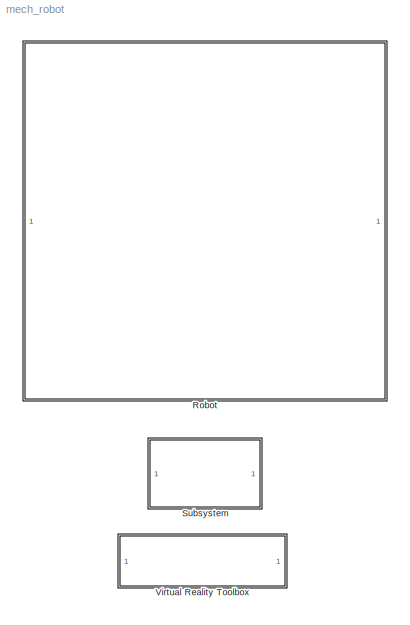
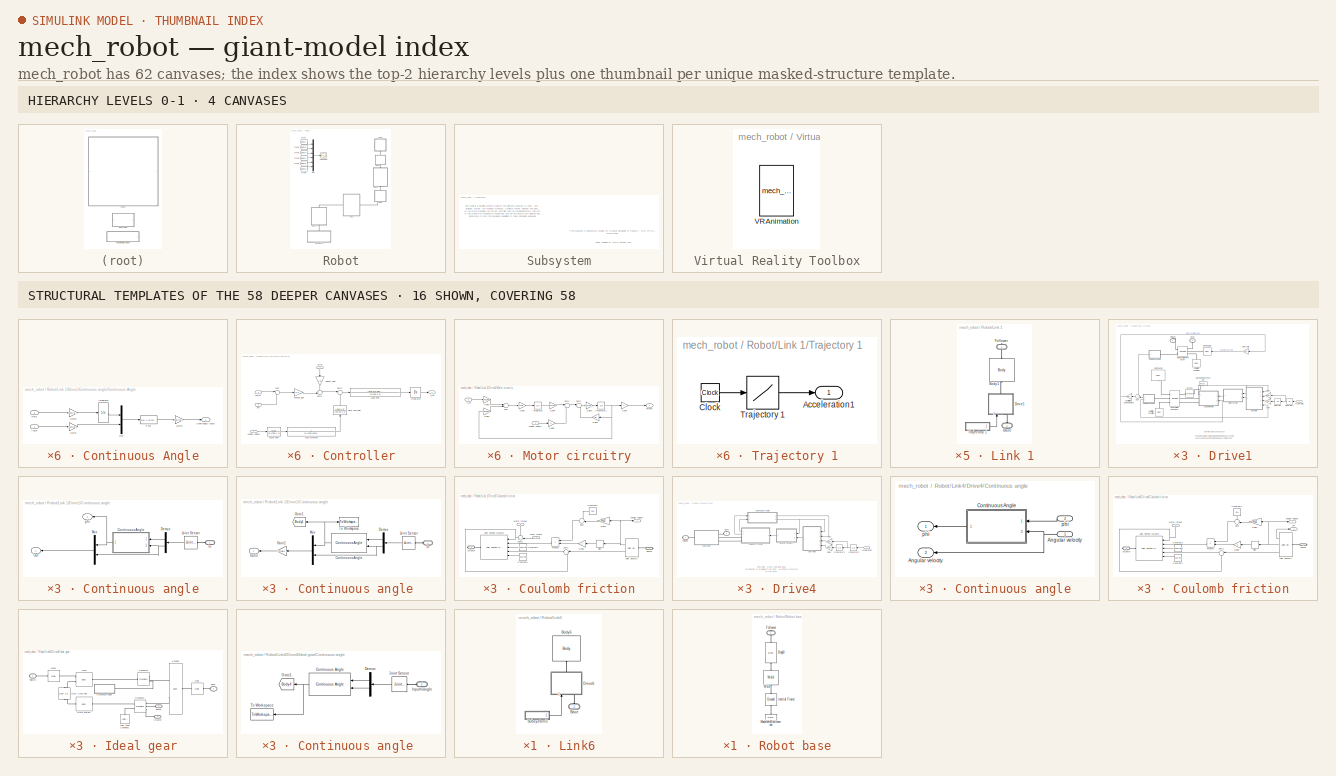
[diagram: thumbnail index - top-2 hierarchy levels (4 canvases) + 16 structural-template representatives of the remaining 58 canvases]
MODEL mech_robot
KIND model
CONFIG PreLoadFcn = load mech_robot_images;mech_robot_data;
BLOCK [SubSystem] Robot
  MaskDisplay = image(robot);\n\n
  MaskIconFrame = on
  MaskIconOpaque = on
  MaskIconRotate = none
  MaskIconUnits = autoscale
  MinAlgLoopOccurrences = off
  Ports = []
  RTWSystemCode = Auto
  TreatAsAtomicUnit = off
BLOCK [From] Robot/From
  CloseFcn = tagdialog Close
  DialogController = Simulink.DDGSource
  GotoTag = Body1
BLOCK [From] Robot/From1
  CloseFcn = tagdialog Close
  DialogController = Simulink.DDGSource
  GotoTag = Body2
BLOCK [From] Robot/From2
  CloseFcn = tagdialog Close
  DialogController = Simulink.DDGSource
  GotoTag = Body3
BLOCK [From] Robot/From3
  CloseFcn = tagdialog Close
  DialogController = Simulink.DDGSource
  GotoTag = Body4
BLOCK [From] Robot/From4
  CloseFcn = tagdialog Close
  DialogController = Simulink.DDGSource
  GotoTag = Body5
BLOCK [From] Robot/From6
  CloseFcn = tagdialog Close
  DialogController = Simulink.DDGSource
  GotoTag = Body6
BLOCK [Scope] Robot/Joint Angles
  DataFormat = StructureWithTime
  NumInputPorts = 1
  Ports = [1]
BLOCK [SubSystem] Robot/Link 1
  MaskDisplay = image(rbody1)
  MaskIconFrame = on
  MaskIconOpaque = on
  MaskIconRotate = none
  MaskIconUnits = autoscale
  MinAlgLoopOccurrences = off
  Ports = [0, 0, 0, 0, 0, 1, 1]
  RTWSystemCode = Auto
  TreatAsAtomicUnit = off
BLOCK [PMIOPort] Robot/Link 1/Base
  Port = 2
  Side = Left
BLOCK [Reference] Robot/Link 1/Body1  REF=mblibv1/Bodies/Body
  CG = Left$CG$[0 -0.1750+0.25/2 0]$WORLD$WORLD$m$[0 0 0]$Euler X-Y-Z$deg$WORLD$false
  ClassName = Body
  Density = 1
  DensityUnits = kg/m^3
  DensityUse = false
  Description = Mechanical Blockset
  DialogClass = MechanicalBodyBlock
  Inertia = diag([0 1.16 0])
  InertiaUnits = kg*m^2
  LConnTagsString = CS1
  LeftPortType = workingframe
  Mass = 0
  MassUnits = kg
  PhysicalDomain = mechanical
  Ports = [0, 0, 0, 0, 0, 1, 1]
  RConnTagsString = CS2
  RightPortType = workingframe
  Shape = Cylinder
  ShapeDims = [1 1]
  ShapeUnits = m
  ShapeUse = false
  SourceBlock = mblibv1/Bodies/Body
  SourceType = msb
  SubClassName = Unknown
  Tag = Factory generic
  WorkingFrames = Left$CS1$[0 -0.1750 0]$WORLD$WORLD$m$[0 0 0]$Euler X-Y-Z$deg$WORLD$true#Right$CS2$[0.075 0 0]$WORLD$WORLD$m$[0 0 0]$Euler X-Y-Z$deg$WORLD$true#Right$CS3$[-0.075 -0.1750 0.1]$CG$CG$m$[0 0 0]$Euler X-Y-Z$deg$WORLD$false#Right$CS4$[0.075 -0.1750 0.1]$CG$CG$m$[0 0 0]$Euler X-Y-Z$deg$WORLD$false#Right$CS5$[0.075 -0.1750 -0.1]$CG$CG$m$[0 0 0]$Euler X-Y-Z$deg$WORLD$false#Right$CS6$[-0.075 -0.1750 -0.1]$C...<+335ch>
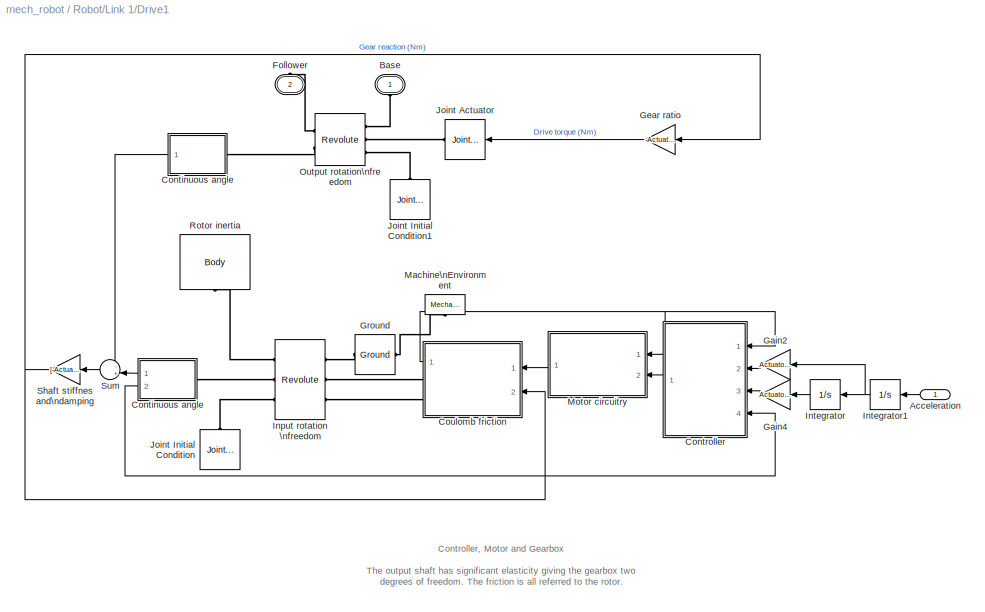
BLOCK [SubSystem] Robot/Link 1/Drive1
  AttributesFormatString = \\n
  MaskCallbackString = |
  MaskDisplay = plot(-80,-80,80,80,[0,9,18,24,29,30,29,24,18,9,0,-9,-18,-24,-29,-30,-29,-24,-18,-9,0],[30,29,24,18,9,0,-9,-18,-24,-29,-30,-29,-24,-18,-9,0,9,18,24,29,30],[-29,-35,-35,-29],[-8,-8,8,8],[29,35,35,29],[-8,-8,8,8],[-35,-55],[0,0],[35,55],[0,0],[-78,-50,-50,-49,-45,-39,-33,-26,-21,-18,-17,-19,-22,-22,-26,-27,-25,-22,-16,-9,-3,2,6,6,4,1,1,-3,-4,-2,2,7,14,20,26,29,30,28,24,24,21,20,21,25,31,37,44,49,50,5...<+266ch>  <repeated x6 — deduplicated; at blocks: Drive1, Drive2, Drive3, Drive4, Drive5, Drive6>
  MaskEnableString = on,on
  MaskIconFrame = on
  MaskIconOpaque = on
  MaskIconRotate = none
  MaskIconUnits = autoscale
  MaskPromptString = Initial angle (rad)|Actuator data structure
  MaskStyleString = edit,edit
  MaskTabNameString = ,
  MaskToolTipString = on,on
  MaskTunableValueString = on,on
  MaskValueString = -1|Actuator{1}
  MaskVarAliasString = ,
  MaskVariables = q0=@1;Actuator=@2;
  MaskVisibilityString = on,on
  MinAlgLoopOccurrences = off
  Ports = [1, 0, 0, 0, 0, 1, 1]
  RTWSystemCode = Auto
  TreatAsAtomicUnit = off
BLOCK [Inport] Robot/Link 1/Drive1/Acceleration
  IconDisplay = Port number
  LatchInput = off
  Port = 1
BLOCK [PMIOPort] Robot/Link 1/Drive1/Base
  Port = 1
  Side = Left
  Tag = PMCPort
BLOCK [SubSystem] Robot/Link 1/Drive1/Continuous angle
  MinAlgLoopOccurrences = off
  Ports = [0, 2, 0, 0, 0, 1]
  RTWSystemCode = Auto
  TreatAsAtomicUnit = off
BLOCK [SubSystem] Robot/Link 1/Drive1/Continuous angle 
  MinAlgLoopOccurrences = off
  Ports = [0, 1, 0, 0, 0, 1]
  RTWSystemCode = Auto
  TreatAsAtomicUnit = off
BLOCK [Reference] Robot/Link 1/Drive1/Continuous angle /Continuous Angle  REF=mblibv1/Utilities/Continuous Angle
  Ports = [2, 1]
  ShowPortLabels = on
  SourceBlock = mblibv1/Utilities/Continuous Angle
  SourceType = Unknown
  Tag = Factory continuousAngle
  rad = rad
  rads = rad/s
BLOCK [Demux] Robot/Link 1/Drive1/Continuous angle /Demux
  Outputs = 2
  Ports = [1, 2]
BLOCK [Gain] Robot/Link 1/Drive1/Continuous angle /Gain2
  Gain = Actuator.GearRatio
BLOCK [Goto] Robot/Link 1/Drive1/Continuous angle /Goto1
  DialogController = Simulink.DDGSource
  GotoTag = Body1
  TagVisibility = global
BLOCK [PMIOPort] Robot/Link 1/Drive1/Continuous angle /In
  Port = 1
  Side = Left
BLOCK [Reference] Robot/Link 1/Drive1/Continuous angle /Joint Sensor  REF=mblibv1/Sensors & \nActuators/Joint Sensor
  Acceleration = off
  AccelerationUnits = m/s^2
  ActiveIO = on
  Angle = on
  AngleUnits = rad
  ArcAcceleration = off
  ArcAccelerationUnits = deg/s^2
  ArcVelocity = on
  ArcVelocityUnits = rad/s
  ClassName = JointSensor
  CoordPosition = on
  CoordPositionUnits = m
  DialogClass = MechanicalSensorBlock
  Force = off
  ForceUnits = N
  Muxed = on
  Opaque = on
  OutputVector = [ 1 1 ]
  PhysicalDomain = Mechanical
  PortType = blob
  Ports = [0, 1, 0, 0, 0, 1]
  Pose = off
  Primitive = R1
  Quaternion = on
  QuaternionDDT = off
  QuaternionDT = off
  QuaternionUnits = off
  ReactionForce = off
  ReactionForceUnits = N
  ReactionMoment = off
  ReactionMomentUnits = N-m
  ReactionReferenceFrame = Absolute (World)
  ReactionSensedSide = Base
  ReferenceFrame = Absolute (INERTIAL)
  ShowPortLabels = on
  SourceBlock = mblibv1/Sensors & \nActuators/Joint Sensor
  SourceType = msb
  Torque = off
  TorqueUnits = N-m
  Velocity = off
  VelocityUnits = m/s
  Width = 2
BLOCK [Mux] Robot/Link 1/Drive1/Continuous angle /Mux
  DisplayOption = bar
  Inputs = 2
  Ports = [2, 1]
BLOCK [Outport] Robot/Link 1/Drive1/Continuous angle /Out\n
  BusOutputAsStruct = off
  IconDisplay = Port number
BLOCK [ToWorkspace] Robot/Link 1/Drive1/Continuous angle /To Workspace
  MaxDataPoints = inf
  SampleTime = -1
  SaveFormat = Structure With Time
  VariableName = Body1_D
BLOCK [SubSystem] Robot/Link 1/Drive1/Continuous angle/Continuous Angle
  AncestorBlock = mblibv1/Utilities/Continuous Angle
  MaskCallbackString = |
  MaskDescription = Outputs a continuous, unbounded angle given a discontinuous, bounded angle and the angular velocity. Choose units for the angle and the angular velocity (rate).
  MaskEnableString = on,on
  MaskHelp = web(mech_help('continuousangle'))
  MaskIconFrame = on
  MaskIconOpaque = on
  MaskIconRotate = none
  MaskIconUnits = autoscale
  MaskPromptString = Angle measured in:|Rate measured in:
  MaskStyleString = popup(rad|deg),popup(rad/s|deg/s)
  MaskTabNameString = ,
  MaskToolTipString = on,on
  MaskTunableValueString = on,on
  MaskValueString = rad|rad/s
  MaskVarAliasString = ,
  MaskVariables = rad=@1;rads=@2;
  MaskVisibilityString = on,on
  MinAlgLoopOccurrences = off
  Ports = [2, 1]
  RTWSystemCode = Auto
  Tag = Factory continuousAngle
  TreatAsAtomicUnit = off
BLOCK [Inport] Robot/Link 1/Drive1/Continuous angle/Continuous Angle/Angle
  IconDisplay = Port number
  LatchInput = off
  Port = 1
BLOCK [Outport] Robot/Link 1/Drive1/Continuous angle/Continuous Angle/Continuous Angle
  BusOutputAsStruct = off
  IconDisplay = Port number
BLOCK [Fcn] Robot/Link 1/Drive1/Continuous angle/Continuous Angle/Fcn1
  Expr = u(2) + (2*(u(1) > u(2)) - 1)*2*pi*floor(abs(u(1)-u(2))/(2*pi) + 0.5)
BLOCK [Gain] Robot/Link 1/Drive1/Continuous angle/Continuous Angle/Gain1
  Gain = rad+(pi/180-2)*(rad-1)
BLOCK [Gain] Robot/Link 1/Drive1/Continuous angle/Continuous Angle/Gain3
  Gain = rads+(pi/180-2)*(rads-1)
BLOCK [Gain] Robot/Link 1/Drive1/Continuous angle/Continuous Angle/Gain4
  Gain = rad+(180/pi-2)*(rad-1)
BLOCK [Integrator] Robot/Link 1/Drive1/Continuous angle/Continuous Angle/Integrator
  AbsoluteTolerance = 1e-3
  InitialCondition = q0*Actuator.GearRatio
  Ports = [1, 1]
  ZeroCross = off
BLOCK [Mux] Robot/Link 1/Drive1/Continuous angle/Continuous Angle/Mux
  DisplayOption = bar
  Inputs = 2
  Ports = [2, 1]
BLOCK [Inport] Robot/Link 1/Drive1/Continuous angle/Continuous Angle/Rate
  IconDisplay = Port number
  LatchInput = off
  Port = 2
BLOCK [Demux] Robot/Link 1/Drive1/Continuous angle/Demux
  Outputs = 2
  Ports = [1, 2]
BLOCK [PMIOPort] Robot/Link 1/Drive1/Continuous angle/In
  Port = 1
  Side = Left
BLOCK [Reference] Robot/Link 1/Drive1/Continuous angle/Joint Sensor  REF=mblibv1/Sensors & \nActuators/Joint Sensor
  Acceleration = off
  AccelerationUnits = m/s^2
  ActiveIO = on
  Angle = on
  AngleUnits = rad
  ArcAcceleration = off
  ArcAccelerationUnits = deg/s^2
  ArcVelocity = on
  ArcVelocityUnits = rad/s
  ClassName = JointSensor
  CoordPosition = on
  CoordPositionUnits = m
  DialogClass = MechanicalSensorBlock
  Force = off
  ForceUnits = N
  Muxed = on
  Opaque = on
  OutputVector = [ 1 1 ]
  PhysicalDomain = Mechanical
  PortType = blob
  Ports = [0, 1, 0, 0, 0, 1]
  Pose = off
  Primitive = R1
  Quaternion = on
  QuaternionDDT = off
  QuaternionDT = off
  QuaternionUnits = off
  ReactionForce = off
  ReactionForceUnits = N
  ReactionMoment = off
  ReactionMomentUnits = N-m
  ReactionReferenceFrame = Absolute (World)
  ReactionSensedSide = Base
  ReferenceFrame = Absolute (INERTIAL)
  ShowPortLabels = on
  SourceBlock = mblibv1/Sensors & \nActuators/Joint Sensor
  SourceType = msb
  Torque = off
  TorqueUnits = N-m
  Velocity = off
  VelocityUnits = m/s
  Width = 2
BLOCK [Mux] Robot/Link 1/Drive1/Continuous angle/Mux
  DisplayOption = bar
  Inputs = 2
  Ports = [2, 1]
BLOCK [Outport] Robot/Link 1/Drive1/Continuous angle/Out
  BusOutputAsStruct = off
  IconDisplay = Port number
BLOCK [Outport] Robot/Link 1/Drive1/Continuous angle/phi
  BusOutputAsStruct = off
  IconDisplay = Port number
  Port = 2
BLOCK [SubSystem] Robot/Link 1/Drive1/Controller
  MinAlgLoopOccurrences = off
  Ports = [4, 1]
  RTWSystemCode = Auto
  TreatAsAtomicUnit = off
BLOCK [Inport] Robot/Link 1/Drive1/Controller/Angular velocity
  IconDisplay = Port number
  LatchInput = off
  Port = 1
BLOCK [Integrator] Robot/Link 1/Drive1/Controller/Integrator
  Ports = [1, 1]
  ZeroCross = off
BLOCK [TransferFcn] Robot/Link 1/Drive1/Controller/Lead filter
  Denominator = [0.56e-3 1]
  Numerator = [340.8*9.95e-3 340.8]
BLOCK [Gain] Robot/Link 1/Drive1/Controller/Position gain
  Gain = 0.3
BLOCK [TransferFcn] Robot/Link 1/Drive1/Controller/Rate controller
  Denominator = [20.2e-3 1]
  Numerator = [40e-3 1]
BLOCK [Sum] Robot/Link 1/Drive1/Controller/Sum
  IconShape = round
  InputSameDT = off
  Inputs = |+-
  OutDataTypeMode = Inherit via internal rule
  Ports = [2, 1]
BLOCK [Sum] Robot/Link 1/Drive1/Controller/Sum1
  IconShape = round
  InputSameDT = off
  Inputs = ++|
  OutDataTypeMode = Inherit via internal rule
  Ports = [2, 1]
BLOCK [Sum] Robot/Link 1/Drive1/Controller/Sum2
  IconShape = round
  InputSameDT = off
  Inputs = |+-
  OutDataTypeMode = Inherit via internal rule
  Ports = [2, 1]
BLOCK [TransferFcn] Robot/Link 1/Drive1/Controller/Tacho filter
  Denominator = [8.475e-4  1]
  Numerator = 0.03
BLOCK [TransferFcn] Robot/Link 1/Drive1/Controller/Taco dynamics
  Denominator = [1/(2014*2014)   2*0.294/2014  1]
  Numerator = 1
BLOCK [Gain] Robot/Link 1/Drive1/Controller/Velocity gain
  Gain = 0.03
BLOCK [Outport] Robot/Link 1/Drive1/Controller/i_ref
  BusOutputAsStruct = off
  IconDisplay = Port number
BLOCK [Inport] Robot/Link 1/Drive1/Controller/phi
  IconDisplay = Port number
  LatchInput = off
  Port = 4
BLOCK [Inport] Robot/Link 1/Drive1/Controller/phi_ref
  IconDisplay = Port number
  LatchInput = off
  Port = 3
BLOCK [Inport] Robot/Link 1/Drive1/Controller/w_ref
  IconDisplay = Port number
  LatchInput = off
  Port = 2
BLOCK [SubSystem] Robot/Link 1/Drive1/Coulomb friction
  MaskCallbackString = ||
  MaskDisplay = plot([-2 0 0 2],[-2 -1 1 2]);\nplot([-5 5],[0 0]);\nplot([0 0],[-5 5]);\nplot([-0.02 -0.02],[-3 3]);\nplot([-0.04 -0.04],[-3 3]);\nplot([-0.06 -0.06],[-3 3]);\nplot([-0.08 -0.08],[-3 3]);\nplot([-0.1 -0.1],[-3 3]);\nplot([0.02 0.02],[-3 3]);\nplot([0.04 0.04],[-3 3]);\nplot([0.06 0.06],[-3 3]);\nplot([0.08 0.08],[-3 3]);\nplot([0.1 0.1],[-3 3]);\nplot([-2 0],[-2.03 -1.03]);\nplot([-2 0],[-2.06 -1....<+389ch>  <repeated x6 — deduplicated; at blocks: Coulomb friction>
  MaskEnableString = on,on,on
  MaskIconFrame = on
  MaskIconOpaque = on
  MaskIconRotate = none
  MaskIconUnits = autoscale
  MaskPromptString = Peak ratio|Friction gain (Nm.s/rad)|Friction constant (Nm)
  MaskStyleString = edit,edit,edit
  MaskTabNameString = ,,
  MaskToolTipString = on,on,on
  MaskTunableValueString = on,on,on
  MaskValueString = Actuator.PeakRatio|Actuator.FrictionGain|Actuator.FrictionConstant
  MaskVarAliasString = ,,
  MaskVariables = peak=@1;Rv1=@2;Rv0=@3;
  MaskVisibilityString = on,on,on
  MinAlgLoopOccurrences = off
  Ports = [2, 1, 0, 0, 0, 0, 2]
  RTWSystemCode = Auto
  TreatAsAtomicUnit = off
BLOCK [PMIOPort] Robot/Link 1/Drive1/Coulomb friction/Actuator
  Port = 2
  Side = Right
BLOCK [Outport] Robot/Link 1/Drive1/Coulomb friction/Angular velocity
  BusOutputAsStruct = off
  IconDisplay = Port number
BLOCK [Constant] Robot/Link 1/Drive1/Coulomb friction/Constant2
  Value = Rv0
BLOCK [Constant] Robot/Link 1/Drive1/Coulomb friction/Constant3
  Value = -peak*Rv0
BLOCK [Constant] Robot/Link 1/Drive1/Coulomb friction/Constant4
  Value = peak*Rv0
BLOCK [Gain] Robot/Link 1/Drive1/Coulomb friction/Gain3
  Gain = -1
BLOCK [Gain] Robot/Link 1/Drive1/Coulomb friction/Gain4
  Gain = Rv1
BLOCK [Inport] Robot/Link 1/Drive1/Coulomb friction/Gear torque
  IconDisplay = Port number
  LatchInput = off
  Port = 2
BLOCK [Reference] Robot/Link 1/Drive1/Coulomb friction/Joint Sensor3  REF=mblibv1/Sensors & \nActuators/Joint Sensor
  Acceleration = off
  AccelerationUnits = m/s^2
  ActiveIO = on
  Angle = off
  AngleUnits = rad
  ArcAcceleration = off
  ArcAccelerationUnits = deg/s^2
  ArcVelocity = on
  ArcVelocityUnits = rad/s
  ClassName = JointSensor
  CoordPosition = off
  CoordPositionUnits = m
  Description = Mechanical Blockset
  DialogClass = MechanicalSensorBlock
  Force = off
  ForceUnits = N
  Muxed = off
  Opaque = on
  OutputVector = [ 1 1 ]
  PhysicalDomain = Mechanical
  PortType = blob
  Ports = [0, 2, 0, 0, 0, 1]
  Pose = off
  Primitive = R1
  Quaternion = off
  QuaternionDDT = off
  QuaternionDT = off
  QuaternionUnits = off
  ReactionForce = off
  ReactionForceUnits = N
  ReactionMoment = off
  ReactionMomentUnits = N-m
  ReactionReferenceFrame = Absolute (World)
  ReactionSensedSide = Base
  ReferenceFrame = Absolute (INERTIAL)
  ShowPortLabels = on
  SourceBlock = mblibv1/Sensors & \nActuators/Joint Sensor
  SourceType = msb
  Torque = on
  TorqueUnits = N-m
  Velocity = off
  VelocityUnits = m/s
  Width = 2
BLOCK [Reference] Robot/Link 1/Drive1/Coulomb friction/Joint Stiction Actuator  REF=mblibv1/Sensors & \nActuators/Joint Stiction Actuator
  AccelerationUnits = m/s^2
  ActiveIO = on
  ActuationStyle = Force
  AngleUnits = deg
  ArcAccelerationUnits = deg/s^2
  ArcVelocityUnits = deg/s
  ClassName = JointStictionActuator
  CoordPositionUnits = m
  Description = Mechanical Blockset
  DialogClass = EventActuatorBlock
  ExternalForceUnits = N
  ExternalTorqueUnits = N-m
  ForceUnits = N
  FrictionalForceUnits = N
  FrictionalTorqueUnits = N-m
  LockingTolerance = 1e-3
  Opaque = on
  PhysicalDomain = Mechanical
  PortType = blob
  Ports = [5, 0, 0, 0, 0, 0, 1]
  Primitive = R1
  ShowPortLabels = on
  SourceBlock = mblibv1/Sensors & \nActuators/Joint Stiction Actuator
  SourceType = msb
  TorqueUnits = N-m
  VelocityUnits = m/s
  Width = 5
BLOCK [Inport] Robot/Link 1/Drive1/Coulomb friction/Motor torque
  IconDisplay = Port number
  LatchInput = off
  Port = 1
BLOCK [Product] Robot/Link 1/Drive1/Coulomb friction/Product
  Ports = [2, 1]
  RndMeth = Floor
BLOCK [PMIOPort] Robot/Link 1/Drive1/Coulomb friction/Sensor
  Port = 1
  Side = Right
BLOCK [Signum] Robot/Link 1/Drive1/Coulomb friction/Sign
BLOCK [Sum] Robot/Link 1/Drive1/Coulomb friction/Sum
  IconShape = round
  Inputs = ++|
  Ports = [2, 1]
BLOCK [Sum] Robot/Link 1/Drive1/Coulomb friction/Sum1
  IconShape = round
  Inputs = |+-
  Ports = [2, 1]
BLOCK [Sum] Robot/Link 1/Drive1/Coulomb friction/Sum2
  IconShape = round
  InputSameDT = off
  Inputs = ++|
  OutDataTypeMode = Inherit via internal rule
  Ports = [2, 1]
BLOCK [PMIOPort] Robot/Link 1/Drive1/Follower
  Port = 2
  Side = Right
  Tag = PMCPort
BLOCK [Gain] Robot/Link 1/Drive1/Gain2
  Gain = Actuator.GearRatio
BLOCK [Gain] Robot/Link 1/Drive1/Gain4
  Gain = Actuator.GearRatio
BLOCK [Gain] Robot/Link 1/Drive1/Gear ratio
  Gain = -Actuator.GearRatio
BLOCK [Reference] Robot/Link 1/Drive1/Ground  REF=mblibv1/Bodies/Ground
  ClassName = Ground
  CoordPosition = [0 0 0]
  CoordPositionUnits = m
  DialogClass = GroundBlock
  LeftPortType = env
  MachineId = [7 0]
  Opaque = on
  PhysicalDomain = Mechanical
  Ports = [0, 0, 0, 0, 0, 1, 1]
  RightPortType = workingframe
  ShowEnvPort = on
  ShowPortLabels = on
  SourceBlock = mblibv1/Bodies/Ground
  SourceType = msb
  StateVectorMgrId = -1
  UserData = DataTag0
  UserDataPersistent = on
BLOCK [Reference] Robot/Link 1/Drive1/Input rotation \nfreedom  REF=mblibv1/Joints/Revolute
  ClassName = Joint
  CutJoint = off
  Description = Mechanical Blockset
  DialogClass = JointBlock
  LConnTagsString = __newl0|SA1|SA2
  LeftPortType = blob
  MarkAsCut = off
  NumSAPorts = 4
  PhysicalDomain = mechanical
  Ports = [0, 0, 0, 0, 0, 3, 3]
  PrimitiveProps = R1$WORLD$Actuator.Axis$revolute
  Primitives = revolute
  RConnTagsString = __newr0|SA1|SA2
  RightPortType = blob
  SourceBlock = mblibv1/Joints/Revolute
  SourceType = msb
  SubClassName = Unknown
  Tag = Factory generic
BLOCK [Integrator] Robot/Link 1/Drive1/Integrator
  InitialCondition = q0
  Ports = [1, 1]
  ZeroCross = off
BLOCK [Integrator] Robot/Link 1/Drive1/Integrator1
  Ports = [1, 1]
  ZeroCross = off
BLOCK [Reference] Robot/Link 1/Drive1/Joint Actuator  REF=mblibv1/Sensors & \nActuators/Joint Actuator
  AccelerationUnits = m/s^2
  ActiveIO = on
  ActuationStyle = Force
  AngleUnits = deg
  ArcAccelerationUnits = deg/s^2
  ArcVelocityUnits = deg/s
  ClassName = JointActuator
  CoordPositionUnits = m
  DialogClass = MechanicalActuatorBlock
  ForceUnits = N
  Opaque = on
  PhysicalDomain = Mechanical
  PortType = blob
  Ports = [1, 0, 0, 0, 0, 0, 1]
  Primitive = R1
  ReferenceFrame = Absolute (INERTIAL)
  ShowPortLabels = on
  SourceBlock = mblibv1/Sensors & \nActuators/Joint Actuator
  SourceType = msb
  TorqueUnits = N-m
  VelocityUnits = m/s
  Width = 1
BLOCK [Reference] Robot/Link 1/Drive1/Joint Initial Condition  REF=mblibv1/Sensors & \nActuators/Joint Initial Condition
  AngleUnits = rad
  ArcVelocityUnits = deg/s
  ClassName = InitialCondition
  CoordPosition = q0*Actuator.GearRatio
  CoordPositionUnits = m
  DialogClass = InitialConditionBlock
  InitialConditions = P1$false$0$m$rad$0$m/s$rad/s#P2$false$0$m$rad$0$m/s$rad/s#P3$false$0$m$rad$0$m/s$rad/s#R1$true$q0*Actuator.GearRatio$m$rad$0.0$m/s$deg/s#R2$false$0$m$rad$0$m/s$rad/s#R3$false$0$m$rad$0$m/s$rad/s#S$false$0$m$rad$0$m/s$rad/s  <repeated x3 — deduplicated; at blocks: Joint Initial Condition>
  Opaque = on
  PhysicalDomain = Mechanical
  Ports = [0, 0, 0, 0, 0, 0, 1]
  Primitive = R1
  ShowPortLabels = on
  SourceBlock = mblibv1/Sensors & \nActuators/Joint Initial Condition
  SourceType = msb
  Velocity = 0.0
  VelocityUnits = m/s
BLOCK [Reference] Robot/Link 1/Drive1/Joint Initial Condition1  REF=mblibv1/Sensors & \nActuators/Joint Initial Condition
  AngleUnits = rad
  ArcVelocityUnits = deg/s
  ClassName = InitialCondition
  CoordPosition = q0
  CoordPositionUnits = m
  DialogClass = InitialConditionBlock
  InitialConditions = P1$false$0$m$rad$0$m/s$rad/s#P2$false$0$m$rad$0$m/s$rad/s#P3$false$0$m$rad$0$m/s$rad/s#R1$true$q0$m$rad$0.0$m/s$deg/s#R2$false$0$m$rad$0$m/s$rad/s#R3$false$0$m$rad$0$m/s$rad/s#S$false$0$m$rad$0$m/s$rad/s  <repeated x3 — deduplicated; at blocks: Joint Initial Condition1>
  Opaque = on
  PhysicalDomain = Mechanical
  Ports = [0, 0, 0, 0, 0, 0, 1]
  Primitive = R1
  ShowPortLabels = on
  SourceBlock = mblibv1/Sensors & \nActuators/Joint Initial Condition
  SourceType = msb
  Velocity = 0.0
  VelocityUnits = m/s
BLOCK [Reference] Robot/Link 1/Drive1/Machine\nEnvironment  REF=mblibv1/Bodies/Mechanical\nEnvironment
  AnalysisType = Forward dynamics
  AngularAssemblyTolerance = 1e-3
  AngularAssemblyToleranceUnits = rad
  ClassName = Environment
  ConstraintAbsTolerance = 1e-4
  ConstraintRelTolerance = 1e-4
  ConstraintSolverType = Stabilizing
  DialogController = MECH.DialogSource
  DialogTemplateClass = MECH.MachineEnvironment
  Dimensionality = 3D Only
  Gravity = [0 -9.81 0]
  GravityAsSignal = off
  GravityUnits = m/s^2
  LinearAssemblyTolerance = 1e-3
  LinearAssemblyToleranceUnits = m
  Opaque = on
  PerturbationSize = 1e-5
  PhysicalDomain = Mechanical
  PortType = env
  Ports = [0, 0, 0, 0, 0, 0, 1]
  ShowPortLabels = on
  SourceBlock = mblibv1/Bodies/Mechanical\nEnvironment
  SourceType = Mechanical
  StatePerturbationType = Fixed
  SyncWhenCopied = off
  Tag = Factory ground
  UseRobustSingularityHandling = off
  VisualizeMachine = on
BLOCK [SubSystem] Robot/Link 1/Drive1/Motor circuitry
  MaskCallbackString = ||||||||||
  MaskDisplay = plot(-140,-140,140,140,2*[-30,-30,0,-30,-30,-55]+25,(2*[20,0,20,41,20,20]+8),[0,0]+25,(2*[0,40]+8),2*[37.5,0]+25,(2*[20,20]+8),2*[10,10,0]+25,(1*[-15,6,20]+12),1*[-65,-65,-20,-20,40,40,85,85,85,40,40,-20,-20],1*[48,-20,-20,-10,-10,-20,-20,48,-20,-20,-30,-30,-20])  <repeated x6 — deduplicated; at blocks: Motor circuitry>
  MaskEnableString = on,on,on,on,on,on,on,on,on,on,on
  MaskIconFrame = on
  MaskIconOpaque = on
  MaskIconRotate = none
  MaskIconUnits = autoscale
  MaskPromptString = Ri (Ohms)|Ra (Ohms)|Rd1 (Ohms)|Rd2 (Ohms)|Rd3 (Ohms)|Rd4 (Ohms)|Rp1 (Ohms)|Rp2 (Ohms)|Motor gain (Nm/A)|Motor damping|Motor time constant
  MaskStyleString = edit,edit,edit,edit,edit,edit,edit,edit,edit,edit,edit
  MaskTabNameString = ,,,,,,,,,,
  MaskToolTipString = on,on,on,on,on,on,on,on,on,on,on
  MaskTunableValueString = on,on,on,on,on,on,on,on,on,on,on
  MaskValueString = 10|250|100|100|100|100|200|50|Actuator.MotorGain|Actuator.MotorDamping|Actuator.MotorConstant
  MaskVarAliasString = ,,,,,,,,,,
  MaskVariables = Ri=@1;Ra=@2;Rd1=@3;Rd2=@4;Rd3=@5;Rd4=@6;Rp1=@7;Rp2=@8;k=@9;d=@10;w=@11;
  MaskVisibilityString = on,on,on,on,on,on,on,on,on,on,on
  MinAlgLoopOccurrences = off
  Ports = [2, 1]
  RTWSystemCode = Auto
  TreatAsAtomicUnit = off
BLOCK [Inport] Robot/Link 1/Drive1/Motor circuitry/Angular velocity
  IconDisplay = Port number
  LatchInput = off
  Port = 1
BLOCK [Gain] Robot/Link 1/Drive1/Motor circuitry/Gain1
  Gain = -Rd1/Rd2
BLOCK [Gain] Robot/Link 1/Drive1/Motor circuitry/Gain2
  Gain = (Rd4/Rd2)*((Rd1+Rd2)/(Rd3+Rd4))
BLOCK [Gain] Robot/Link 1/Drive1/Motor circuitry/Gain3
  Gain = -1/(Ri*0.004*d/w)
BLOCK [Gain] Robot/Link 1/Drive1/Motor circuitry/Gain4
  Gain = (Rp2+Rp1)/Rp2
BLOCK [Gain] Robot/Link 1/Drive1/Motor circuitry/Gain5
  Gain = Ra
BLOCK [Gain] Robot/Link 1/Drive1/Motor circuitry/Gain6
  Gain = 2*d*w/250
BLOCK [Gain] Robot/Link 1/Drive1/Motor circuitry/Gain7
  Gain = k
BLOCK [Gain] Robot/Link 1/Drive1/Motor circuitry/Gain8
  Gain = k
BLOCK [Integrator] Robot/Link 1/Drive1/Motor circuitry/Integrator
  Ports = [1, 1]
  ZeroCross = off
BLOCK [Integrator] Robot/Link 1/Drive1/Motor circuitry/Integrator1
  Ports = [1, 1]
  ZeroCross = off
BLOCK [Sum] Robot/Link 1/Drive1/Motor circuitry/Sum
  IconShape = round
  Ports = [2, 1]
BLOCK [Sum] Robot/Link 1/Drive1/Motor circuitry/Sum1
  IconShape = round
  Inputs = |+-
  Ports = [2, 1]
BLOCK [Sum] Robot/Link 1/Drive1/Motor circuitry/Sum2
  IconShape = round
  Inputs = |+-
  Ports = [2, 1]
BLOCK [Outport] Robot/Link 1/Drive1/Motor circuitry/Torque
  BusOutputAsStruct = off
  IconDisplay = Port number
BLOCK [Inport] Robot/Link 1/Drive1/Motor circuitry/i_ref
  IconDisplay = Port number
  LatchInput = off
  Port = 2
BLOCK [Reference] Robot/Link 1/Drive1/Output rotation\nfreedom  REF=mblibv1/Joints/Revolute
  ClassName = Joint
  CutJoint = off
  Description = Mechanical Blockset
  DialogClass = JointBlock
  LConnTagsString = __newl0|SA1|SA2
  LeftPortType = blob
  MarkAsCut = off
  NumSAPorts = 3
  PhysicalDomain = mechanical
  Ports = [0, 0, 0, 0, 0, 3, 2]
  PrimitiveProps = R1$WORLD$Actuator.Axis$revolute
  Primitives = revolute
  RConnTagsString = __newr0|SA1
  RightPortType = blob
  SourceBlock = mblibv1/Joints/Revolute
  SourceType = msb
  SubClassName = Unknown
  Tag = Factory generic
BLOCK [Reference] Robot/Link 1/Drive1/Rotor inertia  REF=mblibv1/Bodies/Body
  CG = Left$CG$[0 0 0]$CS1$CS1$m$[0 0 0]$Euler X-Y-Z$deg$WORLD$false
  ClassName = Body
  Density = 1
  DensityUnits = kg/m^3
  DensityUse = false
  Description = Mechanical Blockset
  DialogClass = MechanicalBodyBlock
  Inertia = Actuator.MotorInertia*eye(3)
  InertiaUnits = kg*m^2
  LConnTagsString = CS1
  LeftPortType = workingframe
  Mass = 0
  MassUnits = kg
  PhysicalDomain = mechanical
  Ports = [0, 0, 0, 0, 0, 1]
  RightPortType = workingframe
  Shape = Cylinder
  ShapeDims = [1 1]
  ShapeUnits = m
  ShapeUse = false
  SourceBlock = mblibv1/Bodies/Body
  SourceType = msb
  SubClassName = Unknown
  Tag = Factory generic
  WorkingFrames = Left$CS1$[0 0 0]$ADJOINING$ADJOINING$m$[0 0 0]$Euler X-Y-Z$deg$WORLD$true
BLOCK [Gain] Robot/Link 1/Drive1/Shaft stiffnes and\ndamping
  Gain = [-Actuator.ShaftStiffness -Actuator.ShaftDamping]
  Multiplication = Matrix(K*u)
BLOCK [Sum] Robot/Link 1/Drive1/Sum
  IconShape = round
  Inputs = -+|
  Ports = [2, 1]
BLOCK [PMIOPort] Robot/Link 1/Follower
  Port = 1
  Side = Right
BLOCK [SubSystem] Robot/Link 1/Trajectory 1
  MinAlgLoopOccurrences = off
  Ports = [0, 1]
  RTWSystemCode = Auto
  TreatAsAtomicUnit = off
BLOCK [Outport] Robot/Link 1/Trajectory 1/Acceleration1
  BusOutputAsStruct = off
  IconDisplay = Port number
BLOCK [Clock] Robot/Link 1/Trajectory 1/Clock
  Decimation = 10
BLOCK [Lookup] Robot/Link 1/Trajectory 1/Trajectory 1
  DialogController = Simulink.DDGSource
  InputValues = [0    0.1000    0.1000    0.7400    0.7400    1.1200    1.1200    1.2000    1.2000    1.3000]
  OutputValues = [30.0000   30.0000         0         0  -13.9600  -13.9600   28.7500   28.7500         0         0]
BLOCK [SubSystem] Robot/Link 2
  MaskDisplay = image(rbody2);
  MaskIconFrame = on
  MaskIconOpaque = on
  MaskIconRotate = port
  MaskIconUnits = autoscale
  MinAlgLoopOccurrences = off
  Ports = [0, 0, 0, 0, 0, 1, 1]
  RTWSystemCode = Auto
  TreatAsAtomicUnit = off
BLOCK [PMIOPort] Robot/Link 2/Base
  Port = 2
  Side = Left
BLOCK [Reference] Robot/Link 2/Body2  REF=mblibv1/Bodies/Body
  CG = Left$CG$[0.172 0.205 0]$WORLD$WORLD$m$[0 0 0]$Euler X-Y-Z$deg$WORLD$false
  ClassName = Body
  Density = 1
  DensityUnits = kg/m^3
  DensityUse = false
  Description = Mechanical Blockset
  DialogClass = MechanicalBodyBlock
  Inertia = [2.58 -0.46 0;-0.46 0.64 0;0 0 2.73]
  InertiaUnits = kg*m^2
  LConnTagsString = CS1
  LeftPortType = workingframe
  Mass = 56.5
  MassUnits = kg
  PhysicalDomain = mechanical
  Ports = [0, 0, 0, 0, 0, 1, 1]
  RConnTagsString = CS2
  RightPortType = workingframe
  Shape = Cylinder
  ShapeDims = [1 1]
  ShapeUnits = m
  ShapeUse = false
  SourceBlock = mblibv1/Bodies/Body
  SourceType = msb
  SubClassName = Unknown
  Tag = Factory generic
  WorkingFrames = Left$CS1$[0.075 0 0]$WORLD$WORLD$m$[0 0 0]$Euler X-Y-Z$deg$WORLD$true#Right$CS2$[0.075 0.5 0]$WORLD$WORLD$m$[0 0 0]$Euler X-Y-Z$deg$WORLD$true#Right$CS3$[0.075 -0.1 0.1]$WORLD$WORLD$m$[0 0 0]$Euler X-Y-Z$deg$WORLD$false#Right$CS4$[0.075 0.6 0.1]$WORLD$WORLD$m$[0 0 0]$Euler X-Y-Z$deg$WORLD$false#Right$CS5$[0.075 0.6 -0.1]$WORLD$WORLD$m$[0 0 0]$Euler X-Y-Z$deg$WORLD$false#Right$CS6$[0.075 -0.1 -0.1]...<+359ch>
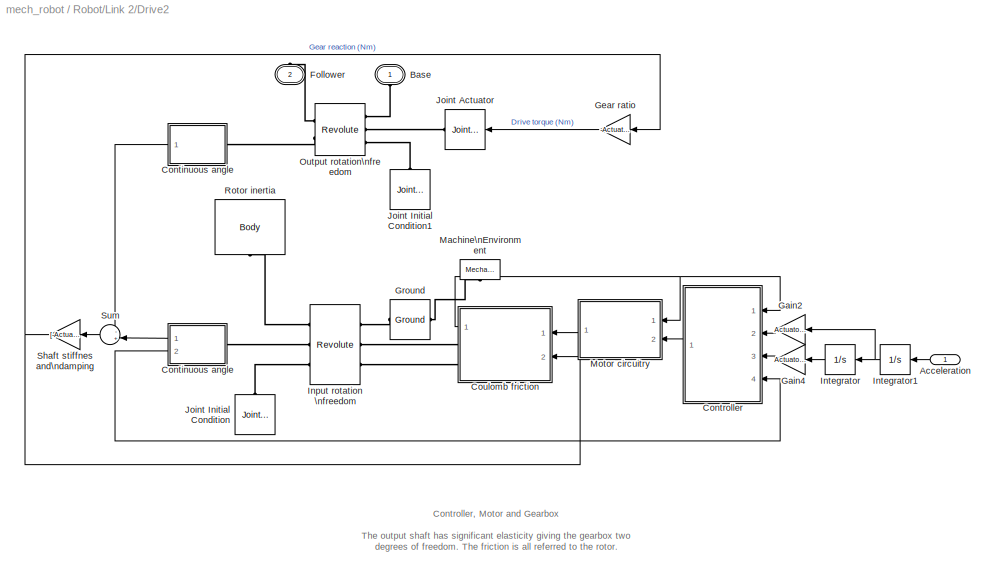
BLOCK [SubSystem] Robot/Link 2/Drive2
  MaskCallbackString = |
  MaskEnableString = on,on
  MaskIconFrame = on
  MaskIconOpaque = on
  MaskIconRotate = none
  MaskIconUnits = autoscale
  MaskPromptString = Initial angle (rad)|Actuator data structure
  MaskStyleString = edit,edit
  MaskTabNameString = ,
  MaskToolTipString = on,on
  MaskTunableValueString = on,on
  MaskValueString = 0.43|Actuator{2}
  MaskVarAliasString = ,
  MaskVariables = q0=@1;Actuator=@2;
  MaskVisibilityString = on,on
  MinAlgLoopOccurrences = off
  Ports = [1, 0, 0, 0, 0, 1, 1]
  RTWSystemCode = Auto
  TreatAsAtomicUnit = off
BLOCK [Inport] Robot/Link 2/Drive2/Acceleration
  IconDisplay = Port number
  LatchInput = off
  Port = 1
BLOCK [PMIOPort] Robot/Link 2/Drive2/Base
  Port = 1
  Side = Left
  Tag = PMCPort
BLOCK [SubSystem] Robot/Link 2/Drive2/Continuous angle
  MinAlgLoopOccurrences = off
  Ports = [0, 2, 0, 0, 0, 1]
  RTWSystemCode = Auto
  TreatAsAtomicUnit = off
BLOCK [SubSystem] Robot/Link 2/Drive2/Continuous angle 
  MinAlgLoopOccurrences = off
  Ports = [0, 1, 0, 0, 0, 1]
  RTWSystemCode = Auto
  TreatAsAtomicUnit = off
BLOCK [Reference] Robot/Link 2/Drive2/Continuous angle /Continuous Angle  REF=mblibv1/Utilities/Continuous Angle
  Ports = [2, 1]
  ShowPortLabels = on
  SourceBlock = mblibv1/Utilities/Continuous Angle
  SourceType = Unknown
  Tag = Factory continuousAngle
  rad = rad
  rads = rad/s
BLOCK [Demux] Robot/Link 2/Drive2/Continuous angle /Demux
  Outputs = 2
  Ports = [1, 2]
BLOCK [Gain] Robot/Link 2/Drive2/Continuous angle /Gain2
  Gain = Actuator.GearRatio
BLOCK [Goto] Robot/Link 2/Drive2/Continuous angle /Goto1
  DialogController = Simulink.DDGSource
  GotoTag = Body2
  TagVisibility = global
BLOCK [PMIOPort] Robot/Link 2/Drive2/Continuous angle /In
  Port = 1
  Side = Left
BLOCK [Reference] Robot/Link 2/Drive2/Continuous angle /Joint Sensor  REF=mblibv1/Sensors & \nActuators/Joint Sensor
  Acceleration = off
  AccelerationUnits = m/s^2
  ActiveIO = on
  Angle = on
  AngleUnits = rad
  ArcAcceleration = off
  ArcAccelerationUnits = deg/s^2
  ArcVelocity = on
  ArcVelocityUnits = rad/s
  ClassName = JointSensor
  CoordPosition = on
  CoordPositionUnits = m
  DialogClass = MechanicalSensorBlock
  Force = off
  ForceUnits = N
  Muxed = on
  Opaque = on
  OutputVector = [ 1 1 ]
  PhysicalDomain = Mechanical
  PortType = blob
  Ports = [0, 1, 0, 0, 0, 1]
  Pose = off
  Primitive = R1
  Quaternion = on
  QuaternionDDT = off
  QuaternionDT = off
  QuaternionUnits = off
  ReactionForce = off
  ReactionForceUnits = N
  ReactionMoment = off
  ReactionMomentUnits = N-m
  ReactionReferenceFrame = Absolute (World)
  ReactionSensedSide = Base
  ReferenceFrame = Absolute (INERTIAL)
  ShowPortLabels = on
  SourceBlock = mblibv1/Sensors & \nActuators/Joint Sensor
  SourceType = msb
  Torque = off
  TorqueUnits = N-m
  Velocity = off
  VelocityUnits = m/s
  Width = 2
BLOCK [Mux] Robot/Link 2/Drive2/Continuous angle /Mux
  DisplayOption = bar
  Inputs = 2
  Ports = [2, 1]
BLOCK [Outport] Robot/Link 2/Drive2/Continuous angle /Out\n
  BusOutputAsStruct = off
  IconDisplay = Port number
BLOCK [ToWorkspace] Robot/Link 2/Drive2/Continuous angle /To Workspace
  MaxDataPoints = inf
  SampleTime = -1
  SaveFormat = Structure With Time
  VariableName = Body2_D
BLOCK [SubSystem] Robot/Link 2/Drive2/Continuous angle/Continuous Angle
  AncestorBlock = mblibv1/Utilities/Continuous Angle
  MaskCallbackString = |
  MaskDescription = Outputs a continuous, unbounded angle given a discontinuous, bounded angle and the angular velocity. Choose units for the angle and the angular velocity (rate).
  MaskEnableString = on,on
  MaskHelp = web(mech_help('continuousangle'))
  MaskIconFrame = on
  MaskIconOpaque = on
  MaskIconRotate = none
  MaskIconUnits = autoscale
  MaskPromptString = Angle measured in:|Rate measured in:
  MaskStyleString = popup(rad|deg),popup(rad/s|deg/s)
  MaskTabNameString = ,
  MaskToolTipString = on,on
  MaskTunableValueString = on,on
  MaskValueString = rad|rad/s
  MaskVarAliasString = ,
  MaskVariables = rad=@1;rads=@2;
  MaskVisibilityString = on,on
  MinAlgLoopOccurrences = off
  Ports = [2, 1]
  RTWSystemCode = Auto
  Tag = Factory continuousAngle
  TreatAsAtomicUnit = off
BLOCK [Inport] Robot/Link 2/Drive2/Continuous angle/Continuous Angle/Angle
  IconDisplay = Port number
  LatchInput = off
  Port = 1
BLOCK [Outport] Robot/Link 2/Drive2/Continuous angle/Continuous Angle/Continuous Angle
  BusOutputAsStruct = off
  IconDisplay = Port number
BLOCK [Fcn] Robot/Link 2/Drive2/Continuous angle/Continuous Angle/Fcn1
  Expr = u(2) + (2*(u(1) > u(2)) - 1)*2*pi*floor(abs(u(1)-u(2))/(2*pi) + 0.5)
BLOCK [Gain] Robot/Link 2/Drive2/Continuous angle/Continuous Angle/Gain1
  Gain = rad+(pi/180-2)*(rad-1)
BLOCK [Gain] Robot/Link 2/Drive2/Continuous angle/Continuous Angle/Gain3
  Gain = rads+(pi/180-2)*(rads-1)
BLOCK [Gain] Robot/Link 2/Drive2/Continuous angle/Continuous Angle/Gain4
  Gain = rad+(180/pi-2)*(rad-1)
BLOCK [Integrator] Robot/Link 2/Drive2/Continuous angle/Continuous Angle/Integrator
  AbsoluteTolerance = 1e-3
  InitialCondition = q0*Actuator.GearRatio
  Ports = [1, 1]
  ZeroCross = off
BLOCK [Mux] Robot/Link 2/Drive2/Continuous angle/Continuous Angle/Mux
  DisplayOption = bar
  Inputs = 2
  Ports = [2, 1]
BLOCK [Inport] Robot/Link 2/Drive2/Continuous angle/Continuous Angle/Rate
  IconDisplay = Port number
  LatchInput = off
  Port = 2
BLOCK [Demux] Robot/Link 2/Drive2/Continuous angle/Demux
  Outputs = 2
  Ports = [1, 2]
BLOCK [PMIOPort] Robot/Link 2/Drive2/Continuous angle/In
  Port = 1
  Side = Left
BLOCK [Reference] Robot/Link 2/Drive2/Continuous angle/Joint Sensor  REF=mblibv1/Sensors & \nActuators/Joint Sensor
  Acceleration = off
  AccelerationUnits = m/s^2
  ActiveIO = on
  Angle = on
  AngleUnits = rad
  ArcAcceleration = off
  ArcAccelerationUnits = deg/s^2
  ArcVelocity = on
  ArcVelocityUnits = rad/s
  ClassName = JointSensor
  CoordPosition = on
  CoordPositionUnits = m
  DialogClass = MechanicalSensorBlock
  Force = off
  ForceUnits = N
  Muxed = on
  Opaque = on
  OutputVector = [ 1 1 ]
  PhysicalDomain = Mechanical
  PortType = blob
  Ports = [0, 1, 0, 0, 0, 1]
  Pose = off
  Primitive = R1
  Quaternion = on
  QuaternionDDT = off
  QuaternionDT = off
  QuaternionUnits = off
  ReactionForce = off
  ReactionForceUnits = N
  ReactionMoment = off
  ReactionMomentUnits = N-m
  ReactionReferenceFrame = Absolute (World)
  ReactionSensedSide = Base
  ReferenceFrame = Absolute (INERTIAL)
  ShowPortLabels = on
  SourceBlock = mblibv1/Sensors & \nActuators/Joint Sensor
  SourceType = msb
  Torque = off
  TorqueUnits = N-m
  Velocity = off
  VelocityUnits = m/s
  Width = 2
BLOCK [Mux] Robot/Link 2/Drive2/Continuous angle/Mux
  DisplayOption = bar
  Inputs = 2
  Ports = [2, 1]
BLOCK [Outport] Robot/Link 2/Drive2/Continuous angle/Out
  BusOutputAsStruct = off
  IconDisplay = Port number
BLOCK [Outport] Robot/Link 2/Drive2/Continuous angle/phi
  BusOutputAsStruct = off
  IconDisplay = Port number
  Port = 2
BLOCK [SubSystem] Robot/Link 2/Drive2/Controller
  MinAlgLoopOccurrences = off
  Ports = [4, 1]
  RTWSystemCode = Auto
  TreatAsAtomicUnit = off
BLOCK [Inport] Robot/Link 2/Drive2/Controller/Angular velocity
  IconDisplay = Port number
  LatchInput = off
  Port = 1
BLOCK [Integrator] Robot/Link 2/Drive2/Controller/Integrator
  Ports = [1, 1]
  ZeroCross = off
BLOCK [TransferFcn] Robot/Link 2/Drive2/Controller/Lead filter
  Denominator = [0.56e-3 1]
  Numerator = [340.8*9.95e-3 340.8]
BLOCK [Gain] Robot/Link 2/Drive2/Controller/Position gain
  Gain = 0.3
BLOCK [TransferFcn] Robot/Link 2/Drive2/Controller/Rate controller
  Denominator = [20.2e-3 1]
  Numerator = [40e-3 1]
BLOCK [Sum] Robot/Link 2/Drive2/Controller/Sum
  IconShape = round
  InputSameDT = off
  Inputs = |+-
  OutDataTypeMode = Inherit via internal rule
  Ports = [2, 1]
BLOCK [Sum] Robot/Link 2/Drive2/Controller/Sum1
  IconShape = round
  InputSameDT = off
  Inputs = ++|
  OutDataTypeMode = Inherit via internal rule
  Ports = [2, 1]
BLOCK [Sum] Robot/Link 2/Drive2/Controller/Sum2
  IconShape = round
  InputSameDT = off
  Inputs = |+-
  OutDataTypeMode = Inherit via internal rule
  Ports = [2, 1]
BLOCK [TransferFcn] Robot/Link 2/Drive2/Controller/Tacho filter
  Denominator = [8.475e-4  1]
  Numerator = 0.03
BLOCK [TransferFcn] Robot/Link 2/Drive2/Controller/Taco dynamics
  Denominator = [1/(2014*2014)   2*0.294/2014  1]
  Numerator = 1
BLOCK [Gain] Robot/Link 2/Drive2/Controller/Velocity gain
  Gain = 0.03
BLOCK [Outport] Robot/Link 2/Drive2/Controller/i_ref
  BusOutputAsStruct = off
  IconDisplay = Port number
BLOCK [Inport] Robot/Link 2/Drive2/Controller/phi
  IconDisplay = Port number
  LatchInput = off
  Port = 4
BLOCK [Inport] Robot/Link 2/Drive2/Controller/phi_ref
  IconDisplay = Port number
  LatchInput = off
  Port = 3
BLOCK [Inport] Robot/Link 2/Drive2/Controller/w_ref
  IconDisplay = Port number
  LatchInput = off
  Port = 2
BLOCK [SubSystem] Robot/Link 2/Drive2/Coulomb friction
  MaskCallbackString = ||
  MaskEnableString = on,on,on
  MaskIconFrame = on
  MaskIconOpaque = on
  MaskIconRotate = none
  MaskIconUnits = autoscale
  MaskPromptString = Peak ratio|Friction gain (Nm.s/rad)|Friction constant (Nm)
  MaskStyleString = edit,edit,edit
  MaskTabNameString = ,,
  MaskToolTipString = on,on,on
  MaskTunableValueString = on,on,on
  MaskValueString = Actuator.PeakRatio|Actuator.FrictionGain|Actuator.FrictionConstant
  MaskVarAliasString = ,,
  MaskVariables = peak=@1;Rv1=@2;Rv0=@3;
  MaskVisibilityString = on,on,on
  MinAlgLoopOccurrences = off
  Ports = [2, 1, 0, 0, 0, 0, 2]
  RTWSystemCode = Auto
  TreatAsAtomicUnit = off
BLOCK [PMIOPort] Robot/Link 2/Drive2/Coulomb friction/Actuator
  Port = 2
  Side = Right
BLOCK [Outport] Robot/Link 2/Drive2/Coulomb friction/Angular velocity
  BusOutputAsStruct = off
  IconDisplay = Port number
BLOCK [Constant] Robot/Link 2/Drive2/Coulomb friction/Constant2
  Value = Rv0
BLOCK [Constant] Robot/Link 2/Drive2/Coulomb friction/Constant3
  Value = -peak*Rv0
BLOCK [Constant] Robot/Link 2/Drive2/Coulomb friction/Constant4
  Value = peak*Rv0
BLOCK [Gain] Robot/Link 2/Drive2/Coulomb friction/Gain3
  Gain = -1
BLOCK [Gain] Robot/Link 2/Drive2/Coulomb friction/Gain4
  Gain = Rv1
BLOCK [Inport] Robot/Link 2/Drive2/Coulomb friction/Gear torque
  IconDisplay = Port number
  LatchInput = off
  Port = 2
BLOCK [Reference] Robot/Link 2/Drive2/Coulomb friction/Joint Sensor3  REF=mblibv1/Sensors & \nActuators/Joint Sensor
  Acceleration = off
  AccelerationUnits = m/s^2
  ActiveIO = on
  Angle = off
  AngleUnits = rad
  ArcAcceleration = off
  ArcAccelerationUnits = deg/s^2
  ArcVelocity = on
  ArcVelocityUnits = rad/s
  ClassName = JointSensor
  CoordPosition = off
  CoordPositionUnits = m
  Description = Mechanical Blockset
  DialogClass = MechanicalSensorBlock
  Force = off
  ForceUnits = N
  Muxed = off
  Opaque = on
  OutputVector = [ 1 1 ]
  PhysicalDomain = Mechanical
  PortType = blob
  Ports = [0, 2, 0, 0, 0, 1]
  Pose = off
  Primitive = R1
  Quaternion = off
  QuaternionDDT = off
  QuaternionDT = off
  QuaternionUnits = off
  ReactionForce = off
  ReactionForceUnits = N
  ReactionMoment = off
  ReactionMomentUnits = N-m
  ReactionReferenceFrame = Absolute (World)
  ReactionSensedSide = Base
  ReferenceFrame = Absolute (INERTIAL)
  ShowPortLabels = on
  SourceBlock = mblibv1/Sensors & \nActuators/Joint Sensor
  SourceType = msb
  Torque = on
  TorqueUnits = N-m
  Velocity = off
  VelocityUnits = m/s
  Width = 2
BLOCK [Reference] Robot/Link 2/Drive2/Coulomb friction/Joint Stiction Actuator  REF=mblibv1/Sensors & \nActuators/Joint Stiction Actuator
  AccelerationUnits = m/s^2
  ActiveIO = on
  ActuationStyle = Force
  AngleUnits = deg
  ArcAccelerationUnits = deg/s^2
  ArcVelocityUnits = deg/s
  ClassName = JointStictionActuator
  CoordPositionUnits = m
  Description = Mechanical Blockset
  DialogClass = EventActuatorBlock
  ExternalForceUnits = N
  ExternalTorqueUnits = N-m
  ForceUnits = N
  FrictionalForceUnits = N
  FrictionalTorqueUnits = N-m
  LockingTolerance = 1e-3
  Opaque = on
  PhysicalDomain = Mechanical
  PortType = blob
  Ports = [5, 0, 0, 0, 0, 0, 1]
  Primitive = R1
  ShowPortLabels = on
  SourceBlock = mblibv1/Sensors & \nActuators/Joint Stiction Actuator
  SourceType = msb
  TorqueUnits = N-m
  VelocityUnits = m/s
  Width = 5
BLOCK [Inport] Robot/Link 2/Drive2/Coulomb friction/Motor torque
  IconDisplay = Port number
  LatchInput = off
  Port = 1
BLOCK [Product] Robot/Link 2/Drive2/Coulomb friction/Product
  Ports = [2, 1]
  RndMeth = Floor
BLOCK [PMIOPort] Robot/Link 2/Drive2/Coulomb friction/Sensor
  Port = 1
  Side = Right
BLOCK [Signum] Robot/Link 2/Drive2/Coulomb friction/Sign
BLOCK [Sum] Robot/Link 2/Drive2/Coulomb friction/Sum
  IconShape = round
  Inputs = ++|
  Ports = [2, 1]
BLOCK [Sum] Robot/Link 2/Drive2/Coulomb friction/Sum1
  IconShape = round
  Inputs = |+-
  Ports = [2, 1]
BLOCK [Sum] Robot/Link 2/Drive2/Coulomb friction/Sum2
  IconShape = round
  InputSameDT = off
  Inputs = ++|
  OutDataTypeMode = Inherit via internal rule
  Ports = [2, 1]
BLOCK [PMIOPort] Robot/Link 2/Drive2/Follower
  Port = 2
  Side = Right
  Tag = PMCPort
BLOCK [Gain] Robot/Link 2/Drive2/Gain2
  Gain = Actuator.GearRatio
BLOCK [Gain] Robot/Link 2/Drive2/Gain4
  Gain = Actuator.GearRatio
BLOCK [Gain] Robot/Link 2/Drive2/Gear ratio
  Gain = -Actuator.GearRatio
BLOCK [Reference] Robot/Link 2/Drive2/Ground  REF=mblibv1/Bodies/Ground
  ClassName = Ground
  CoordPosition = [0 0 0]
  CoordPositionUnits = m
  DialogClass = GroundBlock
  LeftPortType = env
  MachineId = [7 1]
  Opaque = on
  PhysicalDomain = Mechanical
  Ports = [0, 0, 0, 0, 0, 1, 1]
  RightPortType = workingframe
  ShowEnvPort = on
  ShowPortLabels = on
  SourceBlock = mblibv1/Bodies/Ground
  SourceType = msb
  StateVectorMgrId = -1
  UserData = DataTag1
  UserDataPersistent = on
BLOCK [Reference] Robot/Link 2/Drive2/Input rotation \nfreedom  REF=mblibv1/Joints/Revolute
  ClassName = Joint
  CutJoint = off
  Description = Mechanical Blockset
  DialogClass = JointBlock
  LConnTagsString = __newl0|SA1|SA2
  LeftPortType = blob
  MarkAsCut = off
  NumSAPorts = 4
  PhysicalDomain = mechanical
  Ports = [0, 0, 0, 0, 0, 3, 3]
  PrimitiveProps = R1$WORLD$Actuator.Axis$revolute
  Primitives = revolute
  RConnTagsString = __newr0|SA1|SA2
  RightPortType = blob
  SourceBlock = mblibv1/Joints/Revolute
  SourceType = msb
  SubClassName = Unknown
  Tag = Factory generic
BLOCK [Integrator] Robot/Link 2/Drive2/Integrator
  InitialCondition = q0
  Ports = [1, 1]
  ZeroCross = off
BLOCK [Integrator] Robot/Link 2/Drive2/Integrator1
  Ports = [1, 1]
  ZeroCross = off
BLOCK [Reference] Robot/Link 2/Drive2/Joint Actuator  REF=mblibv1/Sensors & \nActuators/Joint Actuator
  AccelerationUnits = m/s^2
  ActiveIO = on
  ActuationStyle = Force
  AngleUnits = deg
  ArcAccelerationUnits = deg/s^2
  ArcVelocityUnits = deg/s
  ClassName = JointActuator
  CoordPositionUnits = m
  DialogClass = MechanicalActuatorBlock
  ForceUnits = N
  Opaque = on
  PhysicalDomain = Mechanical
  PortType = blob
  Ports = [1, 0, 0, 0, 0, 0, 1]
  Primitive = R1
  ReferenceFrame = Absolute (INERTIAL)
  ShowPortLabels = on
  SourceBlock = mblibv1/Sensors & \nActuators/Joint Actuator
  SourceType = msb
  TorqueUnits = N-m
  VelocityUnits = m/s
  Width = 1
BLOCK [Reference] Robot/Link 2/Drive2/Joint Initial Condition  REF=mblibv1/Sensors & \nActuators/Joint Initial Condition
  AngleUnits = rad
  ArcVelocityUnits = deg/s
  ClassName = InitialCondition
  CoordPosition = q0*Actuator.GearRatio
  CoordPositionUnits = m
  DialogClass = InitialConditionBlock
  Opaque = on
  PhysicalDomain = Mechanical
  Ports = [0, 0, 0, 0, 0, 0, 1]
  Primitive = R1
  ShowPortLabels = on
  SourceBlock = mblibv1/Sensors & \nActuators/Joint Initial Condition
  SourceType = msb
  Velocity = 0.0
  VelocityUnits = m/s
BLOCK [Reference] Robot/Link 2/Drive2/Joint Initial Condition1  REF=mblibv1/Sensors & \nActuators/Joint Initial Condition
  AngleUnits = rad
  ArcVelocityUnits = deg/s
  ClassName = InitialCondition
  CoordPosition = q0
  CoordPositionUnits = m
  DialogClass = InitialConditionBlock
  Opaque = on
  PhysicalDomain = Mechanical
  Ports = [0, 0, 0, 0, 0, 0, 1]
  Primitive = R1
  ShowPortLabels = on
  SourceBlock = mblibv1/Sensors & \nActuators/Joint Initial Condition
  SourceType = msb
  Velocity = 0.0
  VelocityUnits = m/s
BLOCK [Reference] Robot/Link 2/Drive2/Machine\nEnvironment  REF=mblibv1/Bodies/Mechanical\nEnvironment
  AnalysisType = Forward dynamics
  AngularAssemblyTolerance = 1e-3
  AngularAssemblyToleranceUnits = rad
  ClassName = Environment
  ConstraintAbsTolerance = 1e-4
  ConstraintRelTolerance = 1e-4
  ConstraintSolverType = Stabilizing
  DialogController = MECH.DialogSource
  DialogTemplateClass = MECH.MachineEnvironment
  Dimensionality = 3D Only
  Gravity = [0 -9.81 0]
  GravityAsSignal = off
  GravityUnits = m/s^2
  LinearAssemblyTolerance = 1e-3
  LinearAssemblyToleranceUnits = m
  Opaque = on
  PerturbationSize = 1e-5
  PhysicalDomain = Mechanical
  PortType = env
  Ports = [0, 0, 0, 0, 0, 0, 1]
  ShowPortLabels = on
  SourceBlock = mblibv1/Bodies/Mechanical\nEnvironment
  SourceType = Mechanical
  StatePerturbationType = Fixed
  SyncWhenCopied = off
  Tag = Factory ground
  UseRobustSingularityHandling = off
  VisualizeMachine = on
BLOCK [SubSystem] Robot/Link 2/Drive2/Motor circuitry
  MaskCallbackString = ||||||||||
  MaskEnableString = on,on,on,on,on,on,on,on,on,on,on
  MaskIconFrame = on
  MaskIconOpaque = on
  MaskIconRotate = none
  MaskIconUnits = autoscale
  MaskPromptString = Ri (Ohms)|Ra (Ohms)|Rd1 (Ohms)|Rd2 (Ohms)|Rd3 (Ohms)|Rd4 (Ohms)|Rp1 (Ohms)|Rp2 (Ohms)|Motor gain (Nm/A)|Motor damping|Motor time constant
  MaskStyleString = edit,edit,edit,edit,edit,edit,edit,edit,edit,edit,edit
  MaskTabNameString = ,,,,,,,,,,
  MaskToolTipString = on,on,on,on,on,on,on,on,on,on,on
  MaskTunableValueString = on,on,on,on,on,on,on,on,on,on,on
  MaskValueString = 10|250|100|100|100|100|200|50|Actuator.MotorGain|Actuator.MotorDamping|Actuator.MotorConstant
  MaskVarAliasString = ,,,,,,,,,,
  MaskVariables = Ri=@1;Ra=@2;Rd1=@3;Rd2=@4;Rd3=@5;Rd4=@6;Rp1=@7;Rp2=@8;k=@9;d=@10;w=@11;
  MaskVisibilityString = on,on,on,on,on,on,on,on,on,on,on
  MinAlgLoopOccurrences = off
  Ports = [2, 1]
  RTWSystemCode = Auto
  TreatAsAtomicUnit = off
BLOCK [Inport] Robot/Link 2/Drive2/Motor circuitry/Angular velocity
  IconDisplay = Port number
  LatchInput = off
  Port = 1
BLOCK [Gain] Robot/Link 2/Drive2/Motor circuitry/Gain1
  Gain = -Rd1/Rd2
BLOCK [Gain] Robot/Link 2/Drive2/Motor circuitry/Gain2
  Gain = (Rd4/Rd2)*((Rd1+Rd2)/(Rd3+Rd4))
BLOCK [Gain] Robot/Link 2/Drive2/Motor circuitry/Gain3
  Gain = -1/(Ri*0.004*d/w)
BLOCK [Gain] Robot/Link 2/Drive2/Motor circuitry/Gain4
  Gain = (Rp2+Rp1)/Rp2
BLOCK [Gain] Robot/Link 2/Drive2/Motor circuitry/Gain5
  Gain = Ra
BLOCK [Gain] Robot/Link 2/Drive2/Motor circuitry/Gain6
  Gain = 2*d*w/250
BLOCK [Gain] Robot/Link 2/Drive2/Motor circuitry/Gain7
  Gain = k
BLOCK [Gain] Robot/Link 2/Drive2/Motor circuitry/Gain8
  Gain = k
BLOCK [Integrator] Robot/Link 2/Drive2/Motor circuitry/Integrator
  Ports = [1, 1]
  ZeroCross = off
BLOCK [Integrator] Robot/Link 2/Drive2/Motor circuitry/Integrator1
  Ports = [1, 1]
  ZeroCross = off
BLOCK [Sum] Robot/Link 2/Drive2/Motor circuitry/Sum
  IconShape = round
  Ports = [2, 1]
BLOCK [Sum] Robot/Link 2/Drive2/Motor circuitry/Sum1
  IconShape = round
  Inputs = |+-
  Ports = [2, 1]
BLOCK [Sum] Robot/Link 2/Drive2/Motor circuitry/Sum2
  IconShape = round
  Inputs = |+-
  Ports = [2, 1]
BLOCK [Outport] Robot/Link 2/Drive2/Motor circuitry/Torque
  BusOutputAsStruct = off
  IconDisplay = Port number
BLOCK [Inport] Robot/Link 2/Drive2/Motor circuitry/i_ref
  IconDisplay = Port number
  LatchInput = off
  Port = 2
BLOCK [Reference] Robot/Link 2/Drive2/Output rotation\nfreedom  REF=mblibv1/Joints/Revolute
  ClassName = Joint
  CutJoint = off
  Description = Mechanical Blockset
  DialogClass = JointBlock
  LConnTagsString = __newl0|SA1|SA2
  LeftPortType = blob
  MarkAsCut = off
  NumSAPorts = 3
  PhysicalDomain = mechanical
  Ports = [0, 0, 0, 0, 0, 3, 2]
  PrimitiveProps = R1$WORLD$Actuator.Axis$revolute
  Primitives = revolute
  RConnTagsString = __newr0|SA1
  RightPortType = blob
  SourceBlock = mblibv1/Joints/Revolute
  SourceType = msb
  SubClassName = Unknown
  Tag = Factory generic
BLOCK [Reference] Robot/Link 2/Drive2/Rotor inertia  REF=mblibv1/Bodies/Body
  CG = Left$CG$[0 0 0]$CS1$CS1$m$[0 0 0]$Euler X-Y-Z$deg$WORLD$false
  ClassName = Body
  Density = 1
  DensityUnits = kg/m^3
  DensityUse = false
  Description = Mechanical Blockset
  DialogClass = MechanicalBodyBlock
  Inertia = Actuator.MotorInertia*eye(3)
  InertiaUnits = kg*m^2
  LConnTagsString = CS1
  LeftPortType = workingframe
  Mass = 0
  MassUnits = kg
  PhysicalDomain = mechanical
  Ports = [0, 0, 0, 0, 0, 1]
  RightPortType = workingframe
  Shape = Cylinder
  ShapeDims = [1 1]
  ShapeUnits = m
  ShapeUse = false
  SourceBlock = mblibv1/Bodies/Body
  SourceType = msb
  SubClassName = Unknown
  Tag = Factory generic
  WorkingFrames = Left$CS1$[0 0 0]$ADJOINING$ADJOINING$m$[0 0 0]$Euler X-Y-Z$deg$WORLD$true
BLOCK [Gain] Robot/Link 2/Drive2/Shaft stiffnes and\ndamping
  Gain = [-Actuator.ShaftStiffness -Actuator.ShaftDamping]
  Multiplication = Matrix(K*u)
BLOCK [Sum] Robot/Link 2/Drive2/Sum
  IconShape = round
  Inputs = -+|
  Ports = [2, 1]
BLOCK [PMIOPort] Robot/Link 2/Follower
  Port = 1
  Side = Right
BLOCK [SubSystem] Robot/Link 2/Subsystem
  MinAlgLoopOccurrences = off
  Ports = [0, 1]
  RTWSystemCode = Auto
  TreatAsAtomicUnit = off
BLOCK [Outport] Robot/Link 2/Subsystem/Acceleration2
  BusOutputAsStruct = off
  IconDisplay = Port number
BLOCK [Clock] Robot/Link 2/Subsystem/Clock1
  Decimation = 10
BLOCK [Lookup] Robot/Link 2/Subsystem/Trajectory 2
  DialogController = Simulink.DDGSource
  InputValues = [0    0.1000    0.1000    1.1000    1.1000    1.2000    1.2000    1.3000]
  OutputValues = [-15   -15     0     0    15    15     0     0]
BLOCK [SubSystem] Robot/Link3
  MaskDisplay = image(rbody3);
  MaskIconFrame = on
  MaskIconOpaque = on
  MaskIconRotate = none
  MaskIconUnits = autoscale
  MinAlgLoopOccurrences = off
  Ports = [0, 0, 0, 0, 0, 1, 1]
  RTWSystemCode = Auto
  TreatAsAtomicUnit = off
BLOCK [SubSystem] Robot/Link3/Acceleration3
  MinAlgLoopOccurrences = off
  Ports = [0, 1]
  RTWSystemCode = Auto
  TreatAsAtomicUnit = off
BLOCK [Outport] Robot/Link3/Acceleration3/Acceleration3
  BusOutputAsStruct = off
  IconDisplay = Port number
BLOCK [Clock] Robot/Link3/Acceleration3/Clock5
  Decimation = 10
BLOCK [Lookup] Robot/Link3/Acceleration3/Trajectory 3
  DialogController = Simulink.DDGSource
  InputValues = [0    0.1500    0.1500    0.6000    0.6000    0.9000    0.9000    1.2000    1.2000    1.3000]
  OutputValues = [30.0000   30.0000  -21.5600  -21.5600         0         0   17.3300   17.3300         0         0]
BLOCK [PMIOPort] Robot/Link3/Base
  Port = 2
  Side = Left
BLOCK [Reference] Robot/Link3/Body3  REF=mblibv1/Bodies/Body
  CG = Left$CG$[0.064 0.5-0.034 0]$WORLD$WORLD$m$[0 0 0]$Euler X-Y-Z$deg$WORLD$false
  ClassName = Body
  Density = 1
  DensityUnits = kg/m^3
  DensityUse = false
  Description = Mechanical Blockset
  DialogClass = MechanicalBodyBlock
  Inertia = [0.279  -0.070  0;-0.070  0.245  0;0  0   0.413]
  InertiaUnits = kg*m^2
  LConnTagsString = CS1
  LeftPortType = workingframe
  Mass = 26.4
  MassUnits = kg
  PhysicalDomain = mechanical
  Ports = [0, 0, 0, 0, 0, 1, 1]
  RConnTagsString = CS2
  RightPortType = workingframe
  Shape = Cylinder
  ShapeDims = [1 1]
  ShapeUnits = m
  ShapeUse = false
  SourceBlock = mblibv1/Bodies/Body
  SourceType = msb
  SubClassName = Unknown
  Tag = Factory generic
  WorkingFrames = Left$CS1$[0.075 0.5 0]$WORLD$WORLD$m$[0 0 0]$Euler X-Y-Z$deg$WORLD$true#Right$CS2$[0 0.5+0.075 0]$WORLD$WORLD$m$[0 0 0]$Euler X-Y-Z$deg$WORLD$true#Right$CS3$[-0.075 0.5-0.075 0.075]$WORLD$WORLD$m$[0 0 0]$Euler X-Y-Z$deg$WORLD$false#Right$CS4$[0.075 0.5-0.075 0.075]$WORLD$WORLD$m$[0 0 0]$Euler X-Y-Z$deg$WORLD$false#Right$CS5$[0.075 0.5-0.075 -0.075]$WORLD$WORLD$m$[0 0 0]$Euler X-Y-Z$deg$WORLD$false...<+427ch>
BLOCK [SubSystem] Robot/Link3/Drive3
  MaskCallbackString = |
  MaskEnableString = on,on
  MaskIconFrame = on
  MaskIconOpaque = on
  MaskIconRotate = none
  MaskIconUnits = autoscale
  MaskPromptString = Initial angle (rad)|Actuator data structure
  MaskStyleString = edit,edit
  MaskTabNameString = ,
  MaskToolTipString = on,on
  MaskTunableValueString = on,on
  MaskValueString = 1.57|Actuator{3}
  MaskVarAliasString = ,
  MaskVariables = q0=@1;Actuator=@2;
  MaskVisibilityString = on,on
  MinAlgLoopOccurrences = off
  Ports = [1, 0, 0, 0, 0, 1, 1]
  RTWSystemCode = Auto
  TreatAsAtomicUnit = off
BLOCK [Inport] Robot/Link3/Drive3/Acceleration
  IconDisplay = Port number
  LatchInput = off
  Port = 1
BLOCK [PMIOPort] Robot/Link3/Drive3/Base
  Port = 1
  Side = Left
  Tag = PMCPort
BLOCK [SubSystem] Robot/Link3/Drive3/Continuous angle
  MinAlgLoopOccurrences = off
  Ports = [0, 2, 0, 0, 0, 1]
  RTWSystemCode = Auto
  TreatAsAtomicUnit = off
BLOCK [SubSystem] Robot/Link3/Drive3/Continuous angle 
  MinAlgLoopOccurrences = off
  Ports = [0, 1, 0, 0, 0, 1]
  RTWSystemCode = Auto
  TreatAsAtomicUnit = off
BLOCK [Reference] Robot/Link3/Drive3/Continuous angle /Continuous Angle  REF=mblibv1/Utilities/Continuous Angle
  Ports = [2, 1]
  ShowPortLabels = on
  SourceBlock = mblibv1/Utilities/Continuous Angle
  SourceType = Unknown
  Tag = Factory continuousAngle
  rad = rad
  rads = rad/s
BLOCK [Demux] Robot/Link3/Drive3/Continuous angle /Demux
  Outputs = 2
  Ports = [1, 2]
BLOCK [Gain] Robot/Link3/Drive3/Continuous angle /Gain2
  Gain = Actuator.GearRatio
BLOCK [Goto] Robot/Link3/Drive3/Continuous angle /Goto1
  DialogController = Simulink.DDGSource
  GotoTag = Body3
  TagVisibility = global
BLOCK [PMIOPort] Robot/Link3/Drive3/Continuous angle /In
  Port = 1
  Side = Left
BLOCK [Reference] Robot/Link3/Drive3/Continuous angle /Joint Sensor  REF=mblibv1/Sensors & \nActuators/Joint Sensor
  Acceleration = off
  AccelerationUnits = m/s^2
  ActiveIO = on
  Angle = on
  AngleUnits = rad
  ArcAcceleration = off
  ArcAccelerationUnits = deg/s^2
  ArcVelocity = on
  ArcVelocityUnits = rad/s
  ClassName = JointSensor
  CoordPosition = on
  CoordPositionUnits = m
  DialogClass = MechanicalSensorBlock
  Force = off
  ForceUnits = N
  Muxed = on
  Opaque = on
  OutputVector = [ 1 1 ]
  PhysicalDomain = Mechanical
  PortType = blob
  Ports = [0, 1, 0, 0, 0, 1]
  Pose = off
  Primitive = R1
  Quaternion = on
  QuaternionDDT = off
  QuaternionDT = off
  QuaternionUnits = off
  ReactionForce = off
  ReactionForceUnits = N
  ReactionMoment = off
  ReactionMomentUnits = N-m
  ReactionReferenceFrame = Absolute (World)
  ReactionSensedSide = Base
  ReferenceFrame = Absolute (INERTIAL)
  ShowPortLabels = on
  SourceBlock = mblibv1/Sensors & \nActuators/Joint Sensor
  SourceType = msb
  Torque = off
  TorqueUnits = N-m
  Velocity = off
  VelocityUnits = m/s
  Width = 2
BLOCK [Mux] Robot/Link3/Drive3/Continuous angle /Mux
  DisplayOption = bar
  Inputs = 2
  Ports = [2, 1]
BLOCK [Outport] Robot/Link3/Drive3/Continuous angle /Out\n
  BusOutputAsStruct = off
  IconDisplay = Port number
BLOCK [ToWorkspace] Robot/Link3/Drive3/Continuous angle /To Workspace
  MaxDataPoints = inf
  SampleTime = -1
  SaveFormat = Structure With Time
  VariableName = Body3_D
BLOCK [SubSystem] Robot/Link3/Drive3/Continuous angle/Continuous Angle
  AncestorBlock = mblibv1/Utilities/Continuous Angle
  MaskCallbackString = |
  MaskDescription = Outputs a continuous, unbounded angle given a discontinuous, bounded angle and the angular velocity. Choose units for the angle and the angular velocity (rate).
  MaskEnableString = on,on
  MaskHelp = web(mech_help('continuousangle'))
  MaskIconFrame = on
  MaskIconOpaque = on
  MaskIconRotate = none
  MaskIconUnits = autoscale
  MaskPromptString = Angle measured in:|Rate measured in:
  MaskStyleString = popup(rad|deg),popup(rad/s|deg/s)
  MaskTabNameString = ,
  MaskToolTipString = on,on
  MaskTunableValueString = on,on
  MaskValueString = rad|rad/s
  MaskVarAliasString = ,
  MaskVariables = rad=@1;rads=@2;
  MaskVisibilityString = on,on
  MinAlgLoopOccurrences = off
  Ports = [2, 1]
  RTWSystemCode = Auto
  Tag = Factory continuousAngle
  TreatAsAtomicUnit = off
BLOCK [Inport] Robot/Link3/Drive3/Continuous angle/Continuous Angle/Angle
  IconDisplay = Port number
  LatchInput = off
  Port = 1
BLOCK [Outport] Robot/Link3/Drive3/Continuous angle/Continuous Angle/Continuous Angle
  BusOutputAsStruct = off
  IconDisplay = Port number
BLOCK [Fcn] Robot/Link3/Drive3/Continuous angle/Continuous Angle/Fcn1
  Expr = u(2) + (2*(u(1) > u(2)) - 1)*2*pi*floor(abs(u(1)-u(2))/(2*pi) + 0.5)
BLOCK [Gain] Robot/Link3/Drive3/Continuous angle/Continuous Angle/Gain1
  Gain = rad+(pi/180-2)*(rad-1)
BLOCK [Gain] Robot/Link3/Drive3/Continuous angle/Continuous Angle/Gain3
  Gain = rads+(pi/180-2)*(rads-1)
BLOCK [Gain] Robot/Link3/Drive3/Continuous angle/Continuous Angle/Gain4
  Gain = rad+(180/pi-2)*(rad-1)
BLOCK [Integrator] Robot/Link3/Drive3/Continuous angle/Continuous Angle/Integrator
  AbsoluteTolerance = 1e-3
  InitialCondition = q0*Actuator.GearRatio
  Ports = [1, 1]
  ZeroCross = off
BLOCK [Mux] Robot/Link3/Drive3/Continuous angle/Continuous Angle/Mux
  DisplayOption = bar
  Inputs = 2
  Ports = [2, 1]
BLOCK [Inport] Robot/Link3/Drive3/Continuous angle/Continuous Angle/Rate
  IconDisplay = Port number
  LatchInput = off
  Port = 2
BLOCK [Demux] Robot/Link3/Drive3/Continuous angle/Demux
  Outputs = 2
  Ports = [1, 2]
BLOCK [PMIOPort] Robot/Link3/Drive3/Continuous angle/In
  Port = 1
  Side = Left
BLOCK [Reference] Robot/Link3/Drive3/Continuous angle/Joint Sensor  REF=mblibv1/Sensors & \nActuators/Joint Sensor
  Acceleration = off
  AccelerationUnits = m/s^2
  ActiveIO = on
  Angle = on
  AngleUnits = rad
  ArcAcceleration = off
  ArcAccelerationUnits = deg/s^2
  ArcVelocity = on
  ArcVelocityUnits = rad/s
  ClassName = JointSensor
  CoordPosition = on
  CoordPositionUnits = m
  DialogClass = MechanicalSensorBlock
  Force = off
  ForceUnits = N
  Muxed = on
  Opaque = on
  OutputVector = [ 1 1 ]
  PhysicalDomain = Mechanical
  PortType = blob
  Ports = [0, 1, 0, 0, 0, 1]
  Pose = off
  Primitive = R1
  Quaternion = on
  QuaternionDDT = off
  QuaternionDT = off
  QuaternionUnits = off
  ReactionForce = off
  ReactionForceUnits = N
  ReactionMoment = off
  ReactionMomentUnits = N-m
  ReactionReferenceFrame = Absolute (World)
  ReactionSensedSide = Base
  ReferenceFrame = Absolute (INERTIAL)
  ShowPortLabels = on
  SourceBlock = mblibv1/Sensors & \nActuators/Joint Sensor
  SourceType = msb
  Torque = off
  TorqueUnits = N-m
  Velocity = off
  VelocityUnits = m/s
  Width = 2
BLOCK [Mux] Robot/Link3/Drive3/Continuous angle/Mux
  DisplayOption = bar
  Inputs = 2
  Ports = [2, 1]
BLOCK [Outport] Robot/Link3/Drive3/Continuous angle/Out
  BusOutputAsStruct = off
  IconDisplay = Port number
BLOCK [Outport] Robot/Link3/Drive3/Continuous angle/phi
  BusOutputAsStruct = off
  IconDisplay = Port number
  Port = 2
BLOCK [SubSystem] Robot/Link3/Drive3/Controller
  MinAlgLoopOccurrences = off
  Ports = [4, 1]
  RTWSystemCode = Auto
  TreatAsAtomicUnit = off
BLOCK [Inport] Robot/Link3/Drive3/Controller/Angular velocity
  IconDisplay = Port number
  LatchInput = off
  Port = 1
BLOCK [Integrator] Robot/Link3/Drive3/Controller/Integrator
  Ports = [1, 1]
  ZeroCross = off
BLOCK [TransferFcn] Robot/Link3/Drive3/Controller/Lead filter
  Denominator = [0.56e-3 1]
  Numerator = [340.8*9.95e-3 340.8]
BLOCK [Gain] Robot/Link3/Drive3/Controller/Position gain
  Gain = 0.3
BLOCK [TransferFcn] Robot/Link3/Drive3/Controller/Rate controller
  Denominator = [20.2e-3 1]
  Numerator = [40e-3 1]
BLOCK [Sum] Robot/Link3/Drive3/Controller/Sum
  IconShape = round
  InputSameDT = off
  Inputs = |+-
  OutDataTypeMode = Inherit via internal rule
  Ports = [2, 1]
BLOCK [Sum] Robot/Link3/Drive3/Controller/Sum1
  IconShape = round
  InputSameDT = off
  Inputs = ++|
  OutDataTypeMode = Inherit via internal rule
  Ports = [2, 1]
BLOCK [Sum] Robot/Link3/Drive3/Controller/Sum2
  IconShape = round
  InputSameDT = off
  Inputs = |+-
  OutDataTypeMode = Inherit via internal rule
  Ports = [2, 1]
BLOCK [TransferFcn] Robot/Link3/Drive3/Controller/Tacho filter
  Denominator = [8.475e-4  1]
  Numerator = 0.03
BLOCK [TransferFcn] Robot/Link3/Drive3/Controller/Taco dynamics
  Denominator = [1/(2014*2014)   2*0.294/2014  1]
  Numerator = 1
BLOCK [Gain] Robot/Link3/Drive3/Controller/Velocity gain
  Gain = 0.03
BLOCK [Outport] Robot/Link3/Drive3/Controller/i_ref
  BusOutputAsStruct = off
  IconDisplay = Port number
BLOCK [Inport] Robot/Link3/Drive3/Controller/phi
  IconDisplay = Port number
  LatchInput = off
  Port = 4
BLOCK [Inport] Robot/Link3/Drive3/Controller/phi_ref
  IconDisplay = Port number
  LatchInput = off
  Port = 3
BLOCK [Inport] Robot/Link3/Drive3/Controller/w_ref
  IconDisplay = Port number
  LatchInput = off
  Port = 2
BLOCK [SubSystem] Robot/Link3/Drive3/Coulomb friction
  MaskCallbackString = ||
  MaskEnableString = on,on,on
  MaskIconFrame = on
  MaskIconOpaque = on
  MaskIconRotate = none
  MaskIconUnits = autoscale
  MaskPromptString = Peak ratio|Friction gain (Nm.s/rad)|Friction constant (Nm)
  MaskStyleString = edit,edit,edit
  MaskTabNameString = ,,
  MaskToolTipString = on,on,on
  MaskTunableValueString = on,on,on
  MaskValueString = Actuator.PeakRatio|Actuator.FrictionGain|Actuator.FrictionConstant
  MaskVarAliasString = ,,
  MaskVariables = peak=@1;Rv1=@2;Rv0=@3;
  MaskVisibilityString = on,on,on
  MinAlgLoopOccurrences = off
  Ports = [2, 1, 0, 0, 0, 0, 2]
  RTWSystemCode = Auto
  TreatAsAtomicUnit = off
BLOCK [PMIOPort] Robot/Link3/Drive3/Coulomb friction/Actuator
  Port = 2
  Side = Right
BLOCK [Outport] Robot/Link3/Drive3/Coulomb friction/Angular velocity
  BusOutputAsStruct = off
  IconDisplay = Port number
BLOCK [Constant] Robot/Link3/Drive3/Coulomb friction/Constant2
  Value = Rv0
BLOCK [Constant] Robot/Link3/Drive3/Coulomb friction/Constant3
  Value = -peak*Rv0
BLOCK [Constant] Robot/Link3/Drive3/Coulomb friction/Constant4
  Value = peak*Rv0
BLOCK [Gain] Robot/Link3/Drive3/Coulomb friction/Gain3
  Gain = -1
BLOCK [Gain] Robot/Link3/Drive3/Coulomb friction/Gain4
  Gain = Rv1
BLOCK [Inport] Robot/Link3/Drive3/Coulomb friction/Gear torque
  IconDisplay = Port number
  LatchInput = off
  Port = 2
BLOCK [Reference] Robot/Link3/Drive3/Coulomb friction/Joint Sensor3  REF=mblibv1/Sensors & \nActuators/Joint Sensor
  Acceleration = off
  AccelerationUnits = m/s^2
  ActiveIO = on
  Angle = off
  AngleUnits = rad
  ArcAcceleration = off
  ArcAccelerationUnits = deg/s^2
  ArcVelocity = on
  ArcVelocityUnits = rad/s
  ClassName = JointSensor
  CoordPosition = off
  CoordPositionUnits = m
  Description = Mechanical Blockset
  DialogClass = MechanicalSensorBlock
  Force = off
  ForceUnits = N
  Muxed = off
  Opaque = on
  OutputVector = [ 1 1 ]
  PhysicalDomain = Mechanical
  PortType = blob
  Ports = [0, 2, 0, 0, 0, 1]
  Pose = off
  Primitive = R1
  Quaternion = off
  QuaternionDDT = off
  QuaternionDT = off
  QuaternionUnits = off
  ReactionForce = off
  ReactionForceUnits = N
  ReactionMoment = off
  ReactionMomentUnits = N-m
  ReactionReferenceFrame = Absolute (World)
  ReactionSensedSide = Base
  ReferenceFrame = Absolute (INERTIAL)
  ShowPortLabels = on
  SourceBlock = mblibv1/Sensors & \nActuators/Joint Sensor
  SourceType = msb
  Torque = on
  TorqueUnits = N-m
  Velocity = off
  VelocityUnits = m/s
  Width = 2
BLOCK [Reference] Robot/Link3/Drive3/Coulomb friction/Joint Stiction Actuator  REF=mblibv1/Sensors & \nActuators/Joint Stiction Actuator
  AccelerationUnits = m/s^2
  ActiveIO = on
  ActuationStyle = Force
  AngleUnits = deg
  ArcAccelerationUnits = deg/s^2
  ArcVelocityUnits = deg/s
  ClassName = JointStictionActuator
  CoordPositionUnits = m
  Description = Mechanical Blockset
  DialogClass = EventActuatorBlock
  ExternalForceUnits = N
  ExternalTorqueUnits = N-m
  ForceUnits = N
  FrictionalForceUnits = N
  FrictionalTorqueUnits = N-m
  LockingTolerance = 1e-3
  Opaque = on
  PhysicalDomain = Mechanical
  PortType = blob
  Ports = [5, 0, 0, 0, 0, 0, 1]
  Primitive = R1
  ShowPortLabels = on
  SourceBlock = mblibv1/Sensors & \nActuators/Joint Stiction Actuator
  SourceType = msb
  TorqueUnits = N-m
  VelocityUnits = m/s
  Width = 5
BLOCK [Inport] Robot/Link3/Drive3/Coulomb friction/Motor torque
  IconDisplay = Port number
  LatchInput = off
  Port = 1
BLOCK [Product] Robot/Link3/Drive3/Coulomb friction/Product
  Ports = [2, 1]
  RndMeth = Floor
BLOCK [PMIOPort] Robot/Link3/Drive3/Coulomb friction/Sensor
  Port = 1
  Side = Right
BLOCK [Signum] Robot/Link3/Drive3/Coulomb friction/Sign
BLOCK [Sum] Robot/Link3/Drive3/Coulomb friction/Sum
  IconShape = round
  Inputs = ++|
  Ports = [2, 1]
BLOCK [Sum] Robot/Link3/Drive3/Coulomb friction/Sum1
  IconShape = round
  Inputs = |+-
  Ports = [2, 1]
BLOCK [Sum] Robot/Link3/Drive3/Coulomb friction/Sum2
  IconShape = round
  InputSameDT = off
  Inputs = ++|
  OutDataTypeMode = Inherit via internal rule
  Ports = [2, 1]
BLOCK [PMIOPort] Robot/Link3/Drive3/Follower
  Port = 2
  Side = Right
  Tag = PMCPort
BLOCK [Gain] Robot/Link3/Drive3/Gain2
  Gain = Actuator.GearRatio
BLOCK [Gain] Robot/Link3/Drive3/Gain4
  Gain = Actuator.GearRatio
BLOCK [Gain] Robot/Link3/Drive3/Gear ratio
  Gain = -Actuator.GearRatio
BLOCK [Reference] Robot/Link3/Drive3/Ground  REF=mblibv1/Bodies/Ground
  ClassName = Ground
  CoordPosition = [0 0 0]
  CoordPositionUnits = m
  DialogClass = GroundBlock
  LeftPortType = env
  MachineId = [7 2]
  Opaque = on
  PhysicalDomain = Mechanical
  Ports = [0, 0, 0, 0, 0, 1, 1]
  RightPortType = workingframe
  ShowEnvPort = on
  ShowPortLabels = on
  SourceBlock = mblibv1/Bodies/Ground
  SourceType = msb
  StateVectorMgrId = -1
  UserData = DataTag2
  UserDataPersistent = on
BLOCK [Reference] Robot/Link3/Drive3/Input rotation \nfreedom  REF=mblibv1/Joints/Revolute
  ClassName = Joint
  CutJoint = off
  Description = Mechanical Blockset
  DialogClass = JointBlock
  LConnTagsString = __newl0|SA1|SA2
  LeftPortType = blob
  MarkAsCut = off
  NumSAPorts = 4
  PhysicalDomain = mechanical
  Ports = [0, 0, 0, 0, 0, 3, 3]
  PrimitiveProps = R1$WORLD$Actuator.Axis$revolute
  Primitives = revolute
  RConnTagsString = __newr0|SA1|SA2
  RightPortType = blob
  SourceBlock = mblibv1/Joints/Revolute
  SourceType = msb
  SubClassName = Unknown
  Tag = Factory generic
BLOCK [Integrator] Robot/Link3/Drive3/Integrator
  InitialCondition = q0
  Ports = [1, 1]
  ZeroCross = off
BLOCK [Integrator] Robot/Link3/Drive3/Integrator1
  Ports = [1, 1]
  ZeroCross = off
BLOCK [Reference] Robot/Link3/Drive3/Joint Actuator  REF=mblibv1/Sensors & \nActuators/Joint Actuator
  AccelerationUnits = m/s^2
  ActiveIO = on
  ActuationStyle = Force
  AngleUnits = deg
  ArcAccelerationUnits = deg/s^2
  ArcVelocityUnits = deg/s
  ClassName = JointActuator
  CoordPositionUnits = m
  DialogClass = MechanicalActuatorBlock
  ForceUnits = N
  Opaque = on
  PhysicalDomain = Mechanical
  PortType = blob
  Ports = [1, 0, 0, 0, 0, 0, 1]
  Primitive = R1
  ReferenceFrame = Absolute (INERTIAL)
  ShowPortLabels = on
  SourceBlock = mblibv1/Sensors & \nActuators/Joint Actuator
  SourceType = msb
  TorqueUnits = N-m
  VelocityUnits = m/s
  Width = 1
BLOCK [Reference] Robot/Link3/Drive3/Joint Initial Condition  REF=mblibv1/Sensors & \nActuators/Joint Initial Condition
  AngleUnits = rad
  ArcVelocityUnits = deg/s
  ClassName = InitialCondition
  CoordPosition = q0*Actuator.GearRatio
  CoordPositionUnits = m
  DialogClass = InitialConditionBlock
  Opaque = on
  PhysicalDomain = Mechanical
  Ports = [0, 0, 0, 0, 0, 0, 1]
  Primitive = R1
  ShowPortLabels = on
  SourceBlock = mblibv1/Sensors & \nActuators/Joint Initial Condition
  SourceType = msb
  Velocity = 0.0
  VelocityUnits = m/s
BLOCK [Reference] Robot/Link3/Drive3/Joint Initial Condition1  REF=mblibv1/Sensors & \nActuators/Joint Initial Condition
  AngleUnits = rad
  ArcVelocityUnits = deg/s
  ClassName = InitialCondition
  CoordPosition = q0
  CoordPositionUnits = m
  DialogClass = InitialConditionBlock
  Opaque = on
  PhysicalDomain = Mechanical
  Ports = [0, 0, 0, 0, 0, 0, 1]
  Primitive = R1
  ShowPortLabels = on
  SourceBlock = mblibv1/Sensors & \nActuators/Joint Initial Condition
  SourceType = msb
  Velocity = 0.0
  VelocityUnits = m/s
BLOCK [Reference] Robot/Link3/Drive3/Machine\nEnvironment  REF=mblibv1/Bodies/Mechanical\nEnvironment
  AnalysisType = Forward dynamics
  AngularAssemblyTolerance = 1e-3
  AngularAssemblyToleranceUnits = rad
  ClassName = Environment
  ConstraintAbsTolerance = 1e-4
  ConstraintRelTolerance = 1e-4
  ConstraintSolverType = Stabilizing
  DialogController = MECH.DialogSource
  DialogTemplateClass = MECH.MachineEnvironment
  Dimensionality = 3D Only
  Gravity = [0 -9.81 0]
  GravityAsSignal = off
  GravityUnits = m/s^2
  LinearAssemblyTolerance = 1e-3
  LinearAssemblyToleranceUnits = m
  Opaque = on
  PerturbationSize = 1e-5
  PhysicalDomain = Mechanical
  PortType = env
  Ports = [0, 0, 0, 0, 0, 0, 1]
  ShowPortLabels = on
  SourceBlock = mblibv1/Bodies/Mechanical\nEnvironment
  SourceType = Mechanical
  StatePerturbationType = Fixed
  SyncWhenCopied = off
  Tag = Factory ground
  UseRobustSingularityHandling = off
  VisualizeMachine = on
BLOCK [SubSystem] Robot/Link3/Drive3/Motor circuitry
  MaskCallbackString = ||||||||||
  MaskEnableString = on,on,on,on,on,on,on,on,on,on,on
  MaskIconFrame = on
  MaskIconOpaque = on
  MaskIconRotate = none
  MaskIconUnits = autoscale
  MaskPromptString = Ri (Ohms)|Ra (Ohms)|Rd1 (Ohms)|Rd2 (Ohms)|Rd3 (Ohms)|Rd4 (Ohms)|Rp1 (Ohms)|Rp2 (Ohms)|Motor gain (Nm/A)|Motor damping|Motor time constant
  MaskStyleString = edit,edit,edit,edit,edit,edit,edit,edit,edit,edit,edit
  MaskTabNameString = ,,,,,,,,,,
  MaskToolTipString = on,on,on,on,on,on,on,on,on,on,on
  MaskTunableValueString = on,on,on,on,on,on,on,on,on,on,on
  MaskValueString = 10|250|100|100|100|100|200|50|Actuator.MotorGain|Actuator.MotorDamping|Actuator.MotorConstant
  MaskVarAliasString = ,,,,,,,,,,
  MaskVariables = Ri=@1;Ra=@2;Rd1=@3;Rd2=@4;Rd3=@5;Rd4=@6;Rp1=@7;Rp2=@8;k=@9;d=@10;w=@11;
  MaskVisibilityString = on,on,on,on,on,on,on,on,on,on,on
  MinAlgLoopOccurrences = off
  Ports = [2, 1]
  RTWSystemCode = Auto
  TreatAsAtomicUnit = off
BLOCK [Inport] Robot/Link3/Drive3/Motor circuitry/Angular velocity
  IconDisplay = Port number
  LatchInput = off
  Port = 1
BLOCK [Gain] Robot/Link3/Drive3/Motor circuitry/Gain1
  Gain = -Rd1/Rd2
BLOCK [Gain] Robot/Link3/Drive3/Motor circuitry/Gain2
  Gain = (Rd4/Rd2)*((Rd1+Rd2)/(Rd3+Rd4))
BLOCK [Gain] Robot/Link3/Drive3/Motor circuitry/Gain3
  Gain = -1/(Ri*0.004*d/w)
BLOCK [Gain] Robot/Link3/Drive3/Motor circuitry/Gain4
  Gain = (Rp2+Rp1)/Rp2
BLOCK [Gain] Robot/Link3/Drive3/Motor circuitry/Gain5
  Gain = Ra
BLOCK [Gain] Robot/Link3/Drive3/Motor circuitry/Gain6
  Gain = 2*d*w/250
BLOCK [Gain] Robot/Link3/Drive3/Motor circuitry/Gain7
  Gain = k
BLOCK [Gain] Robot/Link3/Drive3/Motor circuitry/Gain8
  Gain = k
BLOCK [Integrator] Robot/Link3/Drive3/Motor circuitry/Integrator
  Ports = [1, 1]
  ZeroCross = off
BLOCK [Integrator] Robot/Link3/Drive3/Motor circuitry/Integrator1
  Ports = [1, 1]
  ZeroCross = off
BLOCK [Sum] Robot/Link3/Drive3/Motor circuitry/Sum
  IconShape = round
  Ports = [2, 1]
BLOCK [Sum] Robot/Link3/Drive3/Motor circuitry/Sum1
  IconShape = round
  Inputs = |+-
  Ports = [2, 1]
BLOCK [Sum] Robot/Link3/Drive3/Motor circuitry/Sum2
  IconShape = round
  Inputs = |+-
  Ports = [2, 1]
BLOCK [Outport] Robot/Link3/Drive3/Motor circuitry/Torque
  BusOutputAsStruct = off
  IconDisplay = Port number
BLOCK [Inport] Robot/Link3/Drive3/Motor circuitry/i_ref
  IconDisplay = Port number
  LatchInput = off
  Port = 2
BLOCK [Reference] Robot/Link3/Drive3/Output rotation\nfreedom  REF=mblibv1/Joints/Revolute
  ClassName = Joint
  CutJoint = off
  Description = Mechanical Blockset
  DialogClass = JointBlock
  LConnTagsString = __newl0|SA1|SA2
  LeftPortType = blob
  MarkAsCut = off
  NumSAPorts = 3
  PhysicalDomain = mechanical
  Ports = [0, 0, 0, 0, 0, 3, 2]
  PrimitiveProps = R1$WORLD$Actuator.Axis$revolute
  Primitives = revolute
  RConnTagsString = __newr0|SA1
  RightPortType = blob
  SourceBlock = mblibv1/Joints/Revolute
  SourceType = msb
  SubClassName = Unknown
  Tag = Factory generic
BLOCK [Reference] Robot/Link3/Drive3/Rotor inertia  REF=mblibv1/Bodies/Body
  CG = Left$CG$[0 0 0]$CS1$CS1$m$[0 0 0]$Euler X-Y-Z$deg$WORLD$false
  ClassName = Body
  Density = 1
  DensityUnits = kg/m^3
  DensityUse = false
  Description = Mechanical Blockset
  DialogClass = MechanicalBodyBlock
  Inertia = Actuator.MotorInertia*eye(3)
  InertiaUnits = kg*m^2
  LConnTagsString = CS1
  LeftPortType = workingframe
  Mass = 0
  MassUnits = kg
  PhysicalDomain = mechanical
  Ports = [0, 0, 0, 0, 0, 1]
  RightPortType = workingframe
  Shape = Cylinder
  ShapeDims = [1 1]
  ShapeUnits = m
  ShapeUse = false
  SourceBlock = mblibv1/Bodies/Body
  SourceType = msb
  SubClassName = Unknown
  Tag = Factory generic
  WorkingFrames = Left$CS1$[0 0 0]$ADJOINING$ADJOINING$m$[0 0 0]$Euler X-Y-Z$deg$WORLD$true
BLOCK [Gain] Robot/Link3/Drive3/Shaft stiffnes and\ndamping
  Gain = [-Actuator.ShaftStiffness -Actuator.ShaftDamping]
  Multiplication = Matrix(K*u)
BLOCK [Sum] Robot/Link3/Drive3/Sum
  IconShape = round
  Inputs = -+|
  Ports = [2, 1]
BLOCK [PMIOPort] Robot/Link3/Follower
  Port = 1
  Side = Right
BLOCK [SubSystem] Robot/Link4
  MaskDisplay = image(rbody4);
  MaskIconFrame = on
  MaskIconOpaque = on
  MaskIconRotate = none
  MaskIconUnits = autoscale
  MinAlgLoopOccurrences = off
  Ports = [0, 0, 0, 0, 0, 1, 1]
  RTWSystemCode = Auto
  TreatAsAtomicUnit = off
BLOCK [PMIOPort] Robot/Link4/Base
  Port = 2
  Side = Left
BLOCK [Reference] Robot/Link4/Body4  REF=mblibv1/Bodies/Body
  CG = Left$CG$[0 0.5+0.32 0]$WORLD$WORLD$m$[0 0 0]$Euler X-Y-Z$deg$WORLD$false
  ClassName = Body
  Density = 1
  DensityUnits = kg/m^3
  DensityUse = false
  Description = Mechanical Blockset
  DialogClass = MechanicalBodyBlock
  Inertia = [1.67 0 0;0 0.081 0;0 0 1.67]
  InertiaUnits = kg*m^2
  LConnTagsString = CS1
  LeftPortType = workingframe
  Mass = 28.7
  MassUnits = kg
  PhysicalDomain = mechanical
  Ports = [0, 0, 0, 0, 0, 1, 1]
  RConnTagsString = CS2
  RightPortType = workingframe
  Shape = Cylinder
  ShapeDims = [1 1]
  ShapeUnits = m
  ShapeUse = false
  SourceBlock = mblibv1/Bodies/Body
  SourceType = msb
  SubClassName = Unknown
  Tag = Factory generic
  WorkingFrames = Left$CS1$[0 0.5+0.075 0]$WORLD$WORLD$m$[0 0 0]$Euler X-Y-Z$deg$WORLD$true#Right$CS2$[0 0.5+0.73 0]$WORLD$WORLD$m$[0 0 0]$Euler X-Y-Z$deg$WORLD$true#Right$CS3$[-0.05 0.5+0.075 -0.05]$WORLD$WORLD$m$[0 0 0]$Euler X-Y-Z$deg$WORLD$false#Right$CS4$[0.05 0.5+0.075 -0.05]$WORLD$WORLD$m$[0 0 0]$Euler X-Y-Z$deg$WORLD$false#Right$CS5$[0.05 0.5+0.075 0.05]$WORLD$WORLD$m$[0 0 0]$Euler X-Y-Z$deg$WORLD$false#Rig...<+432ch>
BLOCK [SubSystem] Robot/Link4/Drive4
  MaskCallbackString = |
  MaskEnableString = on,on
  MaskIconFrame = on
  MaskIconOpaque = on
  MaskIconRotate = none
  MaskIconUnits = autoscale
  MaskPromptString = Initial rotation (rad)|Actuator data structure
  MaskStyleString = edit,edit
  MaskTabNameString = ,
  MaskToolTipString = on,on
  MaskTunableValueString = on,on
  MaskValueString = 0|Actuator{4}
  MaskVarAliasString = ,
  MaskVariables = q0=@1;Actuator=@2;
  MaskVisibilityString = on,on
  MinAlgLoopOccurrences = off
  Ports = [1, 0, 0, 0, 0, 1, 1]
  RTWSystemCode = Auto
  TreatAsAtomicUnit = off
BLOCK [Inport] Robot/Link4/Drive4/Acceleration
  IconDisplay = Port number
  LatchInput = off
  Port = 1
BLOCK [PMIOPort] Robot/Link4/Drive4/Base
  Port = 1
  Side = Left
  Tag = PMCPort
BLOCK [SubSystem] Robot/Link4/Drive4/Continuous angle
  MinAlgLoopOccurrences = off
  Ports = [2, 2]
  RTWSystemCode = Auto
  TreatAsAtomicUnit = off
BLOCK [Inport] Robot/Link4/Drive4/Continuous angle/Angular velocity
  IconDisplay = Port number
  LatchInput = off
  Port = 1
BLOCK [Outport] Robot/Link4/Drive4/Continuous angle/Angular velocity 
  BusOutputAsStruct = off
  IconDisplay = Port number
  Port = 2
BLOCK [SubSystem] Robot/Link4/Drive4/Continuous angle/Continuous Angle
  AncestorBlock = mblibv1/Utilities/Continuous Angle
  MaskCallbackString = |
  MaskDescription = Outputs a continuous, unbounded angle given a discontinuous, bounded angle and the angular velocity. Choose units for the angle and the angular velocity (rate).
  MaskEnableString = on,on
  MaskHelp = web(mech_help('continuousangle'))
  MaskIconFrame = on
  MaskIconOpaque = on
  MaskIconRotate = none
  MaskIconUnits = autoscale
  MaskPromptString = Angle measured in:|Rate measured in:
  MaskStyleString = popup(rad|deg),popup(rad/s|deg/s)
  MaskTabNameString = ,
  MaskToolTipString = on,on
  MaskTunableValueString = on,on
  MaskValueString = rad|rad/s
  MaskVarAliasString = ,
  MaskVariables = rad=@1;rads=@2;
  MaskVisibilityString = on,on
  MinAlgLoopOccurrences = off
  Ports = [2, 1]
  RTWSystemCode = Auto
  Tag = Factory continuousAngle
  TreatAsAtomicUnit = off
BLOCK [Inport] Robot/Link4/Drive4/Continuous angle/Continuous Angle/Angle
  IconDisplay = Port number
  LatchInput = off
  Port = 1
BLOCK [Outport] Robot/Link4/Drive4/Continuous angle/Continuous Angle/Continuous Angle
  BusOutputAsStruct = off
  IconDisplay = Port number
BLOCK [Fcn] Robot/Link4/Drive4/Continuous angle/Continuous Angle/Fcn1
  Expr = u(2) + (2*(u(1) > u(2)) - 1)*2*pi*floor(abs(u(1)-u(2))/(2*pi) + 0.5)
BLOCK [Gain] Robot/Link4/Drive4/Continuous angle/Continuous Angle/Gain1
  Gain = rad+(pi/180-2)*(rad-1)
BLOCK [Gain] Robot/Link4/Drive4/Continuous angle/Continuous Angle/Gain3
  Gain = rads+(pi/180-2)*(rads-1)
BLOCK [Gain] Robot/Link4/Drive4/Continuous angle/Continuous Angle/Gain4
  Gain = rad+(180/pi-2)*(rad-1)
BLOCK [Integrator] Robot/Link4/Drive4/Continuous angle/Continuous Angle/Integrator
  AbsoluteTolerance = 1e-3
  InitialCondition = q0*Actuator.GearRatio
  Ports = [1, 1]
  ZeroCross = off
BLOCK [Mux] Robot/Link4/Drive4/Continuous angle/Continuous Angle/Mux
  DisplayOption = bar
  Inputs = 2
  Ports = [2, 1]
BLOCK [Inport] Robot/Link4/Drive4/Continuous angle/Continuous Angle/Rate
  IconDisplay = Port number
  LatchInput = off
  Port = 2
BLOCK [Inport] Robot/Link4/Drive4/Continuous angle/phi
  IconDisplay = Port number
  LatchInput = off
  Port = 2
BLOCK [Outport] Robot/Link4/Drive4/Continuous angle/phi 
  BusOutputAsStruct = off
  IconDisplay = Port number
BLOCK [SubSystem] Robot/Link4/Drive4/Controller
  MinAlgLoopOccurrences = off
  Ports = [4, 1]
  RTWSystemCode = Auto
  TreatAsAtomicUnit = off
BLOCK [Inport] Robot/Link4/Drive4/Controller/Angular velocity
  IconDisplay = Port number
  LatchInput = off
  Port = 1
BLOCK [Integrator] Robot/Link4/Drive4/Controller/Integrator
  Ports = [1, 1]
  ZeroCross = off
BLOCK [TransferFcn] Robot/Link4/Drive4/Controller/Lead filter
  Denominator = [0.56e-3 1]
  Numerator = [340.8*9.95e-3 340.8]
BLOCK [Gain] Robot/Link4/Drive4/Controller/Position gain
  Gain = 0.3
BLOCK [TransferFcn] Robot/Link4/Drive4/Controller/Rate controller
  Denominator = [20.2e-3 1]
  Numerator = [40e-3 1]
BLOCK [Sum] Robot/Link4/Drive4/Controller/Sum
  IconShape = round
  InputSameDT = off
  Inputs = |+-
  OutDataTypeMode = Inherit via internal rule
  Ports = [2, 1]
BLOCK [Sum] Robot/Link4/Drive4/Controller/Sum1
  IconShape = round
  InputSameDT = off
  Inputs = ++|
  OutDataTypeMode = Inherit via internal rule
  Ports = [2, 1]
BLOCK [Sum] Robot/Link4/Drive4/Controller/Sum2
  IconShape = round
  InputSameDT = off
  Inputs = |+-
  OutDataTypeMode = Inherit via internal rule
  Ports = [2, 1]
BLOCK [TransferFcn] Robot/Link4/Drive4/Controller/Tacho filter
  Denominator = [8.475e-4  1]
  Numerator = 0.03
BLOCK [TransferFcn] Robot/Link4/Drive4/Controller/Taco dynamics
  Denominator = [1/(2014*2014)   2*0.294/2014  1]
  Numerator = 1
BLOCK [Gain] Robot/Link4/Drive4/Controller/Velocity gain
  Gain = 0.03
BLOCK [Outport] Robot/Link4/Drive4/Controller/i_ref
  BusOutputAsStruct = off
  IconDisplay = Port number
BLOCK [Inport] Robot/Link4/Drive4/Controller/phi
  IconDisplay = Port number
  LatchInput = off
  Port = 2
BLOCK [Inport] Robot/Link4/Drive4/Controller/phi_ref
  IconDisplay = Port number
  LatchInput = off
  Port = 4
BLOCK [Inport] Robot/Link4/Drive4/Controller/w_ref
  IconDisplay = Port number
  LatchInput = off
  Port = 3
BLOCK [SubSystem] Robot/Link4/Drive4/Coulomb friction
  MaskCallbackString = ||
  MaskEnableString = on,on,on
  MaskIconFrame = on
  MaskIconOpaque = on
  MaskIconRotate = none
  MaskIconUnits = autoscale
  MaskPromptString = Peak ratio|Friction gain (Nm.s/rad)|Friction constant (Nm)
  MaskStyleString = edit,edit,edit
  MaskTabNameString = ,,
  MaskToolTipString = on,on,on
  MaskTunableValueString = on,on,on
  MaskValueString = Actuator.PeakRatio|Actuator.FrictionGain|Actuator.FrictionConstant
  MaskVarAliasString = ,,
  MaskVariables = peak=@1;Rv1=@2;Rv0=@3;
  MaskVisibilityString = on,on,on
  MinAlgLoopOccurrences = off
  Ports = [1, 2, 0, 0, 0, 0, 2]
  RTWSystemCode = Auto
  TreatAsAtomicUnit = off
BLOCK [PMIOPort] Robot/Link4/Drive4/Coulomb friction/Actuator
  Port = 2
  Side = Right
BLOCK [Outport] Robot/Link4/Drive4/Coulomb friction/Angular velocity
  BusOutputAsStruct = off
  IconDisplay = Port number
  Port = 2
BLOCK [Constant] Robot/Link4/Drive4/Coulomb friction/Constant2
  Value = Rv0
BLOCK [Constant] Robot/Link4/Drive4/Coulomb friction/Constant3
  Value = -peak*Rv0
BLOCK [Constant] Robot/Link4/Drive4/Coulomb friction/Constant4
  Value = peak*Rv0
BLOCK [Gain] Robot/Link4/Drive4/Coulomb friction/Gain3
  Gain = -1
BLOCK [Gain] Robot/Link4/Drive4/Coulomb friction/Gain4
  Gain = Rv1
BLOCK [Reference] Robot/Link4/Drive4/Coulomb friction/Joint Sensor3  REF=mblibv1/Sensors & \nActuators/Joint Sensor
  Acceleration = off
  AccelerationUnits = m/s^2
  ActiveIO = on
  Angle = on
  AngleUnits = rad
  ArcAcceleration = off
  ArcAccelerationUnits = deg/s^2
  ArcVelocity = on
  ArcVelocityUnits = rad/s
  ClassName = JointSensor
  CoordPosition = off
  CoordPositionUnits = m
  Description = Mechanical Blockset
  DialogClass = MechanicalSensorBlock
  Force = off
  ForceUnits = N
  Muxed = off
  Opaque = on
  OutputVector = [ 1 1 1 ]
  PhysicalDomain = Mechanical
  PortType = blob
  Ports = [0, 3, 0, 0, 0, 1]
  Pose = off
  Primitive = R1
  Quaternion = off
  QuaternionDDT = off
  QuaternionDT = off
  QuaternionUnits = off
  ReactionForce = off
  ReactionForceUnits = N
  ReactionMoment = off
  ReactionMomentUnits = N-m
  ReactionReferenceFrame = Absolute (World)
  ReactionSensedSide = Base
  ReferenceFrame = Absolute (INERTIAL)
  ShowPortLabels = on
  SourceBlock = mblibv1/Sensors & \nActuators/Joint Sensor
  SourceType = msb
  Torque = on
  TorqueUnits = N-m
  Velocity = off
  VelocityUnits = m/s
  Width = 3
BLOCK [Reference] Robot/Link4/Drive4/Coulomb friction/Joint Stiction Actuator  REF=mblibv1/Sensors & \nActuators/Joint Stiction Actuator
  AccelerationUnits = m/s^2
  ActiveIO = on
  ActuationStyle = Force
  AngleUnits = deg
  ArcAccelerationUnits = deg/s^2
  ArcVelocityUnits = deg/s
  ClassName = JointStictionActuator
  CoordPositionUnits = m
  Description = Mechanical Blockset
  DialogClass = EventActuatorBlock
  ExternalForceUnits = N
  ExternalTorqueUnits = N-m
  ForceUnits = N
  FrictionalForceUnits = N
  FrictionalTorqueUnits = N-m
  LockingTolerance = 1e-3
  Opaque = on
  PhysicalDomain = Mechanical
  PortType = blob
  Ports = [5, 0, 0, 0, 0, 0, 1]
  Primitive = R1
  ShowPortLabels = on
  SourceBlock = mblibv1/Sensors & \nActuators/Joint Stiction Actuator
  SourceType = msb
  TorqueUnits = N-m
  VelocityUnits = m/s
  Width = 5
BLOCK [Inport] Robot/Link4/Drive4/Coulomb friction/Motor torque
  IconDisplay = Port number
  LatchInput = off
  Port = 1
BLOCK [Product] Robot/Link4/Drive4/Coulomb friction/Product
  Ports = [2, 1]
  RndMeth = Floor
BLOCK [PMIOPort] Robot/Link4/Drive4/Coulomb friction/Sensor
  Port = 1
  Side = Right
BLOCK [Signum] Robot/Link4/Drive4/Coulomb friction/Sign
BLOCK [Sum] Robot/Link4/Drive4/Coulomb friction/Sum
  IconShape = round
  Inputs = ++|
  Ports = [2, 1]
BLOCK [Sum] Robot/Link4/Drive4/Coulomb friction/Sum1
  IconShape = round
  Inputs = |+-
  Ports = [2, 1]
BLOCK [Outport] Robot/Link4/Drive4/Coulomb friction/phi
  BusOutputAsStruct = off
  IconDisplay = Port number
BLOCK [PMIOPort] Robot/Link4/Drive4/Follower
  Port = 2
  Side = Right
  Tag = PMCPort
BLOCK [Gain] Robot/Link4/Drive4/Gain2
  Gain = Actuator.GearRatio
BLOCK [Gain] Robot/Link4/Drive4/Gain4
  Gain = Actuator.GearRatio
BLOCK [SubSystem] Robot/Link4/Drive4/Ideal gear
  MaskCallbackString = ||
  MaskEnableString = on,on,on
  MaskIconFrame = on
  MaskIconOpaque = on
  MaskIconRotate = none
  MaskIconUnits = autoscale
  MaskInitialization = Vector = null(Axis(:)')*[1;0];\nNull = cross(Axis,Vector);\nT = [Axis(:),Vector(:),Null(:)];\nVector = (1e-2 - 1e-2/ig)*Vector;
  MaskPromptString = Gear ratio|Rotation axis|Initial angle (rad)
  MaskStyleString = edit,edit,edit
  MaskTabNameString = ,,
  MaskToolTipString = on,on,on
  MaskTunableValueString = on,on,on
  MaskValueString = Actuator.GearRatio|Actuator.Axis|q0
  MaskVarAliasString = ,,
  MaskVariables = ig=@1;Axis=@2;q0=@3;
  MaskVisibilityString = on,on,on
  MinAlgLoopOccurrences = off
  Ports = [0, 0, 0, 0, 0, 3, 1]
  RTWSystemCode = Auto
  TreatAsAtomicUnit = off
BLOCK [PMIOPort] Robot/Link4/Drive4/Ideal gear/Actuator
  Port = 4
  Side = Left
BLOCK [PMIOPort] Robot/Link4/Drive4/Ideal gear/Base
  Port = 1
  Side = Left
  Tag = PMCPort
BLOCK [SubSystem] Robot/Link4/Drive4/Ideal gear/Continuous angle 
  MinAlgLoopOccurrences = off
  Ports = [0, 0, 0, 0, 0, 1]
  RTWSystemCode = Auto
  TreatAsAtomicUnit = off
BLOCK [Reference] Robot/Link4/Drive4/Ideal gear/Continuous angle /Continuous Angle  REF=mblibv1/Utilities/Continuous Angle
  Ports = [2, 1]
  ShowPortLabels = on
  SourceBlock = mblibv1/Utilities/Continuous Angle
  SourceType = Unknown
  Tag = Factory continuousAngle
  rad = rad
  rads = rad/s
BLOCK [Demux] Robot/Link4/Drive4/Ideal gear/Continuous angle /Demux
  Outputs = 2
  Ports = [1, 2]
BLOCK [Goto] Robot/Link4/Drive4/Ideal gear/Continuous angle /Goto1
  DialogController = Simulink.DDGSource
  GotoTag = Body4
  TagVisibility = global
BLOCK [PMIOPort] Robot/Link4/Drive4/Ideal gear/Continuous angle /Input\nangle
  Port = 1
  Side = Left
BLOCK [Reference] Robot/Link4/Drive4/Ideal gear/Continuous angle /Joint Sensor  REF=mblibv1/Sensors & \nActuators/Joint Sensor
  Acceleration = off
  AccelerationUnits = m/s^2
  ActiveIO = on
  Angle = on
  AngleUnits = rad
  ArcAcceleration = off
  ArcAccelerationUnits = deg/s^2
  ArcVelocity = on
  ArcVelocityUnits = rad/s
  ClassName = JointSensor
  CoordPosition = on
  CoordPositionUnits = m
  DialogClass = MechanicalSensorBlock
  Force = off
  ForceUnits = N
  Muxed = on
  Opaque = on
  OutputVector = [ 1 1 ]
  PhysicalDomain = Mechanical
  PortType = blob
  Ports = [0, 1, 0, 0, 0, 1]
  Pose = off
  Primitive = R1
  Quaternion = on
  QuaternionDDT = off
  QuaternionDT = off
  QuaternionUnits = off
  ReactionForce = off
  ReactionForceUnits = N
  ReactionMoment = off
  ReactionMomentUnits = N-m
  ReactionReferenceFrame = Absolute (World)
  ReactionSensedSide = Base
  ReferenceFrame = Absolute (INERTIAL)
  ShowPortLabels = on
  SourceBlock = mblibv1/Sensors & \nActuators/Joint Sensor
  SourceType = msb
  Torque = off
  TorqueUnits = N-m
  Velocity = off
  VelocityUnits = m/s
  Width = 2
BLOCK [ToWorkspace] Robot/Link4/Drive4/Ideal gear/Continuous angle /To Workspace
  MaxDataPoints = inf
  SampleTime = -1
  SaveFormat = Structure With Time
  VariableName = Body4_D
BLOCK [PMIOPort] Robot/Link4/Drive4/Ideal gear/Follower
  Port = 2
  Side = Right
  Tag = PMCPort
BLOCK [Reference] Robot/Link4/Drive4/Ideal gear/Gear  REF=mblibv1/Bodies/Body
  CG = Left$CG$[0 0 0]$CS1$CS1$m$[0 0 0]$Euler X-Y-Z$deg$WORLD$false
  ClassName = Body
  Density = 1
  DensityUnits = kg/m^3
  DensityUse = false
  Description = Mechanical Blockset
  DialogClass = MechanicalBodyBlock
  Inertia = zeros(3,3)
  InertiaUnits = kg*m^2
  LConnTagsString = CS1
  LeftPortType = workingframe
  Mass = 0
  MassUnits = kg
  PhysicalDomain = mechanical
  Ports = [0, 0, 0, 0, 0, 1, 2]
  RConnTagsString = CS2|CS3
  RightPortType = workingframe
  Shape = Cylinder
  ShapeDims = [1 1]
  ShapeUnits = m
  ShapeUse = false
  SourceBlock = mblibv1/Bodies/Body
  SourceType = msb
  SubClassName = Unknown
  Tag = Factory generic
  WorkingFrames = Left$CS1$[0 0 0]$ADJOINING$ADJOINING$m$[0 0 0]$Euler X-Y-Z$deg$WORLD$true#Right$CS2$[0 0 0]$CS1$CS1$m$[0 0 0]$Euler X-Y-Z$deg$WORLD$true#Right$CS3$[0 0 0]$CS1$CS1$m$[0 0 0]$Euler X-Y-Z$deg$WORLD$true  <repeated x3 — deduplicated; at blocks: Gear>
BLOCK [Reference] Robot/Link4/Drive4/Ideal gear/Gear Constraint  REF=mblibv1/Constraints & \nDrivers/Gear Constraint
  BaseRadius = 1e-2/abs(ig)
  BaseRadiusUnits = m
  ClassName = GearConstraint
  DialogClass = GearConstraint
  FollowerRadius = 1e-2
  FollowerRadiusUnits = m
  LConnTagsString = __newl0
  LeftPortType = blob
  NumSAPorts = 0
  PhysicalDomain = mechanical
  Ports = [0, 0, 0, 0, 0, 1, 1]
  RConnTagsString = __newr0
  RightPortType = blob
  SourceBlock = mblibv1/Constraints & \nDrivers/Gear Constraint
  SourceType = GearConstraint
  SubClassName = Unknown
BLOCK [Reference] Robot/Link4/Drive4/Ideal gear/Housing  REF=mblibv1/Bodies/Body
  CG = Left$CG$[0 0 0]$CS1$CS1$m$[0 0 0]$Euler X-Y-Z$deg$WORLD$false
  ClassName = Body
  Density = 1
  DensityUnits = kg/m^3
  DensityUse = false
  DialogClass = MechanicalBodyBlock
  Inertia = zeros(3,3)
  InertiaUnits = kg*m^2
  LConnTagsString = CS1
  LeftPortType = workingframe
  Mass = 0
  MassUnits = kg
  PhysicalDomain = mechanical
  Ports = [0, 0, 0, 0, 0, 1, 2]
  RConnTagsString = CS2|CS3
  RightPortType = workingframe
  Shape = Cylinder
  ShapeDims = [1 1]
  ShapeUnits = m
  ShapeUse = false
  SourceBlock = mblibv1/Bodies/Body
  SourceType = msb
  SubClassName = Unknown
  WorkingFrames = Left$CS1$[0 0 0]$ADJOINING$ADJOINING$m$[0 0 0]$Euler X-Y-Z$deg$WORLD$true#Right$CS2$[0 0 0]$CS1$CS1$m$[0 0 0]$Euler X-Y-Z$deg$WORLD$true#Right$CS3$Vector$CS1$CS1$m$[0 0 0]$Euler X-Y-Z$deg$WORLD$true  <repeated x3 — deduplicated; at blocks: Housing>
BLOCK [Reference] Robot/Link4/Drive4/Ideal gear/Joint Initial Condition1  REF=mblibv1/Sensors & \nActuators/Joint Initial Condition
  AngleUnits = rad
  ArcVelocityUnits = deg/s
  ClassName = InitialCondition
  CoordPosition = q0*ig
  CoordPositionUnits = m
  DialogClass = InitialConditionBlock
  InitialConditions = P1$false$0$m$rad$0$m/s$rad/s#P2$false$0$m$rad$0$m/s$rad/s#P3$false$0$m$rad$0$m/s$rad/s#R1$true$q0*ig$m$rad$0.0$m/s$deg/s#R2$false$0$m$rad$0$m/s$rad/s#R3$false$0$m$rad$0$m/s$rad/s#S$false$0$m$rad$0$m/s$rad/s  <repeated x3 — deduplicated; at blocks: Joint Initial Condition1>
  Opaque = on
  PhysicalDomain = Mechanical
  Ports = [0, 0, 0, 0, 0, 0, 1]
  Primitive = R1
  ShowPortLabels = on
  SourceBlock = mblibv1/Sensors & \nActuators/Joint Initial Condition
  SourceType = msb
  Velocity = 0.0
  VelocityUnits = m/s
BLOCK [Reference] Robot/Link4/Drive4/Ideal gear/Revolute1  REF=mblibv1/Joints/Revolute
  ClassName = Joint
  CutJoint = off
  Description = Mechanical Blockset
  DialogClass = JointBlock
  LConnTagsString = __newl0|SA1|SA2
  LeftPortType = blob
  MarkAsCut = off
  NumSAPorts = 3
  PhysicalDomain = mechanical
  Ports = [0, 0, 0, 0, 0, 3, 2]
  PrimitiveProps = R1$WORLD$Axis$revolute
  Primitives = revolute
  RConnTagsString = __newr0|SA1
  RightPortType = blob
  SourceBlock = mblibv1/Joints/Revolute
  SourceType = msb
  SubClassName = Unknown
  Tag = Factory generic
BLOCK [Reference] Robot/Link4/Drive4/Ideal gear/Revolute2  REF=mblibv1/Joints/Revolute
  ClassName = Joint
  CutJoint = off
  Description = Mechanical Blockset
  DialogClass = JointBlock
  LConnTagsString = __newl0|SA1
  LeftPortType = blob
  MarkAsCut = off
  NumSAPorts = 1
  PhysicalDomain = mechanical
  Ports = [0, 0, 0, 0, 0, 2, 1]
  PrimitiveProps = R1$WORLD$Axis$revolute
  Primitives = revolute
  RConnTagsString = __newr0
  RightPortType = blob
  SourceBlock = mblibv1/Joints/Revolute
  SourceType = msb
  SubClassName = Unknown
  Tag = Factory generic
BLOCK [Reference] Robot/Link4/Drive4/Ideal gear/Rotor inertia1  REF=mblibv1/Bodies/Body
  CG = Left$CG$[0 0 0]$CS1$CS1$m$T$3x3 Transform$deg$WORLD$false
  ClassName = Body
  Density = 1
  DensityUnits = kg/m^3
  DensityUse = false
  Description = Mechanical Blockset
  DialogClass = MechanicalBodyBlock
  Inertia = diag([Actuator.MotorInertia 0 0])
  InertiaUnits = kg*m^2
  LConnTagsString = CS1
  LeftPortType = workingframe
  Mass = 0
  MassUnits = kg
  PhysicalDomain = mechanical
  Ports = [0, 0, 0, 0, 0, 1, 1]
  RConnTagsString = CS2
  RightPortType = workingframe
  Shape = Cylinder
  ShapeDims = [1 1]
  ShapeUnits = m
  ShapeUse = false
  SourceBlock = mblibv1/Bodies/Body
  SourceType = msb
  SubClassName = Unknown
  Tag = Factory generic
  WorkingFrames = Left$CS1$[0 0 0]$ADJOINING$ADJOINING$m$[0 0 0]$Euler X-Y-Z$deg$WORLD$true#Right$CS2$[0 0 0]$CS1$CS1$m$[0 0 0]$Euler X-Y-Z$deg$WORLD$true
BLOCK [PMIOPort] Robot/Link4/Drive4/Ideal gear/Sensor
  Port = 3
  Side = Left
BLOCK [Reference] Robot/Link4/Drive4/Ideal gear/Weld  REF=mblibv1/Joints/Weld
  ClassName = Joint
  CutJoint = off
  DialogClass = JointBlock
  LConnTagsString = __newl0
  LeftPortType = blob
  MarkAsCut = off
  NumSAPorts = 0
  PhysicalDomain = mechanical
  Ports = [0, 0, 0, 0, 0, 1, 1]
  PrimitiveProps = W$INERTIAL$[0 0 0]$weld
  Primitives = weld
  RConnTagsString = __newr0
  RightPortType = blob
  SourceBlock = mblibv1/Joints/Weld
  SourceType = msb
  SubClassName = Unknown
BLOCK [Reference] Robot/Link4/Drive4/Ideal gear/Weld1  REF=mblibv1/Joints/Weld
  ClassName = Joint
  CutJoint = off
  DialogClass = JointBlock
  LConnTagsString = __newl0
  LeftPortType = blob
  MarkAsCut = off
  NumSAPorts = 0
  PhysicalDomain = mechanical
  Ports = [0, 0, 0, 0, 0, 1, 1]
  PrimitiveProps = W$INERTIAL$[0 0 0]$weld
  Primitives = weld
  RConnTagsString = __newr0
  RightPortType = blob
  SourceBlock = mblibv1/Joints/Weld
  SourceType = msb
  SubClassName = Unknown
BLOCK [Integrator] Robot/Link4/Drive4/Integrator2
  InitialCondition = q0
  Ports = [1, 1]
  ZeroCross = off
BLOCK [Integrator] Robot/Link4/Drive4/Integrator3
  Ports = [1, 1]
  ZeroCross = off
BLOCK [SubSystem] Robot/Link4/Drive4/Motor circuitry
  MaskCallbackString = ||||||||||
  MaskEnableString = on,on,on,on,on,on,on,on,on,on,on
  MaskIconFrame = on
  MaskIconOpaque = on
  MaskIconRotate = none
  MaskIconUnits = autoscale
  MaskPromptString = Ri (Ohms)|Ra (Ohms)|Rd1 (Ohms)|Rd2 (Ohms)|Rd3 (Ohms)|Rd4 (Ohms)|Rp1 (Ohms)|Rp2 (Ohms)|Motor gain (Nm/A)|Motor damping|Motor time constant
  MaskStyleString = edit,edit,edit,edit,edit,edit,edit,edit,edit,edit,edit
  MaskTabNameString = ,,,,,,,,,,
  MaskToolTipString = on,on,on,on,on,on,on,on,on,on,on
  MaskTunableValueString = on,on,on,on,on,on,on,on,on,on,on
  MaskValueString = 10|250|100|100|100|100|200|50|Actuator.MotorGain|Actuator.MotorDamping|Actuator.MotorConstant
  MaskVarAliasString = ,,,,,,,,,,
  MaskVariables = Ri=@1;Ra=@2;Rd1=@3;Rd2=@4;Rd3=@5;Rd4=@6;Rp1=@7;Rp2=@8;k=@9;d=@10;w=@11;
  MaskVisibilityString = on,on,on,on,on,on,on,on,on,on,on
  MinAlgLoopOccurrences = off
  Ports = [2, 1]
  RTWSystemCode = Auto
  TreatAsAtomicUnit = off
BLOCK [Inport] Robot/Link4/Drive4/Motor circuitry/Angular velocity
  IconDisplay = Port number
  LatchInput = off
  Port = 1
BLOCK [Gain] Robot/Link4/Drive4/Motor circuitry/Gain1
  Gain = -Rd1/Rd2
BLOCK [Gain] Robot/Link4/Drive4/Motor circuitry/Gain2
  Gain = (Rd4/Rd2)*((Rd1+Rd2)/(Rd3+Rd4))
BLOCK [Gain] Robot/Link4/Drive4/Motor circuitry/Gain3
  Gain = -1/(Ri*0.004*d/w)
BLOCK [Gain] Robot/Link4/Drive4/Motor circuitry/Gain4
  Gain = (Rp2+Rp1)/Rp2
BLOCK [Gain] Robot/Link4/Drive4/Motor circuitry/Gain5
  Gain = Ra
BLOCK [Gain] Robot/Link4/Drive4/Motor circuitry/Gain6
  Gain = 2*d*w/250
BLOCK [Gain] Robot/Link4/Drive4/Motor circuitry/Gain7
  Gain = k
BLOCK [Gain] Robot/Link4/Drive4/Motor circuitry/Gain8
  Gain = k
BLOCK [Integrator] Robot/Link4/Drive4/Motor circuitry/Integrator
  Ports = [1, 1]
  ZeroCross = off
BLOCK [Integrator] Robot/Link4/Drive4/Motor circuitry/Integrator1
  Ports = [1, 1]
  ZeroCross = off
BLOCK [Sum] Robot/Link4/Drive4/Motor circuitry/Sum
  IconShape = round
  Ports = [2, 1]
BLOCK [Sum] Robot/Link4/Drive4/Motor circuitry/Sum1
  IconShape = round
  Inputs = |+-
  Ports = [2, 1]
BLOCK [Sum] Robot/Link4/Drive4/Motor circuitry/Sum2
  IconShape = round
  Inputs = |+-
  Ports = [2, 1]
BLOCK [Outport] Robot/Link4/Drive4/Motor circuitry/Torque
  BusOutputAsStruct = off
  IconDisplay = Port number
BLOCK [Inport] Robot/Link4/Drive4/Motor circuitry/i_ref
  IconDisplay = Port number
  LatchInput = off
  Port = 2
BLOCK [PMIOPort] Robot/Link4/Follower
  Port = 1
  Side = Right
BLOCK [SubSystem] Robot/Link4/Subsystem1
  MinAlgLoopOccurrences = off
  Ports = [0, 1]
  RTWSystemCode = Auto
  TreatAsAtomicUnit = off
BLOCK [Outport] Robot/Link4/Subsystem1/Acceleration4
  BusOutputAsStruct = off
  IconDisplay = Port number
BLOCK [Clock] Robot/Link4/Subsystem1/Clock4
  Decimation = 10
BLOCK [Lookup] Robot/Link4/Subsystem1/Trajectory 4
  DialogController = Simulink.DDGSource
  InputValues = [ 0    0.0400    0.0400    0.5400    0.5400    0.6300    0.6300    1.1400    1.1400    1.2000    1.2000 1.3]
  OutputValues = [-80.0000  -80.0000         0         0   71.1100   71.1100         0         0  -53.3300  -53.3300         0 0]
BLOCK [SubSystem] Robot/Link5
  MaskDisplay = image(rbody5);\n
  MaskIconFrame = on
  MaskIconOpaque = on
  MaskIconRotate = none
  MaskIconUnits = autoscale
  MinAlgLoopOccurrences = off
  Ports = [0, 0, 0, 0, 0, 1, 1]
  RTWSystemCode = Auto
  TreatAsAtomicUnit = off
BLOCK [PMIOPort] Robot/Link5/Base
  Port = 2
  Side = Left
BLOCK [Reference] Robot/Link5/Body5  REF=mblibv1/Bodies/Body
  CG = Left$CG$[0 0.5+0.73+0.023 0]$WORLD$WORLD$m$[0 0 0]$Euler X-Y-Z$deg$WORLD$false
  ClassName = Body
  Density = 1
  DensityUnits = kg/m^3
  DensityUse = false
  Description = Mechanical Blockset
  DialogClass = MechanicalBodyBlock
  Inertia = [1.25 0 0;0 0.81 0;0 0 1.53]
  InertiaUnits = kg*m^2
  LConnTagsString = CS1
  LeftPortType = workingframe
  Mass = 5.2
  MassUnits = kg
  PhysicalDomain = mechanical
  Ports = [0, 0, 0, 0, 0, 1, 1]
  RConnTagsString = CS2
  RightPortType = workingframe
  Shape = Cylinder
  ShapeDims = [1 1]
  ShapeUnits = m
  ShapeUse = false
  SourceBlock = mblibv1/Bodies/Body
  SourceType = msb
  SubClassName = Unknown
  Tag = Factory generic
  WorkingFrames = Left$CS1$[0 0.5+0.73 0]$WORLD$WORLD$m$[0 0 0]$Euler X-Y-Z$deg$WORLD$true#Right$CS2$[0 0.5+0.73 0]$WORLD$WORLD$m$[0 0 0]$Euler X-Y-Z$deg$WORLD$true#Left$CS3$[-0.0375 0.5+0.73 0.05]$WORLD$WORLD$m$[0 0 0]$Euler X-Y-Z$deg$WORLD$false#Left$CS4$[-0.0375 0.5+0.73 -0.05]$WORLD$WORLD$m$[0 0 0]$Euler X-Y-Z$deg$WORLD$false#Left$CS5$[0.0375 0.5+0.73 -0.05]$WORLD$WORLD$m$[0 0 0]$Euler X-Y-Z$deg$WORLD$false#Lef...<+435ch>
BLOCK [SubSystem] Robot/Link5/Drive5
  MaskCallbackString = |
  MaskEnableString = on,on
  MaskIconFrame = on
  MaskIconOpaque = on
  MaskIconRotate = none
  MaskIconUnits = autoscale
  MaskPromptString = Initial rotation (rad)|Actuator data structure
  MaskStyleString = edit,edit
  MaskTabNameString = ,
  MaskToolTipString = on,on
  MaskTunableValueString = on,on
  MaskValueString = -2|Actuator{5}
  MaskVarAliasString = ,
  MaskVariables = q0=@1;Actuator=@2;
  MaskVisibilityString = on,on
  MinAlgLoopOccurrences = off
  Ports = [1, 0, 0, 0, 0, 1, 1]
  RTWSystemCode = Auto
  TreatAsAtomicUnit = off
BLOCK [Inport] Robot/Link5/Drive5/Acceleration
  IconDisplay = Port number
  LatchInput = off
  Port = 1
BLOCK [PMIOPort] Robot/Link5/Drive5/Base
  Port = 1
  Side = Left
  Tag = PMCPort
BLOCK [SubSystem] Robot/Link5/Drive5/Continuous angle
  MinAlgLoopOccurrences = off
  Ports = [2, 2]
  RTWSystemCode = Auto
  TreatAsAtomicUnit = off
BLOCK [Inport] Robot/Link5/Drive5/Continuous angle/Angular velocity
  IconDisplay = Port number
  LatchInput = off
  Port = 1
BLOCK [Outport] Robot/Link5/Drive5/Continuous angle/Angular velocity 
  BusOutputAsStruct = off
  IconDisplay = Port number
  Port = 2
BLOCK [SubSystem] Robot/Link5/Drive5/Continuous angle/Continuous Angle
  AncestorBlock = mblibv1/Utilities/Continuous Angle
  MaskCallbackString = |
  MaskDescription = Outputs a continuous, unbounded angle given a discontinuous, bounded angle and the angular velocity. Choose units for the angle and the angular velocity (rate).
  MaskEnableString = on,on
  MaskHelp = web(mech_help('continuousangle'))
  MaskIconFrame = on
  MaskIconOpaque = on
  MaskIconRotate = none
  MaskIconUnits = autoscale
  MaskPromptString = Angle measured in:|Rate measured in:
  MaskStyleString = popup(rad|deg),popup(rad/s|deg/s)
  MaskTabNameString = ,
  MaskToolTipString = on,on
  MaskTunableValueString = on,on
  MaskValueString = rad|rad/s
  MaskVarAliasString = ,
  MaskVariables = rad=@1;rads=@2;
  MaskVisibilityString = on,on
  MinAlgLoopOccurrences = off
  Ports = [2, 1]
  RTWSystemCode = Auto
  Tag = Factory continuousAngle
  TreatAsAtomicUnit = off
BLOCK [Inport] Robot/Link5/Drive5/Continuous angle/Continuous Angle/Angle
  IconDisplay = Port number
  LatchInput = off
  Port = 1
BLOCK [Outport] Robot/Link5/Drive5/Continuous angle/Continuous Angle/Continuous Angle
  BusOutputAsStruct = off
  IconDisplay = Port number
BLOCK [Fcn] Robot/Link5/Drive5/Continuous angle/Continuous Angle/Fcn1
  Expr = u(2) + (2*(u(1) > u(2)) - 1)*2*pi*floor(abs(u(1)-u(2))/(2*pi) + 0.5)
BLOCK [Gain] Robot/Link5/Drive5/Continuous angle/Continuous Angle/Gain1
  Gain = rad+(pi/180-2)*(rad-1)
BLOCK [Gain] Robot/Link5/Drive5/Continuous angle/Continuous Angle/Gain3
  Gain = rads+(pi/180-2)*(rads-1)
BLOCK [Gain] Robot/Link5/Drive5/Continuous angle/Continuous Angle/Gain4
  Gain = rad+(180/pi-2)*(rad-1)
BLOCK [Integrator] Robot/Link5/Drive5/Continuous angle/Continuous Angle/Integrator
  AbsoluteTolerance = 1e-3
  InitialCondition = q0*Actuator.GearRatio
  Ports = [1, 1]
  ZeroCross = off
BLOCK [Mux] Robot/Link5/Drive5/Continuous angle/Continuous Angle/Mux
  DisplayOption = bar
  Inputs = 2
  Ports = [2, 1]
BLOCK [Inport] Robot/Link5/Drive5/Continuous angle/Continuous Angle/Rate
  IconDisplay = Port number
  LatchInput = off
  Port = 2
BLOCK [Inport] Robot/Link5/Drive5/Continuous angle/phi
  IconDisplay = Port number
  LatchInput = off
  Port = 2
BLOCK [Outport] Robot/Link5/Drive5/Continuous angle/phi 
  BusOutputAsStruct = off
  IconDisplay = Port number
BLOCK [SubSystem] Robot/Link5/Drive5/Controller
  MinAlgLoopOccurrences = off
  Ports = [4, 1]
  RTWSystemCode = Auto
  TreatAsAtomicUnit = off
BLOCK [Inport] Robot/Link5/Drive5/Controller/Angular velocity
  IconDisplay = Port number
  LatchInput = off
  Port = 1
BLOCK [Integrator] Robot/Link5/Drive5/Controller/Integrator
  Ports = [1, 1]
  ZeroCross = off
BLOCK [TransferFcn] Robot/Link5/Drive5/Controller/Lead filter
  Denominator = [0.56e-3 1]
  Numerator = [340.8*9.95e-3 340.8]
BLOCK [Gain] Robot/Link5/Drive5/Controller/Position gain
  Gain = 0.3
BLOCK [TransferFcn] Robot/Link5/Drive5/Controller/Rate controller
  Denominator = [20.2e-3 1]
  Numerator = [40e-3 1]
BLOCK [Sum] Robot/Link5/Drive5/Controller/Sum
  IconShape = round
  InputSameDT = off
  Inputs = |+-
  OutDataTypeMode = Inherit via internal rule
  Ports = [2, 1]
BLOCK [Sum] Robot/Link5/Drive5/Controller/Sum1
  IconShape = round
  InputSameDT = off
  Inputs = ++|
  OutDataTypeMode = Inherit via internal rule
  Ports = [2, 1]
BLOCK [Sum] Robot/Link5/Drive5/Controller/Sum2
  IconShape = round
  InputSameDT = off
  Inputs = |+-
  OutDataTypeMode = Inherit via internal rule
  Ports = [2, 1]
BLOCK [TransferFcn] Robot/Link5/Drive5/Controller/Tacho filter
  Denominator = [8.475e-4  1]
  Numerator = 0.03
BLOCK [TransferFcn] Robot/Link5/Drive5/Controller/Taco dynamics
  Denominator = [1/(2014*2014)   2*0.294/2014  1]
  Numerator = 1
BLOCK [Gain] Robot/Link5/Drive5/Controller/Velocity gain
  Gain = 0.03
BLOCK [Outport] Robot/Link5/Drive5/Controller/i_ref
  BusOutputAsStruct = off
  IconDisplay = Port number
BLOCK [Inport] Robot/Link5/Drive5/Controller/phi
  IconDisplay = Port number
  LatchInput = off
  Port = 2
BLOCK [Inport] Robot/Link5/Drive5/Controller/phi_ref
  IconDisplay = Port number
  LatchInput = off
  Port = 4
BLOCK [Inport] Robot/Link5/Drive5/Controller/w_ref
  IconDisplay = Port number
  LatchInput = off
  Port = 3
BLOCK [SubSystem] Robot/Link5/Drive5/Coulomb friction
  MaskCallbackString = ||
  MaskEnableString = on,on,on
  MaskIconFrame = on
  MaskIconOpaque = on
  MaskIconRotate = none
  MaskIconUnits = autoscale
  MaskPromptString = Peak ratio|Friction gain (Nm.s/rad)|Friction constant (Nm)
  MaskStyleString = edit,edit,edit
  MaskTabNameString = ,,
  MaskToolTipString = on,on,on
  MaskTunableValueString = on,on,on
  MaskValueString = Actuator.PeakRatio|Actuator.FrictionGain|Actuator.FrictionConstant
  MaskVarAliasString = ,,
  MaskVariables = peak=@1;Rv1=@2;Rv0=@3;
  MaskVisibilityString = on,on,on
  MinAlgLoopOccurrences = off
  Ports = [1, 2, 0, 0, 0, 0, 2]
  RTWSystemCode = Auto
  TreatAsAtomicUnit = off
BLOCK [PMIOPort] Robot/Link5/Drive5/Coulomb friction/Actuator
  Port = 2
  Side = Right
BLOCK [Outport] Robot/Link5/Drive5/Coulomb friction/Angular velocity
  BusOutputAsStruct = off
  IconDisplay = Port number
  Port = 2
BLOCK [Constant] Robot/Link5/Drive5/Coulomb friction/Constant2
  Value = Rv0
BLOCK [Constant] Robot/Link5/Drive5/Coulomb friction/Constant3
  Value = -peak*Rv0
BLOCK [Constant] Robot/Link5/Drive5/Coulomb friction/Constant4
  Value = peak*Rv0
BLOCK [Gain] Robot/Link5/Drive5/Coulomb friction/Gain3
  Gain = -1
BLOCK [Gain] Robot/Link5/Drive5/Coulomb friction/Gain4
  Gain = Rv1
BLOCK [Reference] Robot/Link5/Drive5/Coulomb friction/Joint Sensor3  REF=mblibv1/Sensors & \nActuators/Joint Sensor
  Acceleration = off
  AccelerationUnits = m/s^2
  ActiveIO = on
  Angle = on
  AngleUnits = rad
  ArcAcceleration = off
  ArcAccelerationUnits = deg/s^2
  ArcVelocity = on
  ArcVelocityUnits = rad/s
  ClassName = JointSensor
  CoordPosition = off
  CoordPositionUnits = m
  Description = Mechanical Blockset
  DialogClass = MechanicalSensorBlock
  Force = off
  ForceUnits = N
  Muxed = off
  Opaque = on
  OutputVector = [ 1 1 1 ]
  PhysicalDomain = Mechanical
  PortType = blob
  Ports = [0, 3, 0, 0, 0, 1]
  Pose = off
  Primitive = R1
  Quaternion = off
  QuaternionDDT = off
  QuaternionDT = off
  QuaternionUnits = off
  ReactionForce = off
  ReactionForceUnits = N
  ReactionMoment = off
  ReactionMomentUnits = N-m
  ReactionReferenceFrame = Absolute (World)
  ReactionSensedSide = Base
  ReferenceFrame = Absolute (INERTIAL)
  ShowPortLabels = on
  SourceBlock = mblibv1/Sensors & \nActuators/Joint Sensor
  SourceType = msb
  Torque = on
  TorqueUnits = N-m
  Velocity = off
  VelocityUnits = m/s
  Width = 3
BLOCK [Reference] Robot/Link5/Drive5/Coulomb friction/Joint Stiction Actuator  REF=mblibv1/Sensors & \nActuators/Joint Stiction Actuator
  AccelerationUnits = m/s^2
  ActiveIO = on
  ActuationStyle = Force
  AngleUnits = deg
  ArcAccelerationUnits = deg/s^2
  ArcVelocityUnits = deg/s
  ClassName = JointStictionActuator
  CoordPositionUnits = m
  Description = Mechanical Blockset
  DialogClass = EventActuatorBlock
  ExternalForceUnits = N
  ExternalTorqueUnits = N-m
  ForceUnits = N
  FrictionalForceUnits = N
  FrictionalTorqueUnits = N-m
  LockingTolerance = 1e-3
  Opaque = on
  PhysicalDomain = Mechanical
  PortType = blob
  Ports = [5, 0, 0, 0, 0, 0, 1]
  Primitive = R1
  ShowPortLabels = on
  SourceBlock = mblibv1/Sensors & \nActuators/Joint Stiction Actuator
  SourceType = msb
  TorqueUnits = N-m
  VelocityUnits = m/s
  Width = 5
BLOCK [Inport] Robot/Link5/Drive5/Coulomb friction/Motor torque
  IconDisplay = Port number
  LatchInput = off
  Port = 1
BLOCK [Product] Robot/Link5/Drive5/Coulomb friction/Product
  Ports = [2, 1]
  RndMeth = Floor
BLOCK [PMIOPort] Robot/Link5/Drive5/Coulomb friction/Sensor
  Port = 1
  Side = Right
BLOCK [Signum] Robot/Link5/Drive5/Coulomb friction/Sign
BLOCK [Sum] Robot/Link5/Drive5/Coulomb friction/Sum
  IconShape = round
  Inputs = ++|
  Ports = [2, 1]
BLOCK [Sum] Robot/Link5/Drive5/Coulomb friction/Sum1
  IconShape = round
  Inputs = |+-
  Ports = [2, 1]
BLOCK [Outport] Robot/Link5/Drive5/Coulomb friction/phi
  BusOutputAsStruct = off
  IconDisplay = Port number
BLOCK [PMIOPort] Robot/Link5/Drive5/Follower
  Port = 2
  Side = Right
  Tag = PMCPort
BLOCK [Gain] Robot/Link5/Drive5/Gain2
  Gain = Actuator.GearRatio
BLOCK [Gain] Robot/Link5/Drive5/Gain4
  Gain = Actuator.GearRatio
BLOCK [SubSystem] Robot/Link5/Drive5/Ideal gear
  MaskCallbackString = ||
  MaskEnableString = on,on,on
  MaskIconFrame = on
  MaskIconOpaque = on
  MaskIconRotate = none
  MaskIconUnits = autoscale
  MaskInitialization = Vector = null(Axis(:)')*[1;0];\nNull = cross(Axis,Vector);\nT = [Axis(:),Vector(:),Null(:)];\nVector = (1e-2 - 1e-2/ig)*Vector;
  MaskPromptString = Gear ratio|Rotation axis|Initial angle (rad)
  MaskStyleString = edit,edit,edit
  MaskTabNameString = ,,
  MaskToolTipString = on,on,on
  MaskTunableValueString = on,on,on
  MaskValueString = Actuator.GearRatio|Actuator.Axis|q0
  MaskVarAliasString = ,,
  MaskVariables = ig=@1;Axis=@2;q0=@3;
  MaskVisibilityString = on,on,on
  MinAlgLoopOccurrences = off
  Ports = [0, 0, 0, 0, 0, 3, 1]
  RTWSystemCode = Auto
  TreatAsAtomicUnit = off
BLOCK [PMIOPort] Robot/Link5/Drive5/Ideal gear/Actuator
  Port = 4
  Side = Left
BLOCK [PMIOPort] Robot/Link5/Drive5/Ideal gear/Base
  Port = 1
  Side = Left
  Tag = PMCPort
BLOCK [SubSystem] Robot/Link5/Drive5/Ideal gear/Continuous angle 
  MinAlgLoopOccurrences = off
  Ports = [0, 0, 0, 0, 0, 1]
  RTWSystemCode = Auto
  TreatAsAtomicUnit = off
BLOCK [Reference] Robot/Link5/Drive5/Ideal gear/Continuous angle /Continuous Angle  REF=mblibv1/Utilities/Continuous Angle
  Ports = [2, 1]
  ShowPortLabels = on
  SourceBlock = mblibv1/Utilities/Continuous Angle
  SourceType = Unknown
  Tag = Factory continuousAngle
  rad = rad
  rads = rad/s
BLOCK [Demux] Robot/Link5/Drive5/Ideal gear/Continuous angle /Demux
  Outputs = 2
  Ports = [1, 2]
BLOCK [Goto] Robot/Link5/Drive5/Ideal gear/Continuous angle /Goto1
  DialogController = Simulink.DDGSource
  GotoTag = Body5
  TagVisibility = global
BLOCK [PMIOPort] Robot/Link5/Drive5/Ideal gear/Continuous angle /Input\nangle
  Port = 1
  Side = Left
BLOCK [Reference] Robot/Link5/Drive5/Ideal gear/Continuous angle /Joint Sensor  REF=mblibv1/Sensors & \nActuators/Joint Sensor
  Acceleration = off
  AccelerationUnits = m/s^2
  ActiveIO = on
  Angle = on
  AngleUnits = rad
  ArcAcceleration = off
  ArcAccelerationUnits = deg/s^2
  ArcVelocity = on
  ArcVelocityUnits = rad/s
  ClassName = JointSensor
  CoordPosition = on
  CoordPositionUnits = m
  DialogClass = MechanicalSensorBlock
  Force = off
  ForceUnits = N
  Muxed = on
  Opaque = on
  OutputVector = [ 1 1 ]
  PhysicalDomain = Mechanical
  PortType = blob
  Ports = [0, 1, 0, 0, 0, 1]
  Pose = off
  Primitive = R1
  Quaternion = on
  QuaternionDDT = off
  QuaternionDT = off
  QuaternionUnits = off
  ReactionForce = off
  ReactionForceUnits = N
  ReactionMoment = off
  ReactionMomentUnits = N-m
  ReactionReferenceFrame = Absolute (World)
  ReactionSensedSide = Base
  ReferenceFrame = Absolute (INERTIAL)
  ShowPortLabels = on
  SourceBlock = mblibv1/Sensors & \nActuators/Joint Sensor
  SourceType = msb
  Torque = off
  TorqueUnits = N-m
  Velocity = off
  VelocityUnits = m/s
  Width = 2
BLOCK [ToWorkspace] Robot/Link5/Drive5/Ideal gear/Continuous angle /To Workspace
  MaxDataPoints = inf
  SampleTime = -1
  SaveFormat = Structure With Time
  VariableName = Body5_D
BLOCK [PMIOPort] Robot/Link5/Drive5/Ideal gear/Follower
  Port = 2
  Side = Right
  Tag = PMCPort
BLOCK [Reference] Robot/Link5/Drive5/Ideal gear/Gear  REF=mblibv1/Bodies/Body
  CG = Left$CG$[0 0 0]$CS1$CS1$m$[0 0 0]$Euler X-Y-Z$deg$WORLD$false
  ClassName = Body
  Density = 1
  DensityUnits = kg/m^3
  DensityUse = false
  Description = Mechanical Blockset
  DialogClass = MechanicalBodyBlock
  Inertia = zeros(3,3)
  InertiaUnits = kg*m^2
  LConnTagsString = CS1
  LeftPortType = workingframe
  Mass = 0
  MassUnits = kg
  PhysicalDomain = mechanical
  Ports = [0, 0, 0, 0, 0, 1, 2]
  RConnTagsString = CS2|CS3
  RightPortType = workingframe
  Shape = Cylinder
  ShapeDims = [1 1]
  ShapeUnits = m
  ShapeUse = false
  SourceBlock = mblibv1/Bodies/Body
  SourceType = msb
  SubClassName = Unknown
  Tag = Factory generic
BLOCK [Reference] Robot/Link5/Drive5/Ideal gear/Gear Constraint  REF=mblibv1/Constraints & \nDrivers/Gear Constraint
  BaseRadius = 1e-2/abs(ig)
  BaseRadiusUnits = m
  ClassName = GearConstraint
  DialogClass = GearConstraint
  FollowerRadius = 1e-2
  FollowerRadiusUnits = m
  LConnTagsString = __newl0
  LeftPortType = blob
  NumSAPorts = 0
  PhysicalDomain = mechanical
  Ports = [0, 0, 0, 0, 0, 1, 1]
  RConnTagsString = __newr0
  RightPortType = blob
  SourceBlock = mblibv1/Constraints & \nDrivers/Gear Constraint
  SourceType = GearConstraint
  SubClassName = Unknown
BLOCK [Reference] Robot/Link5/Drive5/Ideal gear/Housing  REF=mblibv1/Bodies/Body
  CG = Left$CG$[0 0 0]$CS1$CS1$m$[0 0 0]$Euler X-Y-Z$deg$WORLD$false
  ClassName = Body
  Density = 1
  DensityUnits = kg/m^3
  DensityUse = false
  DialogClass = MechanicalBodyBlock
  Inertia = zeros(3,3)
  InertiaUnits = kg*m^2
  LConnTagsString = CS1
  LeftPortType = workingframe
  Mass = 0
  MassUnits = kg
  PhysicalDomain = mechanical
  Ports = [0, 0, 0, 0, 0, 1, 2]
  RConnTagsString = CS2|CS3
  RightPortType = workingframe
  Shape = Cylinder
  ShapeDims = [1 1]
  ShapeUnits = m
  ShapeUse = false
  SourceBlock = mblibv1/Bodies/Body
  SourceType = msb
  SubClassName = Unknown
BLOCK [Reference] Robot/Link5/Drive5/Ideal gear/Joint Initial Condition1  REF=mblibv1/Sensors & \nActuators/Joint Initial Condition
  AngleUnits = rad
  ArcVelocityUnits = deg/s
  ClassName = InitialCondition
  CoordPosition = q0*ig
  CoordPositionUnits = m
  DialogClass = InitialConditionBlock
  Opaque = on
  PhysicalDomain = Mechanical
  Ports = [0, 0, 0, 0, 0, 0, 1]
  Primitive = R1
  ShowPortLabels = on
  SourceBlock = mblibv1/Sensors & \nActuators/Joint Initial Condition
  SourceType = msb
  Velocity = 0.0
  VelocityUnits = m/s
BLOCK [Reference] Robot/Link5/Drive5/Ideal gear/Revolute1  REF=mblibv1/Joints/Revolute
  ClassName = Joint
  CutJoint = off
  Description = Mechanical Blockset
  DialogClass = JointBlock
  LConnTagsString = __newl0|SA1|SA2
  LeftPortType = blob
  MarkAsCut = off
  NumSAPorts = 3
  PhysicalDomain = mechanical
  Ports = [0, 0, 0, 0, 0, 3, 2]
  PrimitiveProps = R1$WORLD$Axis$revolute
  Primitives = revolute
  RConnTagsString = __newr0|SA1
  RightPortType = blob
  SourceBlock = mblibv1/Joints/Revolute
  SourceType = msb
  SubClassName = Unknown
  Tag = Factory generic
BLOCK [Reference] Robot/Link5/Drive5/Ideal gear/Revolute2  REF=mblibv1/Joints/Revolute
  ClassName = Joint
  CutJoint = off
  Description = Mechanical Blockset
  DialogClass = JointBlock
  LConnTagsString = __newl0|SA1
  LeftPortType = blob
  MarkAsCut = off
  NumSAPorts = 1
  PhysicalDomain = mechanical
  Ports = [0, 0, 0, 0, 0, 2, 1]
  PrimitiveProps = R1$WORLD$Axis$revolute
  Primitives = revolute
  RConnTagsString = __newr0
  RightPortType = blob
  SourceBlock = mblibv1/Joints/Revolute
  SourceType = msb
  SubClassName = Unknown
  Tag = Factory generic
BLOCK [Reference] Robot/Link5/Drive5/Ideal gear/Rotor inertia1  REF=mblibv1/Bodies/Body
  CG = Left$CG$[0 0 0]$CS1$CS1$m$T$3x3 Transform$deg$WORLD$false
  ClassName = Body
  Density = 1
  DensityUnits = kg/m^3
  DensityUse = false
  Description = Mechanical Blockset
  DialogClass = MechanicalBodyBlock
  Inertia = diag([Actuator.MotorInertia 0 0])
  InertiaUnits = kg*m^2
  LConnTagsString = CS1
  LeftPortType = workingframe
  Mass = 0
  MassUnits = kg
  PhysicalDomain = mechanical
  Ports = [0, 0, 0, 0, 0, 1, 1]
  RConnTagsString = CS2
  RightPortType = workingframe
  Shape = Cylinder
  ShapeDims = [1 1]
  ShapeUnits = m
  ShapeUse = false
  SourceBlock = mblibv1/Bodies/Body
  SourceType = msb
  SubClassName = Unknown
  Tag = Factory generic
  WorkingFrames = Left$CS1$[0 0 0]$ADJOINING$ADJOINING$m$[0 0 0]$Euler X-Y-Z$deg$WORLD$true#Right$CS2$[0 0 0]$CS1$CS1$m$[0 0 0]$Euler X-Y-Z$deg$WORLD$true
BLOCK [PMIOPort] Robot/Link5/Drive5/Ideal gear/Sensor
  Port = 3
  Side = Left
BLOCK [Reference] Robot/Link5/Drive5/Ideal gear/Weld  REF=mblibv1/Joints/Weld
  ClassName = Joint
  CutJoint = off
  DialogClass = JointBlock
  LConnTagsString = __newl0
  LeftPortType = blob
  MarkAsCut = off
  NumSAPorts = 0
  PhysicalDomain = mechanical
  Ports = [0, 0, 0, 0, 0, 1, 1]
  PrimitiveProps = W$INERTIAL$[0 0 0]$weld
  Primitives = weld
  RConnTagsString = __newr0
  RightPortType = blob
  SourceBlock = mblibv1/Joints/Weld
  SourceType = msb
  SubClassName = Unknown
BLOCK [Reference] Robot/Link5/Drive5/Ideal gear/Weld1  REF=mblibv1/Joints/Weld
  ClassName = Joint
  CutJoint = off
  DialogClass = JointBlock
  LConnTagsString = __newl0
  LeftPortType = blob
  MarkAsCut = off
  NumSAPorts = 0
  PhysicalDomain = mechanical
  Ports = [0, 0, 0, 0, 0, 1, 1]
  PrimitiveProps = W$INERTIAL$[0 0 0]$weld
  Primitives = weld
  RConnTagsString = __newr0
  RightPortType = blob
  SourceBlock = mblibv1/Joints/Weld
  SourceType = msb
  SubClassName = Unknown
BLOCK [Integrator] Robot/Link5/Drive5/Integrator2
  InitialCondition = q0
  Ports = [1, 1]
  ZeroCross = off
BLOCK [Integrator] Robot/Link5/Drive5/Integrator3
  Ports = [1, 1]
  ZeroCross = off
BLOCK [SubSystem] Robot/Link5/Drive5/Motor circuitry
  MaskCallbackString = ||||||||||
  MaskEnableString = on,on,on,on,on,on,on,on,on,on,on
  MaskIconFrame = on
  MaskIconOpaque = on
  MaskIconRotate = none
  MaskIconUnits = autoscale
  MaskPromptString = Ri (Ohms)|Ra (Ohms)|Rd1 (Ohms)|Rd2 (Ohms)|Rd3 (Ohms)|Rd4 (Ohms)|Rp1 (Ohms)|Rp2 (Ohms)|Motor gain (Nm/A)|Motor damping|Motor time constant
  MaskStyleString = edit,edit,edit,edit,edit,edit,edit,edit,edit,edit,edit
  MaskTabNameString = ,,,,,,,,,,
  MaskToolTipString = on,on,on,on,on,on,on,on,on,on,on
  MaskTunableValueString = on,on,on,on,on,on,on,on,on,on,on
  MaskValueString = 10|250|100|100|100|100|200|50|Actuator.MotorGain|Actuator.MotorDamping|Actuator.MotorConstant
  MaskVarAliasString = ,,,,,,,,,,
  MaskVariables = Ri=@1;Ra=@2;Rd1=@3;Rd2=@4;Rd3=@5;Rd4=@6;Rp1=@7;Rp2=@8;k=@9;d=@10;w=@11;
  MaskVisibilityString = on,on,on,on,on,on,on,on,on,on,on
  MinAlgLoopOccurrences = off
  Ports = [2, 1]
  RTWSystemCode = Auto
  TreatAsAtomicUnit = off
BLOCK [Inport] Robot/Link5/Drive5/Motor circuitry/Angular velocity
  IconDisplay = Port number
  LatchInput = off
  Port = 1
BLOCK [Gain] Robot/Link5/Drive5/Motor circuitry/Gain1
  Gain = -Rd1/Rd2
BLOCK [Gain] Robot/Link5/Drive5/Motor circuitry/Gain2
  Gain = (Rd4/Rd2)*((Rd1+Rd2)/(Rd3+Rd4))
BLOCK [Gain] Robot/Link5/Drive5/Motor circuitry/Gain3
  Gain = -1/(Ri*0.004*d/w)
BLOCK [Gain] Robot/Link5/Drive5/Motor circuitry/Gain4
  Gain = (Rp2+Rp1)/Rp2
BLOCK [Gain] Robot/Link5/Drive5/Motor circuitry/Gain5
  Gain = Ra
BLOCK [Gain] Robot/Link5/Drive5/Motor circuitry/Gain6
  Gain = 2*d*w/250
BLOCK [Gain] Robot/Link5/Drive5/Motor circuitry/Gain7
  Gain = k
BLOCK [Gain] Robot/Link5/Drive5/Motor circuitry/Gain8
  Gain = k
BLOCK [Integrator] Robot/Link5/Drive5/Motor circuitry/Integrator
  Ports = [1, 1]
  ZeroCross = off
BLOCK [Integrator] Robot/Link5/Drive5/Motor circuitry/Integrator1
  Ports = [1, 1]
  ZeroCross = off
BLOCK [Sum] Robot/Link5/Drive5/Motor circuitry/Sum
  IconShape = round
  Ports = [2, 1]
BLOCK [Sum] Robot/Link5/Drive5/Motor circuitry/Sum1
  IconShape = round
  Inputs = |+-
  Ports = [2, 1]
BLOCK [Sum] Robot/Link5/Drive5/Motor circuitry/Sum2
  IconShape = round
  Inputs = |+-
  Ports = [2, 1]
BLOCK [Outport] Robot/Link5/Drive5/Motor circuitry/Torque
  BusOutputAsStruct = off
  IconDisplay = Port number
BLOCK [Inport] Robot/Link5/Drive5/Motor circuitry/i_ref
  IconDisplay = Port number
  LatchInput = off
  Port = 2
BLOCK [PMIOPort] Robot/Link5/Follower
  Port = 1
  Side = Right
BLOCK [SubSystem] Robot/Link5/Subsystem2
  MinAlgLoopOccurrences = off
  Ports = [0, 1]
  RTWSystemCode = Auto
  TreatAsAtomicUnit = off
BLOCK [Outport] Robot/Link5/Subsystem2/Acceleration5
  BusOutputAsStruct = off
  IconDisplay = Port number
BLOCK [Clock] Robot/Link5/Subsystem2/Clock3
  Decimation = 10
BLOCK [Lookup] Robot/Link5/Subsystem2/Trajectory 5
  DialogController = Simulink.DDGSource
  InputValues = [0    0.0400    0.0400    1.0200    1.0200    1.1400    1.1400    1.2000    1.2000    1.3000]
  OutputValues = [105.0000  105.0000         0         0  -68.3300  -68.3300   66.6700   66.6700         0         0]
BLOCK [SubSystem] Robot/Link6
  MaskDisplay = image(rdrill);\n
  MaskIconFrame = on
  MaskIconOpaque = on
  MaskIconRotate = none
  MaskIconUnits = autoscale
  MinAlgLoopOccurrences = off
  Ports = [0, 0, 0, 0, 0, 1]
  RTWSystemCode = Auto
  TreatAsAtomicUnit = off
BLOCK [PMIOPort] Robot/Link6/Base 
  Port = 1
  Side = Left
BLOCK [Reference] Robot/Link6/Body6  REF=mblibv1/Bodies/Body
  CG = Left$CG$[0 0.5+0.73+0.15+0.125/2 0]$WORLD$WORLD$m$[0 0 0]$Euler X-Y-Z$deg$WORLD$false
  ClassName = Body
  Density = 1
  DensityUnits = kg/m^3
  DensityUse = false
  Description = Mechanical Blockset
  DialogClass = MechanicalBodyBlock
  Inertia = 2.4063/12*diag([0.125^2+0.05^2  0.05^2+0.05^2  0.125^2+0.05^2])
  InertiaUnits = kg*m^2
  LConnTagsString = CS1
  LeftPortType = workingframe
  Mass = 2.4063
  MassUnits = kg
  PhysicalDomain = mechanical
  Ports = [0, 0, 0, 0, 0, 1]
  RightPortType = workingframe
  Shape = Cylinder
  ShapeDims = [1 1]
  ShapeUnits = m
  ShapeUse = false
  SourceBlock = mblibv1/Bodies/Body
  SourceType = msb
  SubClassName = Unknown
  Tag = Factory generic
  WorkingFrames = Left$CS1$[0 0.5+0.73 0]$WORLD$WORLD$m$[0 0 0]$Euler X-Y-Z$deg$WORLD$true#Left$CS2$[-0.025 0.5+0.73+0.15 0.025]$WORLD$WORLD$m$[0 0 0]$Euler X-Y-Z$deg$WORLD$false#Left$CS3$[-0.025 0.5+0.73+0.15 -0.025]$WORLD$WORLD$m$[0 0 0]$Euler X-Y-Z$deg$WORLD$false#Left$CS4$[0.025 0.5+0.73+0.15 -0.025]$WORLD$WORLD$m$[0 0 0]$Euler X-Y-Z$deg$WORLD$false#Left$CS5$[0.025 0.5+0.73+0.15 0.025]$WORLD$WORLD$m$[0 0 0]$Eul...<+400ch>
BLOCK [SubSystem] Robot/Link6/Drive6
  MaskCallbackString = |
  MaskEnableString = on,on
  MaskIconFrame = on
  MaskIconOpaque = on
  MaskIconRotate = none
  MaskIconUnits = autoscale
  MaskPromptString = Initial rotation (rad)|Actuator data structure
  MaskStyleString = edit,edit
  MaskTabNameString = ,
  MaskToolTipString = on,on
  MaskTunableValueString = on,on
  MaskValueString = 0|Actuator{6}
  MaskVarAliasString = ,
  MaskVariables = q0=@1;Actuator=@2;
  MaskVisibilityString = on,on
  MinAlgLoopOccurrences = off
  Ports = [1, 0, 0, 0, 0, 1, 1]
  RTWSystemCode = Auto
  TreatAsAtomicUnit = off
BLOCK [Inport] Robot/Link6/Drive6/Acceleration
  IconDisplay = Port number
  LatchInput = off
  Port = 1
BLOCK [PMIOPort] Robot/Link6/Drive6/Base
  Port = 1
  Side = Left
  Tag = PMCPort
BLOCK [SubSystem] Robot/Link6/Drive6/Continuous angle
  MinAlgLoopOccurrences = off
  Ports = [2, 2]
  RTWSystemCode = Auto
  TreatAsAtomicUnit = off
BLOCK [Inport] Robot/Link6/Drive6/Continuous angle/Angular velocity
  IconDisplay = Port number
  LatchInput = off
  Port = 1
BLOCK [Outport] Robot/Link6/Drive6/Continuous angle/Angular velocity 
  BusOutputAsStruct = off
  IconDisplay = Port number
  Port = 2
BLOCK [SubSystem] Robot/Link6/Drive6/Continuous angle/Continuous Angle
  AncestorBlock = mblibv1/Utilities/Continuous Angle
  MaskCallbackString = |
  MaskDescription = Outputs a continuous, unbounded angle given a discontinuous, bounded angle and the angular velocity. Choose units for the angle and the angular velocity (rate).
  MaskEnableString = on,on
  MaskHelp = web(mech_help('continuousangle'))
  MaskIconFrame = on
  MaskIconOpaque = on
  MaskIconRotate = none
  MaskIconUnits = autoscale
  MaskPromptString = Angle measured in:|Rate measured in:
  MaskStyleString = popup(rad|deg),popup(rad/s|deg/s)
  MaskTabNameString = ,
  MaskToolTipString = on,on
  MaskTunableValueString = on,on
  MaskValueString = rad|rad/s
  MaskVarAliasString = ,
  MaskVariables = rad=@1;rads=@2;
  MaskVisibilityString = on,on
  MinAlgLoopOccurrences = off
  Ports = [2, 1]
  RTWSystemCode = Auto
  Tag = Factory continuousAngle
  TreatAsAtomicUnit = off
BLOCK [Inport] Robot/Link6/Drive6/Continuous angle/Continuous Angle/Angle
  IconDisplay = Port number
  LatchInput = off
  Port = 1
BLOCK [Outport] Robot/Link6/Drive6/Continuous angle/Continuous Angle/Continuous Angle
  BusOutputAsStruct = off
  IconDisplay = Port number
BLOCK [Fcn] Robot/Link6/Drive6/Continuous angle/Continuous Angle/Fcn1
  Expr = u(2) + (2*(u(1) > u(2)) - 1)*2*pi*floor(abs(u(1)-u(2))/(2*pi) + 0.5)
BLOCK [Gain] Robot/Link6/Drive6/Continuous angle/Continuous Angle/Gain1
  Gain = rad+(pi/180-2)*(rad-1)
BLOCK [Gain] Robot/Link6/Drive6/Continuous angle/Continuous Angle/Gain3
  Gain = rads+(pi/180-2)*(rads-1)
BLOCK [Gain] Robot/Link6/Drive6/Continuous angle/Continuous Angle/Gain4
  Gain = rad+(180/pi-2)*(rad-1)
BLOCK [Integrator] Robot/Link6/Drive6/Continuous angle/Continuous Angle/Integrator
  AbsoluteTolerance = 1e-3
  InitialCondition = q0*Actuator.GearRatio
  Ports = [1, 1]
  ZeroCross = off
BLOCK [Mux] Robot/Link6/Drive6/Continuous angle/Continuous Angle/Mux
  DisplayOption = bar
  Inputs = 2
  Ports = [2, 1]
BLOCK [Inport] Robot/Link6/Drive6/Continuous angle/Continuous Angle/Rate
  IconDisplay = Port number
  LatchInput = off
  Port = 2
BLOCK [Inport] Robot/Link6/Drive6/Continuous angle/phi
  IconDisplay = Port number
  LatchInput = off
  Port = 2
BLOCK [Outport] Robot/Link6/Drive6/Continuous angle/phi 
  BusOutputAsStruct = off
  IconDisplay = Port number
BLOCK [SubSystem] Robot/Link6/Drive6/Controller
  MinAlgLoopOccurrences = off
  Ports = [4, 1]
  RTWSystemCode = Auto
  TreatAsAtomicUnit = off
BLOCK [Inport] Robot/Link6/Drive6/Controller/Angular velocity
  IconDisplay = Port number
  LatchInput = off
  Port = 1
BLOCK [Integrator] Robot/Link6/Drive6/Controller/Integrator
  Ports = [1, 1]
  ZeroCross = off
BLOCK [TransferFcn] Robot/Link6/Drive6/Controller/Lead filter
  Denominator = [0.56e-3 1]
  Numerator = [340.8*9.95e-3 340.8]
BLOCK [Gain] Robot/Link6/Drive6/Controller/Position gain
  Gain = 0.3
BLOCK [TransferFcn] Robot/Link6/Drive6/Controller/Rate controller
  Denominator = [20.2e-3 1]
  Numerator = [40e-3 1]
BLOCK [Sum] Robot/Link6/Drive6/Controller/Sum
  IconShape = round
  InputSameDT = off
  Inputs = |+-
  OutDataTypeMode = Inherit via internal rule
  Ports = [2, 1]
BLOCK [Sum] Robot/Link6/Drive6/Controller/Sum1
  IconShape = round
  InputSameDT = off
  Inputs = ++|
  OutDataTypeMode = Inherit via internal rule
  Ports = [2, 1]
BLOCK [Sum] Robot/Link6/Drive6/Controller/Sum2
  IconShape = round
  InputSameDT = off
  Inputs = |+-
  OutDataTypeMode = Inherit via internal rule
  Ports = [2, 1]
BLOCK [TransferFcn] Robot/Link6/Drive6/Controller/Tacho filter
  Denominator = [8.475e-4  1]
  Numerator = 0.03
BLOCK [TransferFcn] Robot/Link6/Drive6/Controller/Taco dynamics
  Denominator = [1/(2014*2014)   2*0.294/2014  1]
  Numerator = 1
BLOCK [Gain] Robot/Link6/Drive6/Controller/Velocity gain
  Gain = 0.03
BLOCK [Outport] Robot/Link6/Drive6/Controller/i_ref
  BusOutputAsStruct = off
  IconDisplay = Port number
BLOCK [Inport] Robot/Link6/Drive6/Controller/phi
  IconDisplay = Port number
  LatchInput = off
  Port = 2
BLOCK [Inport] Robot/Link6/Drive6/Controller/phi_ref
  IconDisplay = Port number
  LatchInput = off
  Port = 4
BLOCK [Inport] Robot/Link6/Drive6/Controller/w_ref
  IconDisplay = Port number
  LatchInput = off
  Port = 3
BLOCK [SubSystem] Robot/Link6/Drive6/Coulomb friction
  MaskCallbackString = ||
  MaskEnableString = on,on,on
  MaskIconFrame = on
  MaskIconOpaque = on
  MaskIconRotate = none
  MaskIconUnits = autoscale
  MaskPromptString = Peak ratio|Friction gain (Nm.s/rad)|Friction constant (Nm)
  MaskStyleString = edit,edit,edit
  MaskTabNameString = ,,
  MaskToolTipString = on,on,on
  MaskTunableValueString = on,on,on
  MaskValueString = Actuator.PeakRatio|Actuator.FrictionGain|Actuator.FrictionConstant
  MaskVarAliasString = ,,
  MaskVariables = peak=@1;Rv1=@2;Rv0=@3;
  MaskVisibilityString = on,on,on
  MinAlgLoopOccurrences = off
  Ports = [1, 2, 0, 0, 0, 0, 2]
  RTWSystemCode = Auto
  TreatAsAtomicUnit = off
BLOCK [PMIOPort] Robot/Link6/Drive6/Coulomb friction/Actuator
  Port = 2
  Side = Right
BLOCK [Outport] Robot/Link6/Drive6/Coulomb friction/Angular velocity
  BusOutputAsStruct = off
  IconDisplay = Port number
  Port = 2
BLOCK [Constant] Robot/Link6/Drive6/Coulomb friction/Constant2
  Value = Rv0
BLOCK [Constant] Robot/Link6/Drive6/Coulomb friction/Constant3
  Value = -peak*Rv0
BLOCK [Constant] Robot/Link6/Drive6/Coulomb friction/Constant4
  Value = peak*Rv0
BLOCK [Gain] Robot/Link6/Drive6/Coulomb friction/Gain3
  Gain = -1
BLOCK [Gain] Robot/Link6/Drive6/Coulomb friction/Gain4
  Gain = Rv1
BLOCK [Reference] Robot/Link6/Drive6/Coulomb friction/Joint Sensor3  REF=mblibv1/Sensors & \nActuators/Joint Sensor
  Acceleration = off
  AccelerationUnits = m/s^2
  ActiveIO = on
  Angle = on
  AngleUnits = rad
  ArcAcceleration = off
  ArcAccelerationUnits = deg/s^2
  ArcVelocity = on
  ArcVelocityUnits = rad/s
  ClassName = JointSensor
  CoordPosition = off
  CoordPositionUnits = m
  Description = Mechanical Blockset
  DialogClass = MechanicalSensorBlock
  Force = off
  ForceUnits = N
  Muxed = off
  Opaque = on
  OutputVector = [ 1 1 1 ]
  PhysicalDomain = Mechanical
  PortType = blob
  Ports = [0, 3, 0, 0, 0, 1]
  Pose = off
  Primitive = R1
  Quaternion = off
  QuaternionDDT = off
  QuaternionDT = off
  QuaternionUnits = off
  ReactionForce = off
  ReactionForceUnits = N
  ReactionMoment = off
  ReactionMomentUnits = N-m
  ReactionReferenceFrame = Absolute (World)
  ReactionSensedSide = Base
  ReferenceFrame = Absolute (INERTIAL)
  ShowPortLabels = on
  SourceBlock = mblibv1/Sensors & \nActuators/Joint Sensor
  SourceType = msb
  Torque = on
  TorqueUnits = N-m
  Velocity = off
  VelocityUnits = m/s
  Width = 3
BLOCK [Reference] Robot/Link6/Drive6/Coulomb friction/Joint Stiction Actuator  REF=mblibv1/Sensors & \nActuators/Joint Stiction Actuator
  AccelerationUnits = m/s^2
  ActiveIO = on
  ActuationStyle = Force
  AngleUnits = deg
  ArcAccelerationUnits = deg/s^2
  ArcVelocityUnits = deg/s
  ClassName = JointStictionActuator
  CoordPositionUnits = m
  Description = Mechanical Blockset
  DialogClass = EventActuatorBlock
  ExternalForceUnits = N
  ExternalTorqueUnits = N-m
  ForceUnits = N
  FrictionalForceUnits = N
  FrictionalTorqueUnits = N-m
  LockingTolerance = 1e-3
  Opaque = on
  PhysicalDomain = Mechanical
  PortType = blob
  Ports = [5, 0, 0, 0, 0, 0, 1]
  Primitive = R1
  ShowPortLabels = on
  SourceBlock = mblibv1/Sensors & \nActuators/Joint Stiction Actuator
  SourceType = msb
  TorqueUnits = N-m
  VelocityUnits = m/s
  Width = 5
BLOCK [Inport] Robot/Link6/Drive6/Coulomb friction/Motor torque
  IconDisplay = Port number
  LatchInput = off
  Port = 1
BLOCK [Product] Robot/Link6/Drive6/Coulomb friction/Product
  Ports = [2, 1]
  RndMeth = Floor
BLOCK [PMIOPort] Robot/Link6/Drive6/Coulomb friction/Sensor
  Port = 1
  Side = Right
BLOCK [Signum] Robot/Link6/Drive6/Coulomb friction/Sign
BLOCK [Sum] Robot/Link6/Drive6/Coulomb friction/Sum
  IconShape = round
  Inputs = ++|
  Ports = [2, 1]
BLOCK [Sum] Robot/Link6/Drive6/Coulomb friction/Sum1
  IconShape = round
  Inputs = |+-
  Ports = [2, 1]
BLOCK [Outport] Robot/Link6/Drive6/Coulomb friction/phi
  BusOutputAsStruct = off
  IconDisplay = Port number
BLOCK [PMIOPort] Robot/Link6/Drive6/Follower
  Port = 2
  Side = Right
  Tag = PMCPort
BLOCK [Gain] Robot/Link6/Drive6/Gain2
  Gain = Actuator.GearRatio
BLOCK [Gain] Robot/Link6/Drive6/Gain4
  Gain = Actuator.GearRatio
BLOCK [SubSystem] Robot/Link6/Drive6/Ideal gear
  MaskCallbackString = ||
  MaskEnableString = on,on,on
  MaskIconFrame = on
  MaskIconOpaque = on
  MaskIconRotate = none
  MaskIconUnits = autoscale
  MaskInitialization = Vector = null(Axis(:)')*[1;0];\nNull = cross(Axis,Vector);\nT = [Axis(:),Vector(:),Null(:)];\nVector = (1e-2 - 1e-2/ig)*Vector;
  MaskPromptString = Gear ratio|Rotation axis|Initial angle (rad)
  MaskStyleString = edit,edit,edit
  MaskTabNameString = ,,
  MaskToolTipString = on,on,on
  MaskTunableValueString = on,on,on
  MaskValueString = Actuator.GearRatio|Actuator.Axis|q0
  MaskVarAliasString = ,,
  MaskVariables = ig=@1;Axis=@2;q0=@3;
  MaskVisibilityString = on,on,on
  MinAlgLoopOccurrences = off
  Ports = [0, 0, 0, 0, 0, 3, 1]
  RTWSystemCode = Auto
  TreatAsAtomicUnit = off
BLOCK [PMIOPort] Robot/Link6/Drive6/Ideal gear/Actuator
  Port = 4
  Side = Left
BLOCK [PMIOPort] Robot/Link6/Drive6/Ideal gear/Base
  Port = 1
  Side = Left
  Tag = PMCPort
BLOCK [SubSystem] Robot/Link6/Drive6/Ideal gear/Continuous angle 
  MinAlgLoopOccurrences = off
  Ports = [0, 0, 0, 0, 0, 1]
  RTWSystemCode = Auto
  TreatAsAtomicUnit = off
BLOCK [Reference] Robot/Link6/Drive6/Ideal gear/Continuous angle /Continuous Angle  REF=mblibv1/Utilities/Continuous Angle
  Ports = [2, 1]
  ShowPortLabels = on
  SourceBlock = mblibv1/Utilities/Continuous Angle
  SourceType = Unknown
  Tag = Factory continuousAngle
  rad = rad
  rads = rad/s
BLOCK [Demux] Robot/Link6/Drive6/Ideal gear/Continuous angle /Demux
  Outputs = 2
  Ports = [1, 2]
BLOCK [Goto] Robot/Link6/Drive6/Ideal gear/Continuous angle /Goto1
  DialogController = Simulink.DDGSource
  GotoTag = Body6
  TagVisibility = global
BLOCK [PMIOPort] Robot/Link6/Drive6/Ideal gear/Continuous angle /Input\nangle
  Port = 1
  Side = Left
BLOCK [Reference] Robot/Link6/Drive6/Ideal gear/Continuous angle /Joint Sensor  REF=mblibv1/Sensors & \nActuators/Joint Sensor
  Acceleration = off
  AccelerationUnits = m/s^2
  ActiveIO = on
  Angle = on
  AngleUnits = rad
  ArcAcceleration = off
  ArcAccelerationUnits = deg/s^2
  ArcVelocity = on
  ArcVelocityUnits = rad/s
  ClassName = JointSensor
  CoordPosition = on
  CoordPositionUnits = m
  DialogClass = MechanicalSensorBlock
  Force = off
  ForceUnits = N
  Muxed = on
  Opaque = on
  OutputVector = [ 1 1 ]
  PhysicalDomain = Mechanical
  PortType = blob
  Ports = [0, 1, 0, 0, 0, 1]
  Pose = off
  Primitive = R1
  Quaternion = on
  QuaternionDDT = off
  QuaternionDT = off
  QuaternionUnits = off
  ReactionForce = off
  ReactionForceUnits = N
  ReactionMoment = off
  ReactionMomentUnits = N-m
  ReactionReferenceFrame = Absolute (World)
  ReactionSensedSide = Base
  ReferenceFrame = Absolute (INERTIAL)
  ShowPortLabels = on
  SourceBlock = mblibv1/Sensors & \nActuators/Joint Sensor
  SourceType = msb
  Torque = off
  TorqueUnits = N-m
  Velocity = off
  VelocityUnits = m/s
  Width = 2
BLOCK [ToWorkspace] Robot/Link6/Drive6/Ideal gear/Continuous angle /To Workspace
  MaxDataPoints = inf
  SampleTime = -1
  SaveFormat = Structure With Time
  VariableName = Body6_D
BLOCK [PMIOPort] Robot/Link6/Drive6/Ideal gear/Follower
  Port = 2
  Side = Right
  Tag = PMCPort
BLOCK [Reference] Robot/Link6/Drive6/Ideal gear/Gear  REF=mblibv1/Bodies/Body
  CG = Left$CG$[0 0 0]$CS1$CS1$m$[0 0 0]$Euler X-Y-Z$deg$WORLD$false
  ClassName = Body
  Density = 1
  DensityUnits = kg/m^3
  DensityUse = false
  Description = Mechanical Blockset
  DialogClass = MechanicalBodyBlock
  Inertia = zeros(3,3)
  InertiaUnits = kg*m^2
  LConnTagsString = CS1
  LeftPortType = workingframe
  Mass = 0
  MassUnits = kg
  PhysicalDomain = mechanical
  Ports = [0, 0, 0, 0, 0, 1, 2]
  RConnTagsString = CS2|CS3
  RightPortType = workingframe
  Shape = Cylinder
  ShapeDims = [1 1]
  ShapeUnits = m
  ShapeUse = false
  SourceBlock = mblibv1/Bodies/Body
  SourceType = msb
  SubClassName = Unknown
  Tag = Factory generic
BLOCK [Reference] Robot/Link6/Drive6/Ideal gear/Gear Constraint  REF=mblibv1/Constraints & \nDrivers/Gear Constraint
  BaseRadius = 1e-2/abs(ig)
  BaseRadiusUnits = m
  ClassName = GearConstraint
  DialogClass = GearConstraint
  FollowerRadius = 1e-2
  FollowerRadiusUnits = m
  LConnTagsString = __newl0
  LeftPortType = blob
  NumSAPorts = 0
  PhysicalDomain = mechanical
  Ports = [0, 0, 0, 0, 0, 1, 1]
  RConnTagsString = __newr0
  RightPortType = blob
  SourceBlock = mblibv1/Constraints & \nDrivers/Gear Constraint
  SourceType = GearConstraint
  SubClassName = Unknown
BLOCK [Reference] Robot/Link6/Drive6/Ideal gear/Housing  REF=mblibv1/Bodies/Body
  CG = Left$CG$[0 0 0]$CS1$CS1$m$[0 0 0]$Euler X-Y-Z$deg$WORLD$false
  ClassName = Body
  Density = 1
  DensityUnits = kg/m^3
  DensityUse = false
  DialogClass = MechanicalBodyBlock
  Inertia = zeros(3,3)
  InertiaUnits = kg*m^2
  LConnTagsString = CS1
  LeftPortType = workingframe
  Mass = 0
  MassUnits = kg
  PhysicalDomain = mechanical
  Ports = [0, 0, 0, 0, 0, 1, 2]
  RConnTagsString = CS2|CS3
  RightPortType = workingframe
  Shape = Cylinder
  ShapeDims = [1 1]
  ShapeUnits = m
  ShapeUse = false
  SourceBlock = mblibv1/Bodies/Body
  SourceType = msb
  SubClassName = Unknown
BLOCK [Reference] Robot/Link6/Drive6/Ideal gear/Joint Initial Condition1  REF=mblibv1/Sensors & \nActuators/Joint Initial Condition
  AngleUnits = rad
  ArcVelocityUnits = deg/s
  ClassName = InitialCondition
  CoordPosition = q0*ig
  CoordPositionUnits = m
  DialogClass = InitialConditionBlock
  Opaque = on
  PhysicalDomain = Mechanical
  Ports = [0, 0, 0, 0, 0, 0, 1]
  Primitive = R1
  ShowPortLabels = on
  SourceBlock = mblibv1/Sensors & \nActuators/Joint Initial Condition
  SourceType = msb
  Velocity = 0.0
  VelocityUnits = m/s
BLOCK [Reference] Robot/Link6/Drive6/Ideal gear/Revolute1  REF=mblibv1/Joints/Revolute
  ClassName = Joint
  CutJoint = off
  Description = Mechanical Blockset
  DialogClass = JointBlock
  LConnTagsString = __newl0|SA1|SA2
  LeftPortType = blob
  MarkAsCut = off
  NumSAPorts = 3
  PhysicalDomain = mechanical
  Ports = [0, 0, 0, 0, 0, 3, 2]
  PrimitiveProps = R1$WORLD$Axis$revolute
  Primitives = revolute
  RConnTagsString = __newr0|SA1
  RightPortType = blob
  SourceBlock = mblibv1/Joints/Revolute
  SourceType = msb
  SubClassName = Unknown
  Tag = Factory generic
BLOCK [Reference] Robot/Link6/Drive6/Ideal gear/Revolute2  REF=mblibv1/Joints/Revolute
  ClassName = Joint
  CutJoint = off
  Description = Mechanical Blockset
  DialogClass = JointBlock
  LConnTagsString = __newl0|SA1
  LeftPortType = blob
  MarkAsCut = off
  NumSAPorts = 1
  PhysicalDomain = mechanical
  Ports = [0, 0, 0, 0, 0, 2, 1]
  PrimitiveProps = R1$WORLD$Axis$revolute
  Primitives = revolute
  RConnTagsString = __newr0
  RightPortType = blob
  SourceBlock = mblibv1/Joints/Revolute
  SourceType = msb
  SubClassName = Unknown
  Tag = Factory generic
BLOCK [Reference] Robot/Link6/Drive6/Ideal gear/Rotor inertia1  REF=mblibv1/Bodies/Body
  CG = Left$CG$[0 0 0]$CS1$CS1$m$T$3x3 Transform$deg$WORLD$false
  ClassName = Body
  Density = 1
  DensityUnits = kg/m^3
  DensityUse = false
  Description = Mechanical Blockset
  DialogClass = MechanicalBodyBlock
  Inertia = diag([Actuator.MotorInertia 0 0])
  InertiaUnits = kg*m^2
  LConnTagsString = CS1
  LeftPortType = workingframe
  Mass = 0
  MassUnits = kg
  PhysicalDomain = mechanical
  Ports = [0, 0, 0, 0, 0, 1, 1]
  RConnTagsString = CS2
  RightPortType = workingframe
  Shape = Cylinder
  ShapeDims = [1 1]
  ShapeUnits = m
  ShapeUse = false
  SourceBlock = mblibv1/Bodies/Body
  SourceType = msb
  SubClassName = Unknown
  Tag = Factory generic
  WorkingFrames = Left$CS1$[0 0 0]$ADJOINING$ADJOINING$m$[0 0 0]$Euler X-Y-Z$deg$WORLD$true#Right$CS2$[0 0 0]$CS1$CS1$m$[0 0 0]$Euler X-Y-Z$deg$WORLD$true
BLOCK [PMIOPort] Robot/Link6/Drive6/Ideal gear/Sensor
  Port = 3
  Side = Left
BLOCK [Reference] Robot/Link6/Drive6/Ideal gear/Weld  REF=mblibv1/Joints/Weld
  ClassName = Joint
  CutJoint = off
  DialogClass = JointBlock
  LConnTagsString = __newl0
  LeftPortType = blob
  MarkAsCut = off
  NumSAPorts = 0
  PhysicalDomain = mechanical
  Ports = [0, 0, 0, 0, 0, 1, 1]
  PrimitiveProps = W$INERTIAL$[0 0 0]$weld
  Primitives = weld
  RConnTagsString = __newr0
  RightPortType = blob
  SourceBlock = mblibv1/Joints/Weld
  SourceType = msb
  SubClassName = Unknown
BLOCK [Reference] Robot/Link6/Drive6/Ideal gear/Weld1  REF=mblibv1/Joints/Weld
  ClassName = Joint
  CutJoint = off
  DialogClass = JointBlock
  LConnTagsString = __newl0
  LeftPortType = blob
  MarkAsCut = off
  NumSAPorts = 0
  PhysicalDomain = mechanical
  Ports = [0, 0, 0, 0, 0, 1, 1]
  PrimitiveProps = W$INERTIAL$[0 0 0]$weld
  Primitives = weld
  RConnTagsString = __newr0
  RightPortType = blob
  SourceBlock = mblibv1/Joints/Weld
  SourceType = msb
  SubClassName = Unknown
BLOCK [Integrator] Robot/Link6/Drive6/Integrator2
  InitialCondition = q0
  Ports = [1, 1]
  ZeroCross = off
BLOCK [Integrator] Robot/Link6/Drive6/Integrator3
  Ports = [1, 1]
  ZeroCross = off
BLOCK [SubSystem] Robot/Link6/Drive6/Motor circuitry
  MaskCallbackString = ||||||||||
  MaskEnableString = on,on,on,on,on,on,on,on,on,on,on
  MaskIconFrame = on
  MaskIconOpaque = on
  MaskIconRotate = none
  MaskIconUnits = autoscale
  MaskPromptString = Ri (Ohms)|Ra (Ohms)|Rd1 (Ohms)|Rd2 (Ohms)|Rd3 (Ohms)|Rd4 (Ohms)|Rp1 (Ohms)|Rp2 (Ohms)|Motor gain (Nm/A)|Motor damping|Motor time constant
  MaskStyleString = edit,edit,edit,edit,edit,edit,edit,edit,edit,edit,edit
  MaskTabNameString = ,,,,,,,,,,
  MaskToolTipString = on,on,on,on,on,on,on,on,on,on,on
  MaskTunableValueString = on,on,on,on,on,on,on,on,on,on,on
  MaskValueString = 10|250|100|100|100|100|200|50|Actuator.MotorGain|Actuator.MotorDamping|Actuator.MotorConstant
  MaskVarAliasString = ,,,,,,,,,,
  MaskVariables = Ri=@1;Ra=@2;Rd1=@3;Rd2=@4;Rd3=@5;Rd4=@6;Rp1=@7;Rp2=@8;k=@9;d=@10;w=@11;
  MaskVisibilityString = on,on,on,on,on,on,on,on,on,on,on
  MinAlgLoopOccurrences = off
  Ports = [2, 1]
  RTWSystemCode = Auto
  TreatAsAtomicUnit = off
BLOCK [Inport] Robot/Link6/Drive6/Motor circuitry/Angular velocity
  IconDisplay = Port number
  LatchInput = off
  Port = 1
BLOCK [Gain] Robot/Link6/Drive6/Motor circuitry/Gain1
  Gain = -Rd1/Rd2
BLOCK [Gain] Robot/Link6/Drive6/Motor circuitry/Gain2
  Gain = (Rd4/Rd2)*((Rd1+Rd2)/(Rd3+Rd4))
BLOCK [Gain] Robot/Link6/Drive6/Motor circuitry/Gain3
  Gain = -1/(Ri*0.004*d/w)
BLOCK [Gain] Robot/Link6/Drive6/Motor circuitry/Gain4
  Gain = (Rp2+Rp1)/Rp2
BLOCK [Gain] Robot/Link6/Drive6/Motor circuitry/Gain5
  Gain = Ra
BLOCK [Gain] Robot/Link6/Drive6/Motor circuitry/Gain6
  Gain = 2*d*w/250
BLOCK [Gain] Robot/Link6/Drive6/Motor circuitry/Gain7
  Gain = k
BLOCK [Gain] Robot/Link6/Drive6/Motor circuitry/Gain8
  Gain = k
BLOCK [Integrator] Robot/Link6/Drive6/Motor circuitry/Integrator
  Ports = [1, 1]
  ZeroCross = off
BLOCK [Integrator] Robot/Link6/Drive6/Motor circuitry/Integrator1
  Ports = [1, 1]
  ZeroCross = off
BLOCK [Sum] Robot/Link6/Drive6/Motor circuitry/Sum
  IconShape = round
  Ports = [2, 1]
BLOCK [Sum] Robot/Link6/Drive6/Motor circuitry/Sum1
  IconShape = round
  Inputs = |+-
  Ports = [2, 1]
BLOCK [Sum] Robot/Link6/Drive6/Motor circuitry/Sum2
  IconShape = round
  Inputs = |+-
  Ports = [2, 1]
BLOCK [Outport] Robot/Link6/Drive6/Motor circuitry/Torque
  BusOutputAsStruct = off
  IconDisplay = Port number
BLOCK [Inport] Robot/Link6/Drive6/Motor circuitry/i_ref
  IconDisplay = Port number
  LatchInput = off
  Port = 2
BLOCK [SubSystem] Robot/Link6/Subsystem3
  MinAlgLoopOccurrences = off
  Ports = [0, 1]
  RTWSystemCode = Auto
  TreatAsAtomicUnit = off
BLOCK [Outport] Robot/Link6/Subsystem3/Acceleration6
  BusOutputAsStruct = off
  IconDisplay = Port number
BLOCK [Clock] Robot/Link6/Subsystem3/Clock2
  Decimation = 10
BLOCK [Lookup] Robot/Link6/Subsystem3/Trajectory 6
  DialogController = Simulink.DDGSource
  InputValues = [0    0.0400    0.0400    0.5400    0.5400    0.6300    0.6300    1.1400    1.1400    1.2000    1.2000 1.3]
  OutputValues = [-95.0000  -95.0000         0         0   84.4400   84.4400         0         0  -63.3300  -63.3300         0 0]
BLOCK [Mux] Robot/Mux
  DisplayOption = bar
  Inputs = 6
  Ports = [6, 1]
BLOCK [SubSystem] Robot/Robot base
  MaskDisplay = image(rbase);
  MaskIconFrame = on
  MaskIconOpaque = on
  MaskIconRotate = none
  MaskIconUnits = autoscale
  MinAlgLoopOccurrences = off
  Ports = [0, 0, 0, 0, 0, 0, 1]
  RTWSystemCode = Auto
  TreatAsAtomicUnit = off
BLOCK [Reference] Robot/Robot base/Body0  REF=mblibv1/Bodies/Body
  CG = Left$CG$[0 -0.2875 0 ]$WORLD$WORLD$m$[0 0 0]$Euler X-Y-Z$deg$WORLD$false
  ClassName = Body
  Density = 1
  DensityUnits = kg/m^3
  DensityUse = false
  Description = Mechanical Blockset
  DialogClass = MechanicalBodyBlock
  Inertia = eye(3)
  InertiaUnits = kg*m^2
  LConnTagsString = CS1
  LeftPortType = workingframe
  Mass = 1
  MassUnits = kg
  PhysicalDomain = mechanical
  Ports = [0, 0, 0, 0, 0, 1, 1]
  RConnTagsString = CS2
  RightPortType = workingframe
  Shape = Cylinder
  ShapeDims = [1 1]
  ShapeUnits = m
  ShapeUse = false
  SourceBlock = mblibv1/Bodies/Body
  SourceType = msb
  SubClassName = Unknown
  Tag = Factory generic
  WorkingFrames = Left$CS1$[0 -0.4 0]$WORLD$WORLD$m$[0 0 0]$Euler X-Y-Z$deg$WORLD$true#Right$CS2$[0 -0.1750 0]$WORLD$WORLD$m$[0 0 0]$Euler X-Y-Z$deg$WORLD$true#Right$CS3$[0.3 -0.4 -0.3]$WORLD$WORLD$m$[0 0 0]$Euler X-Y-Z$deg$WORLD$false#Right$CS4$[-0.3 -0.4 -0.3]$WORLD$WORLD$m$[0 0 0]$Euler X-Y-Z$deg$WORLD$false#Left$CS9$[-0.3 -0.4 0.3]$WORLD$WORLD$m$[0 0 0]$Euler X-Y-Z$deg$WORLD$false#Right$CS10$[0.3 -0.4 0.3]$WORL...<+361ch>
BLOCK [PMIOPort] Robot/Robot base/Follower
  Port = 1
  Side = Right
BLOCK [Reference] Robot/Robot base/Inertial Frame  REF=mblibv1/Bodies/Ground
  ClassName = Ground
  CoordPosition = [0 -0.4 0]
  CoordPositionUnits = m
  DialogClass = GroundBlock
  LeftPortType = env
  MachineId = [0 0]
  Opaque = on
  PhysicalDomain = Mechanical
  Ports = [0, 0, 0, 0, 0, 1, 1]
  RightPortType = workingframe
  ShowEnvPort = on
  ShowPortLabels = on
  SourceBlock = mblibv1/Bodies/Ground
  SourceType = msb
  StateVectorMgrId = -1
  UserData = DataTag3
  UserDataPersistent = on
BLOCK [Reference] Robot/Robot base/Machine\nEnvironment  REF=mblibv1/Bodies/Machine\nEnvironment
  AnalysisType = Forward dynamics
  AngularAssemblyTolerance = 1e-3
  AngularAssemblyToleranceUnits = rad
  ClassName = Environment
  ConstraintAbsTolerance = 1e-4
  ConstraintRelTolerance = 1e-4
  ConstraintSolverType = Stabilizing
  DialogController = MECH.DialogSource
  DialogTemplateClass = MECH.MachineEnvironment
  Dimensionality = 3D Only
  Gravity = [0 -9.81 0]
  GravityAsSignal = off
  GravityUnits = m/s^2
  LinearAssemblyTolerance = 1e-3
  LinearAssemblyToleranceUnits = m
  Opaque = on
  PerturbationSize = 1e-5
  PhysicalDomain = Mechanical
  PortType = env
  Ports = [0, 0, 0, 0, 0, 0, 1]
  ShowPortLabels = on
  SourceBlock = mblibv1/Bodies/Machine\nEnvironment
  SourceType = Mechanical
  StatePerturbationType = Fixed
  SyncWhenCopied = off
  Tag = Factory ground
  UseRobustSingularityHandling = off
  VisualizeMachine = on
BLOCK [Reference] Robot/Robot base/Weld  REF=mblibv1/Joints/Weld
  ClassName = Joint
  CutJoint = off
  Description = Mechanical Blockset
  DialogClass = JointBlock
  LConnTagsString = __newl0
  LeftPortType = blob
  MarkAsCut = off
  NumSAPorts = 0
  PhysicalDomain = mechanical
  Ports = [0, 0, 0, 0, 0, 1, 1]
  PrimitiveProps = W$INERTIAL$[0 0 0]$weld
  Primitives = weld
  RConnTagsString = __newr0
  RightPortType = blob
  SourceBlock = mblibv1/Joints/Weld
  SourceType = msb
  SubClassName = Unknown
  Tag = Factory generic
BLOCK [SubSystem] Subsystem
  MaskDisplay = disp('Model Information');\n
  MaskIconFrame = on
  MaskIconOpaque = on
  MaskIconRotate = none
  MaskIconUnits = autoscale
  MinAlgLoopOccurrences = off
  Ports = []
  RTWSystemCode = Auto
  TreatAsAtomicUnit = off
BLOCK [SubSystem] Virtual Reality Toolbox
  AttributesFormatString = \\n
  MaskDisplay = disp(sprintf('Double-click to open\\nVirtual Reality Toolbox viewer'))
  MaskIconFrame = on
  MaskIconOpaque = on
  MaskIconRotate = none
  MaskIconUnits = autoscale
  MaskType = Double-click open
  MinAlgLoopOccurrences = off
  OpenFcn = mech_OpenVrWorld(gcs,'mech_robot_vrlib')
  Ports = []
  RTWSystemCode = Auto
  TreatAsAtomicUnit = off
BLOCK [Reference] Virtual Reality Toolbox/VRAnimation  REF=mech_robot_vrlib/mech_robot_arm_vr  (lib defined in mdl_2f63e3494da7, mdl_4e3835319d80)
  Ports = []
  ShowPortLabels = on
  SourceBlock = mech_robot_vrlib/mech_robot_arm_vr
  SourceType = SubSystem
ANNOTATION Robot/Link 1/Drive1: Controller, Motor and Gearbox\n\nThe output shaft has significant elasticity giving the gearbox two\ndegrees of freedom. The friction is all referred to the rotor.
ANNOTATION Robot/Link 2/Drive2: Controller, Motor and Gearbox\n\nThe output shaft has significant elasticity giving the gearbox two\ndegrees of freedom. The friction is all referred to the rotor.
ANNOTATION Robot/Link3/Drive3: Controller, Motor and Gearbox\n\nThe output shaft has significant elasticity giving the gearbox two\ndegrees of freedom. The friction is all referred to the rotor.
ANNOTATION Robot/Link4/Drive4: Controller, motor and ideal gear\nNo elasticity is modelled in this gear. All friction is referred\nto the rotor.
ANNOTATION Robot/Link5/Drive5: Controller, motor and ideal gear\nNo elasticity is modelled in this gear. All friction is referred\nto the rotor.
ANNOTATION Robot/Link6/Drive6: Controller, motor and ideal gear\nNo elasticity is modelled in this gear. All friction is referred\nto the rotor.
ANNOTATION Subsystem: Paper available at: www.citeseer.com
ANNOTATION Subsystem: This model is a detailed dynamic model of the Siemens Manutec r3 robot. All of the important physical effects are\nincluded, notably: the multibody dynamics, Coulomb friction, elasticity and damping in the gearboxes, the dynamics \nof the motors including the current controller and the tachogenerators, and the cascade controllers. All of the parameters\nof this model were obtained by experiment an...<+149ch>
ANNOTATION Subsystem: \"The Manutec r3 Benchmark Models for Dynamic Simulation of Robots\", DLR FF-DR-ER, Technical Report TR T101-93,\nMarch 1993.
LINE Robot/From1:1 -> Robot/Mux:2
LINE Robot/From2:1 -> Robot/Mux:3
LINE Robot/From3:1 -> Robot/Mux:4
LINE Robot/From4:1 -> Robot/Mux:5
LINE Robot/From6:1 -> Robot/Mux:6
LINE Robot/From:1 -> Robot/Mux:1
LINE Robot/Link 1/Drive1/Acceleration:1 -> Robot/Link 1/Drive1/Integrator1:1
NET Robot/Link 1/Drive1/Continuous angle /Continuous Angle:1 -> Robot/Link 1/Drive1/Continuous angle /Goto1:1, Robot/Link 1/Drive1/Continuous angle /Mux:1, Robot/Link 1/Drive1/Continuous angle /To Workspace:1
LINE Robot/Link 1/Drive1/Continuous angle /Demux:1 -> Robot/Link 1/Drive1/Continuous angle /Continuous Angle:1
NET Robot/Link 1/Drive1/Continuous angle /Demux:2 -> Robot/Link 1/Drive1/Continuous angle /Continuous Angle:2, Robot/Link 1/Drive1/Continuous angle /Mux:2
LINE Robot/Link 1/Drive1/Continuous angle /Gain2:1 -> Robot/Link 1/Drive1/Continuous angle /Out\n:1
LINE Robot/Link 1/Drive1/Continuous angle /Joint Sensor:1 -> Robot/Link 1/Drive1/Continuous angle /Demux:1
LINE Robot/Link 1/Drive1/Continuous angle /Mux:1 -> Robot/Link 1/Drive1/Continuous angle /Gain2:1
LINE Robot/Link 1/Drive1/Continuous angle :1 -> Robot/Link 1/Drive1/Sum:1
LINE Robot/Link 1/Drive1/Continuous angle/Continuous Angle/Angle:1 -> Robot/Link 1/Drive1/Continuous angle/Continuous Angle/Gain1:1
LINE Robot/Link 1/Drive1/Continuous angle/Continuous Angle/Fcn1:1 -> Robot/Link 1/Drive1/Continuous angle/Continuous Angle/Gain4:1
LINE Robot/Link 1/Drive1/Continuous angle/Continuous Angle/Gain1:1 -> Robot/Link 1/Drive1/Continuous angle/Continuous Angle/Mux:2
LINE Robot/Link 1/Drive1/Continuous angle/Continuous Angle/Gain3:1 -> Robot/Link 1/Drive1/Continuous angle/Continuous Angle/Integrator:1
LINE Robot/Link 1/Drive1/Continuous angle/Continuous Angle/Gain4:1 -> Robot/Link 1/Drive1/Continuous angle/Continuous Angle/Continuous Angle:1
LINE Robot/Link 1/Drive1/Continuous angle/Continuous Angle/Integrator:1 -> Robot/Link 1/Drive1/Continuous angle/Continuous Angle/Mux:1
LINE Robot/Link 1/Drive1/Continuous angle/Continuous Angle/Mux:1 -> Robot/Link 1/Drive1/Continuous angle/Continuous Angle/Fcn1:1
LINE Robot/Link 1/Drive1/Continuous angle/Continuous Angle/Rate:1 -> Robot/Link 1/Drive1/Continuous angle/Continuous Angle/Gain3:1
NET Robot/Link 1/Drive1/Continuous angle/Continuous Angle:1 -> Robot/Link 1/Drive1/Continuous angle/Mux:1, Robot/Link 1/Drive1/Continuous angle/phi:1
LINE Robot/Link 1/Drive1/Continuous angle/Demux:1 -> Robot/Link 1/Drive1/Continuous angle/Continuous Angle:1
NET Robot/Link 1/Drive1/Continuous angle/Demux:2 -> Robot/Link 1/Drive1/Continuous angle/Continuous Angle:2, Robot/Link 1/Drive1/Continuous angle/Mux:2
LINE Robot/Link 1/Drive1/Continuous angle/Joint Sensor:1 -> Robot/Link 1/Drive1/Continuous angle/Demux:1
LINE Robot/Link 1/Drive1/Continuous angle/Mux:1 -> Robot/Link 1/Drive1/Continuous angle/Out:1
LINE Robot/Link 1/Drive1/Continuous angle:1 -> Robot/Link 1/Drive1/Sum:2
LINE Robot/Link 1/Drive1/Continuous angle:2 -> Robot/Link 1/Drive1/Controller:4
LINE Robot/Link 1/Drive1/Controller/Angular velocity:1 -> Robot/Link 1/Drive1/Controller/Tacho filter:1
LINE Robot/Link 1/Drive1/Controller/Integrator:1 -> Robot/Link 1/Drive1/Controller/i_ref:1
LINE Robot/Link 1/Drive1/Controller/Lead filter:1 -> Robot/Link 1/Drive1/Controller/Integrator:1
LINE Robot/Link 1/Drive1/Controller/Position gain:1 -> Robot/Link 1/Drive1/Controller/Sum1:2
LINE Robot/Link 1/Drive1/Controller/Rate controller:1 -> Robot/Link 1/Drive1/Controller/Sum2:2
LINE Robot/Link 1/Drive1/Controller/Sum1:1 -> Robot/Link 1/Drive1/Controller/Sum2:1
LINE Robot/Link 1/Drive1/Controller/Sum2:1 -> Robot/Link 1/Drive1/Controller/Lead filter:1
LINE Robot/Link 1/Drive1/Controller/Sum:1 -> Robot/Link 1/Drive1/Controller/Position gain:1
LINE Robot/Link 1/Drive1/Controller/Tacho filter:1 -> Robot/Link 1/Drive1/Controller/Taco dynamics:1
LINE Robot/Link 1/Drive1/Controller/Taco dynamics:1 -> Robot/Link 1/Drive1/Controller/Rate controller:1
LINE Robot/Link 1/Drive1/Controller/Velocity gain:1 -> Robot/Link 1/Drive1/Controller/Sum1:1
LINE Robot/Link 1/Drive1/Controller/phi:1 -> Robot/Link 1/Drive1/Controller/Sum:2
LINE Robot/Link 1/Drive1/Controller/phi_ref:1 -> Robot/Link 1/Drive1/Controller/Sum:1
LINE Robot/Link 1/Drive1/Controller/w_ref:1 -> Robot/Link 1/Drive1/Controller/Velocity gain:1
LINE Robot/Link 1/Drive1/Controller:1 -> Robot/Link 1/Drive1/Motor circuitry:2
LINE Robot/Link 1/Drive1/Coulomb friction/Constant2:1 -> Robot/Link 1/Drive1/Coulomb friction/Sum:1
LINE Robot/Link 1/Drive1/Coulomb friction/Constant3:1 -> Robot/Link 1/Drive1/Coulomb friction/Joint Stiction Actuator:3
LINE Robot/Link 1/Drive1/Coulomb friction/Constant4:1 -> Robot/Link 1/Drive1/Coulomb friction/Joint Stiction Actuator:5
LINE Robot/Link 1/Drive1/Coulomb friction/Gain3:1 -> Robot/Link 1/Drive1/Coulomb friction/Product:2
LINE Robot/Link 1/Drive1/Coulomb friction/Gain4:1 -> Robot/Link 1/Drive1/Coulomb friction/Sum:2
LINE Robot/Link 1/Drive1/Coulomb friction/Gear torque:1 -> Robot/Link 1/Drive1/Coulomb friction/Sum2:2
NET Robot/Link 1/Drive1/Coulomb friction/Joint Sensor3:1 -> Robot/Link 1/Drive1/Coulomb friction/Angular velocity:1, Robot/Link 1/Drive1/Coulomb friction/Gain4:1, Robot/Link 1/Drive1/Coulomb friction/Sign:1
LINE Robot/Link 1/Drive1/Coulomb friction/Joint Sensor3:2 -> Robot/Link 1/Drive1/Coulomb friction/Sum1:1
LINE Robot/Link 1/Drive1/Coulomb friction/Motor torque:1 -> Robot/Link 1/Drive1/Coulomb friction/Sum2:1
LINE Robot/Link 1/Drive1/Coulomb friction/Product:1 -> Robot/Link 1/Drive1/Coulomb friction/Joint Stiction Actuator:2
LINE Robot/Link 1/Drive1/Coulomb friction/Sign:1 -> Robot/Link 1/Drive1/Coulomb friction/Gain3:1
LINE Robot/Link 1/Drive1/Coulomb friction/Sum1:1 -> Robot/Link 1/Drive1/Coulomb friction/Joint Stiction Actuator:4
NET Robot/Link 1/Drive1/Coulomb friction/Sum2:1 -> Robot/Link 1/Drive1/Coulomb friction/Joint Stiction Actuator:1, Robot/Link 1/Drive1/Coulomb friction/Sum1:2
LINE Robot/Link 1/Drive1/Coulomb friction/Sum:1 -> Robot/Link 1/Drive1/Coulomb friction/Product:1
NET Robot/Link 1/Drive1/Coulomb friction:1 -> Robot/Link 1/Drive1/Controller:1, Robot/Link 1/Drive1/Motor circuitry:1
LINE Robot/Link 1/Drive1/Gain2:1 -> Robot/Link 1/Drive1/Controller:2
LINE Robot/Link 1/Drive1/Gain4:1 -> Robot/Link 1/Drive1/Controller:3
LINE Robot/Link 1/Drive1/Gear ratio:1 -> Robot/Link 1/Drive1/Joint Actuator:1
NET Robot/Link 1/Drive1/Integrator1:1 -> Robot/Link 1/Drive1/Gain2:1, Robot/Link 1/Drive1/Integrator:1
LINE Robot/Link 1/Drive1/Integrator:1 -> Robot/Link 1/Drive1/Gain4:1
LINE Robot/Link 1/Drive1/Motor circuitry/Angular velocity:1 -> Robot/Link 1/Drive1/Motor circuitry/Gain8:1
LINE Robot/Link 1/Drive1/Motor circuitry/Gain1:1 -> Robot/Link 1/Drive1/Motor circuitry/Sum:1
LINE Robot/Link 1/Drive1/Motor circuitry/Gain2:1 -> Robot/Link 1/Drive1/Motor circuitry/Sum:2
LINE Robot/Link 1/Drive1/Motor circuitry/Gain3:1 -> Robot/Link 1/Drive1/Motor circuitry/Integrator:1
LINE Robot/Link 1/Drive1/Motor circuitry/Gain4:1 -> Robot/Link 1/Drive1/Motor circuitry/Sum1:1
LINE Robot/Link 1/Drive1/Motor circuitry/Gain5:1 -> Robot/Link 1/Drive1/Motor circuitry/Sum2:2
LINE Robot/Link 1/Drive1/Motor circuitry/Gain6:1 -> Robot/Link 1/Drive1/Motor circuitry/Integrator1:1
LINE Robot/Link 1/Drive1/Motor circuitry/Gain7:1 -> Robot/Link 1/Drive1/Motor circuitry/Torque:1
LINE Robot/Link 1/Drive1/Motor circuitry/Gain8:1 -> Robot/Link 1/Drive1/Motor circuitry/Sum1:2
NET Robot/Link 1/Drive1/Motor circuitry/Integrator1:1 -> Robot/Link 1/Drive1/Motor circuitry/Gain2:1, Robot/Link 1/Drive1/Motor circuitry/Gain5:1, Robot/Link 1/Drive1/Motor circuitry/Gain7:1
LINE Robot/Link 1/Drive1/Motor circuitry/Integrator:1 -> Robot/Link 1/Drive1/Motor circuitry/Gain4:1
LINE Robot/Link 1/Drive1/Motor circuitry/Sum1:1 -> Robot/Link 1/Drive1/Motor circuitry/Sum2:1
LINE Robot/Link 1/Drive1/Motor circuitry/Sum2:1 -> Robot/Link 1/Drive1/Motor circuitry/Gain6:1
LINE Robot/Link 1/Drive1/Motor circuitry/Sum:1 -> Robot/Link 1/Drive1/Motor circuitry/Gain3:1
LINE Robot/Link 1/Drive1/Motor circuitry/i_ref:1 -> Robot/Link 1/Drive1/Motor circuitry/Gain1:1
LINE Robot/Link 1/Drive1/Motor circuitry:1 -> Robot/Link 1/Drive1/Coulomb friction:1
NET Robot/Link 1/Drive1/Shaft stiffnes and\ndamping:1 -> Robot/Link 1/Drive1/Coulomb friction:2, Robot/Link 1/Drive1/Gear ratio:1
LINE Robot/Link 1/Drive1/Sum:1 -> Robot/Link 1/Drive1/Shaft stiffnes and\ndamping:1
LINE Robot/Link 1/Trajectory 1/Clock:1 -> Robot/Link 1/Trajectory 1/Trajectory 1:1
LINE Robot/Link 1/Trajectory 1/Trajectory 1:1 -> Robot/Link 1/Trajectory 1/Acceleration1:1
LINE Robot/Link 1/Trajectory 1:1 -> Robot/Link 1/Drive1:1
LINE Robot/Link 2/Drive2/Acceleration:1 -> Robot/Link 2/Drive2/Integrator1:1
NET Robot/Link 2/Drive2/Continuous angle /Continuous Angle:1 -> Robot/Link 2/Drive2/Continuous angle /Goto1:1, Robot/Link 2/Drive2/Continuous angle /Mux:1, Robot/Link 2/Drive2/Continuous angle /To Workspace:1
LINE Robot/Link 2/Drive2/Continuous angle /Demux:1 -> Robot/Link 2/Drive2/Continuous angle /Continuous Angle:1
NET Robot/Link 2/Drive2/Continuous angle /Demux:2 -> Robot/Link 2/Drive2/Continuous angle /Continuous Angle:2, Robot/Link 2/Drive2/Continuous angle /Mux:2
LINE Robot/Link 2/Drive2/Continuous angle /Gain2:1 -> Robot/Link 2/Drive2/Continuous angle /Out\n:1
LINE Robot/Link 2/Drive2/Continuous angle /Joint Sensor:1 -> Robot/Link 2/Drive2/Continuous angle /Demux:1
LINE Robot/Link 2/Drive2/Continuous angle /Mux:1 -> Robot/Link 2/Drive2/Continuous angle /Gain2:1
LINE Robot/Link 2/Drive2/Continuous angle :1 -> Robot/Link 2/Drive2/Sum:1
LINE Robot/Link 2/Drive2/Continuous angle/Continuous Angle/Angle:1 -> Robot/Link 2/Drive2/Continuous angle/Continuous Angle/Gain1:1
LINE Robot/Link 2/Drive2/Continuous angle/Continuous Angle/Fcn1:1 -> Robot/Link 2/Drive2/Continuous angle/Continuous Angle/Gain4:1
LINE Robot/Link 2/Drive2/Continuous angle/Continuous Angle/Gain1:1 -> Robot/Link 2/Drive2/Continuous angle/Continuous Angle/Mux:2
LINE Robot/Link 2/Drive2/Continuous angle/Continuous Angle/Gain3:1 -> Robot/Link 2/Drive2/Continuous angle/Continuous Angle/Integrator:1
LINE Robot/Link 2/Drive2/Continuous angle/Continuous Angle/Gain4:1 -> Robot/Link 2/Drive2/Continuous angle/Continuous Angle/Continuous Angle:1
LINE Robot/Link 2/Drive2/Continuous angle/Continuous Angle/Integrator:1 -> Robot/Link 2/Drive2/Continuous angle/Continuous Angle/Mux:1
LINE Robot/Link 2/Drive2/Continuous angle/Continuous Angle/Mux:1 -> Robot/Link 2/Drive2/Continuous angle/Continuous Angle/Fcn1:1
LINE Robot/Link 2/Drive2/Continuous angle/Continuous Angle/Rate:1 -> Robot/Link 2/Drive2/Continuous angle/Continuous Angle/Gain3:1
NET Robot/Link 2/Drive2/Continuous angle/Continuous Angle:1 -> Robot/Link 2/Drive2/Continuous angle/Mux:1, Robot/Link 2/Drive2/Continuous angle/phi:1
LINE Robot/Link 2/Drive2/Continuous angle/Demux:1 -> Robot/Link 2/Drive2/Continuous angle/Continuous Angle:1
NET Robot/Link 2/Drive2/Continuous angle/Demux:2 -> Robot/Link 2/Drive2/Continuous angle/Continuous Angle:2, Robot/Link 2/Drive2/Continuous angle/Mux:2
LINE Robot/Link 2/Drive2/Continuous angle/Joint Sensor:1 -> Robot/Link 2/Drive2/Continuous angle/Demux:1
LINE Robot/Link 2/Drive2/Continuous angle/Mux:1 -> Robot/Link 2/Drive2/Continuous angle/Out:1
LINE Robot/Link 2/Drive2/Continuous angle:1 -> Robot/Link 2/Drive2/Sum:2
LINE Robot/Link 2/Drive2/Continuous angle:2 -> Robot/Link 2/Drive2/Controller:4
LINE Robot/Link 2/Drive2/Controller/Angular velocity:1 -> Robot/Link 2/Drive2/Controller/Tacho filter:1
LINE Robot/Link 2/Drive2/Controller/Integrator:1 -> Robot/Link 2/Drive2/Controller/i_ref:1
LINE Robot/Link 2/Drive2/Controller/Lead filter:1 -> Robot/Link 2/Drive2/Controller/Integrator:1
LINE Robot/Link 2/Drive2/Controller/Position gain:1 -> Robot/Link 2/Drive2/Controller/Sum1:2
LINE Robot/Link 2/Drive2/Controller/Rate controller:1 -> Robot/Link 2/Drive2/Controller/Sum2:2
LINE Robot/Link 2/Drive2/Controller/Sum1:1 -> Robot/Link 2/Drive2/Controller/Sum2:1
LINE Robot/Link 2/Drive2/Controller/Sum2:1 -> Robot/Link 2/Drive2/Controller/Lead filter:1
LINE Robot/Link 2/Drive2/Controller/Sum:1 -> Robot/Link 2/Drive2/Controller/Position gain:1
LINE Robot/Link 2/Drive2/Controller/Tacho filter:1 -> Robot/Link 2/Drive2/Controller/Taco dynamics:1
LINE Robot/Link 2/Drive2/Controller/Taco dynamics:1 -> Robot/Link 2/Drive2/Controller/Rate controller:1
LINE Robot/Link 2/Drive2/Controller/Velocity gain:1 -> Robot/Link 2/Drive2/Controller/Sum1:1
LINE Robot/Link 2/Drive2/Controller/phi:1 -> Robot/Link 2/Drive2/Controller/Sum:2
LINE Robot/Link 2/Drive2/Controller/phi_ref:1 -> Robot/Link 2/Drive2/Controller/Sum:1
LINE Robot/Link 2/Drive2/Controller/w_ref:1 -> Robot/Link 2/Drive2/Controller/Velocity gain:1
LINE Robot/Link 2/Drive2/Controller:1 -> Robot/Link 2/Drive2/Motor circuitry:2
LINE Robot/Link 2/Drive2/Coulomb friction/Constant2:1 -> Robot/Link 2/Drive2/Coulomb friction/Sum:1
LINE Robot/Link 2/Drive2/Coulomb friction/Constant3:1 -> Robot/Link 2/Drive2/Coulomb friction/Joint Stiction Actuator:3
LINE Robot/Link 2/Drive2/Coulomb friction/Constant4:1 -> Robot/Link 2/Drive2/Coulomb friction/Joint Stiction Actuator:5
LINE Robot/Link 2/Drive2/Coulomb friction/Gain3:1 -> Robot/Link 2/Drive2/Coulomb friction/Product:2
LINE Robot/Link 2/Drive2/Coulomb friction/Gain4:1 -> Robot/Link 2/Drive2/Coulomb friction/Sum:2
LINE Robot/Link 2/Drive2/Coulomb friction/Gear torque:1 -> Robot/Link 2/Drive2/Coulomb friction/Sum2:2
NET Robot/Link 2/Drive2/Coulomb friction/Joint Sensor3:1 -> Robot/Link 2/Drive2/Coulomb friction/Angular velocity:1, Robot/Link 2/Drive2/Coulomb friction/Gain4:1, Robot/Link 2/Drive2/Coulomb friction/Sign:1
LINE Robot/Link 2/Drive2/Coulomb friction/Joint Sensor3:2 -> Robot/Link 2/Drive2/Coulomb friction/Sum1:1
LINE Robot/Link 2/Drive2/Coulomb friction/Motor torque:1 -> Robot/Link 2/Drive2/Coulomb friction/Sum2:1
LINE Robot/Link 2/Drive2/Coulomb friction/Product:1 -> Robot/Link 2/Drive2/Coulomb friction/Joint Stiction Actuator:2
LINE Robot/Link 2/Drive2/Coulomb friction/Sign:1 -> Robot/Link 2/Drive2/Coulomb friction/Gain3:1
LINE Robot/Link 2/Drive2/Coulomb friction/Sum1:1 -> Robot/Link 2/Drive2/Coulomb friction/Joint Stiction Actuator:4
NET Robot/Link 2/Drive2/Coulomb friction/Sum2:1 -> Robot/Link 2/Drive2/Coulomb friction/Joint Stiction Actuator:1, Robot/Link 2/Drive2/Coulomb friction/Sum1:2
LINE Robot/Link 2/Drive2/Coulomb friction/Sum:1 -> Robot/Link 2/Drive2/Coulomb friction/Product:1
NET Robot/Link 2/Drive2/Coulomb friction:1 -> Robot/Link 2/Drive2/Controller:1, Robot/Link 2/Drive2/Motor circuitry:1
LINE Robot/Link 2/Drive2/Gain2:1 -> Robot/Link 2/Drive2/Controller:2
LINE Robot/Link 2/Drive2/Gain4:1 -> Robot/Link 2/Drive2/Controller:3
LINE Robot/Link 2/Drive2/Gear ratio:1 -> Robot/Link 2/Drive2/Joint Actuator:1
NET Robot/Link 2/Drive2/Integrator1:1 -> Robot/Link 2/Drive2/Gain2:1, Robot/Link 2/Drive2/Integrator:1
LINE Robot/Link 2/Drive2/Integrator:1 -> Robot/Link 2/Drive2/Gain4:1
LINE Robot/Link 2/Drive2/Motor circuitry/Angular velocity:1 -> Robot/Link 2/Drive2/Motor circuitry/Gain8:1
LINE Robot/Link 2/Drive2/Motor circuitry/Gain1:1 -> Robot/Link 2/Drive2/Motor circuitry/Sum:1
LINE Robot/Link 2/Drive2/Motor circuitry/Gain2:1 -> Robot/Link 2/Drive2/Motor circuitry/Sum:2
LINE Robot/Link 2/Drive2/Motor circuitry/Gain3:1 -> Robot/Link 2/Drive2/Motor circuitry/Integrator:1
LINE Robot/Link 2/Drive2/Motor circuitry/Gain4:1 -> Robot/Link 2/Drive2/Motor circuitry/Sum1:1
LINE Robot/Link 2/Drive2/Motor circuitry/Gain5:1 -> Robot/Link 2/Drive2/Motor circuitry/Sum2:2
LINE Robot/Link 2/Drive2/Motor circuitry/Gain6:1 -> Robot/Link 2/Drive2/Motor circuitry/Integrator1:1
LINE Robot/Link 2/Drive2/Motor circuitry/Gain7:1 -> Robot/Link 2/Drive2/Motor circuitry/Torque:1
LINE Robot/Link 2/Drive2/Motor circuitry/Gain8:1 -> Robot/Link 2/Drive2/Motor circuitry/Sum1:2
NET Robot/Link 2/Drive2/Motor circuitry/Integrator1:1 -> Robot/Link 2/Drive2/Motor circuitry/Gain2:1, Robot/Link 2/Drive2/Motor circuitry/Gain5:1, Robot/Link 2/Drive2/Motor circuitry/Gain7:1
LINE Robot/Link 2/Drive2/Motor circuitry/Integrator:1 -> Robot/Link 2/Drive2/Motor circuitry/Gain4:1
LINE Robot/Link 2/Drive2/Motor circuitry/Sum1:1 -> Robot/Link 2/Drive2/Motor circuitry/Sum2:1
LINE Robot/Link 2/Drive2/Motor circuitry/Sum2:1 -> Robot/Link 2/Drive2/Motor circuitry/Gain6:1
LINE Robot/Link 2/Drive2/Motor circuitry/Sum:1 -> Robot/Link 2/Drive2/Motor circuitry/Gain3:1
LINE Robot/Link 2/Drive2/Motor circuitry/i_ref:1 -> Robot/Link 2/Drive2/Motor circuitry/Gain1:1
LINE Robot/Link 2/Drive2/Motor circuitry:1 -> Robot/Link 2/Drive2/Coulomb friction:1
NET Robot/Link 2/Drive2/Shaft stiffnes and\ndamping:1 -> Robot/Link 2/Drive2/Coulomb friction:2, Robot/Link 2/Drive2/Gear ratio:1
LINE Robot/Link 2/Drive2/Sum:1 -> Robot/Link 2/Drive2/Shaft stiffnes and\ndamping:1
LINE Robot/Link 2/Subsystem/Clock1:1 -> Robot/Link 2/Subsystem/Trajectory 2:1
LINE Robot/Link 2/Subsystem/Trajectory 2:1 -> Robot/Link 2/Subsystem/Acceleration2:1
LINE Robot/Link 2/Subsystem:1 -> Robot/Link 2/Drive2:1
LINE Robot/Link3/Acceleration3/Clock5:1 -> Robot/Link3/Acceleration3/Trajectory 3:1
LINE Robot/Link3/Acceleration3/Trajectory 3:1 -> Robot/Link3/Acceleration3/Acceleration3:1
LINE Robot/Link3/Acceleration3:1 -> Robot/Link3/Drive3:1
LINE Robot/Link3/Drive3/Acceleration:1 -> Robot/Link3/Drive3/Integrator1:1
NET Robot/Link3/Drive3/Continuous angle /Continuous Angle:1 -> Robot/Link3/Drive3/Continuous angle /Goto1:1, Robot/Link3/Drive3/Continuous angle /Mux:1, Robot/Link3/Drive3/Continuous angle /To Workspace:1
LINE Robot/Link3/Drive3/Continuous angle /Demux:1 -> Robot/Link3/Drive3/Continuous angle /Continuous Angle:1
NET Robot/Link3/Drive3/Continuous angle /Demux:2 -> Robot/Link3/Drive3/Continuous angle /Continuous Angle:2, Robot/Link3/Drive3/Continuous angle /Mux:2
LINE Robot/Link3/Drive3/Continuous angle /Gain2:1 -> Robot/Link3/Drive3/Continuous angle /Out\n:1
LINE Robot/Link3/Drive3/Continuous angle /Joint Sensor:1 -> Robot/Link3/Drive3/Continuous angle /Demux:1
LINE Robot/Link3/Drive3/Continuous angle /Mux:1 -> Robot/Link3/Drive3/Continuous angle /Gain2:1
LINE Robot/Link3/Drive3/Continuous angle :1 -> Robot/Link3/Drive3/Sum:1
LINE Robot/Link3/Drive3/Continuous angle/Continuous Angle/Angle:1 -> Robot/Link3/Drive3/Continuous angle/Continuous Angle/Gain1:1
LINE Robot/Link3/Drive3/Continuous angle/Continuous Angle/Fcn1:1 -> Robot/Link3/Drive3/Continuous angle/Continuous Angle/Gain4:1
LINE Robot/Link3/Drive3/Continuous angle/Continuous Angle/Gain1:1 -> Robot/Link3/Drive3/Continuous angle/Continuous Angle/Mux:2
LINE Robot/Link3/Drive3/Continuous angle/Continuous Angle/Gain3:1 -> Robot/Link3/Drive3/Continuous angle/Continuous Angle/Integrator:1
LINE Robot/Link3/Drive3/Continuous angle/Continuous Angle/Gain4:1 -> Robot/Link3/Drive3/Continuous angle/Continuous Angle/Continuous Angle:1
LINE Robot/Link3/Drive3/Continuous angle/Continuous Angle/Integrator:1 -> Robot/Link3/Drive3/Continuous angle/Continuous Angle/Mux:1
LINE Robot/Link3/Drive3/Continuous angle/Continuous Angle/Mux:1 -> Robot/Link3/Drive3/Continuous angle/Continuous Angle/Fcn1:1
LINE Robot/Link3/Drive3/Continuous angle/Continuous Angle/Rate:1 -> Robot/Link3/Drive3/Continuous angle/Continuous Angle/Gain3:1
NET Robot/Link3/Drive3/Continuous angle/Continuous Angle:1 -> Robot/Link3/Drive3/Continuous angle/Mux:1, Robot/Link3/Drive3/Continuous angle/phi:1
LINE Robot/Link3/Drive3/Continuous angle/Demux:1 -> Robot/Link3/Drive3/Continuous angle/Continuous Angle:1
NET Robot/Link3/Drive3/Continuous angle/Demux:2 -> Robot/Link3/Drive3/Continuous angle/Continuous Angle:2, Robot/Link3/Drive3/Continuous angle/Mux:2
LINE Robot/Link3/Drive3/Continuous angle/Joint Sensor:1 -> Robot/Link3/Drive3/Continuous angle/Demux:1
LINE Robot/Link3/Drive3/Continuous angle/Mux:1 -> Robot/Link3/Drive3/Continuous angle/Out:1
LINE Robot/Link3/Drive3/Continuous angle:1 -> Robot/Link3/Drive3/Sum:2
LINE Robot/Link3/Drive3/Continuous angle:2 -> Robot/Link3/Drive3/Controller:4
LINE Robot/Link3/Drive3/Controller/Angular velocity:1 -> Robot/Link3/Drive3/Controller/Tacho filter:1
LINE Robot/Link3/Drive3/Controller/Integrator:1 -> Robot/Link3/Drive3/Controller/i_ref:1
LINE Robot/Link3/Drive3/Controller/Lead filter:1 -> Robot/Link3/Drive3/Controller/Integrator:1
LINE Robot/Link3/Drive3/Controller/Position gain:1 -> Robot/Link3/Drive3/Controller/Sum1:2
LINE Robot/Link3/Drive3/Controller/Rate controller:1 -> Robot/Link3/Drive3/Controller/Sum2:2
LINE Robot/Link3/Drive3/Controller/Sum1:1 -> Robot/Link3/Drive3/Controller/Sum2:1
LINE Robot/Link3/Drive3/Controller/Sum2:1 -> Robot/Link3/Drive3/Controller/Lead filter:1
LINE Robot/Link3/Drive3/Controller/Sum:1 -> Robot/Link3/Drive3/Controller/Position gain:1
LINE Robot/Link3/Drive3/Controller/Tacho filter:1 -> Robot/Link3/Drive3/Controller/Taco dynamics:1
LINE Robot/Link3/Drive3/Controller/Taco dynamics:1 -> Robot/Link3/Drive3/Controller/Rate controller:1
LINE Robot/Link3/Drive3/Controller/Velocity gain:1 -> Robot/Link3/Drive3/Controller/Sum1:1
LINE Robot/Link3/Drive3/Controller/phi:1 -> Robot/Link3/Drive3/Controller/Sum:2
LINE Robot/Link3/Drive3/Controller/phi_ref:1 -> Robot/Link3/Drive3/Controller/Sum:1
LINE Robot/Link3/Drive3/Controller/w_ref:1 -> Robot/Link3/Drive3/Controller/Velocity gain:1
LINE Robot/Link3/Drive3/Controller:1 -> Robot/Link3/Drive3/Motor circuitry:2
LINE Robot/Link3/Drive3/Coulomb friction/Constant2:1 -> Robot/Link3/Drive3/Coulomb friction/Sum:1
LINE Robot/Link3/Drive3/Coulomb friction/Constant3:1 -> Robot/Link3/Drive3/Coulomb friction/Joint Stiction Actuator:3
LINE Robot/Link3/Drive3/Coulomb friction/Constant4:1 -> Robot/Link3/Drive3/Coulomb friction/Joint Stiction Actuator:5
LINE Robot/Link3/Drive3/Coulomb friction/Gain3:1 -> Robot/Link3/Drive3/Coulomb friction/Product:2
LINE Robot/Link3/Drive3/Coulomb friction/Gain4:1 -> Robot/Link3/Drive3/Coulomb friction/Sum:2
LINE Robot/Link3/Drive3/Coulomb friction/Gear torque:1 -> Robot/Link3/Drive3/Coulomb friction/Sum2:2
NET Robot/Link3/Drive3/Coulomb friction/Joint Sensor3:1 -> Robot/Link3/Drive3/Coulomb friction/Angular velocity:1, Robot/Link3/Drive3/Coulomb friction/Gain4:1, Robot/Link3/Drive3/Coulomb friction/Sign:1
LINE Robot/Link3/Drive3/Coulomb friction/Joint Sensor3:2 -> Robot/Link3/Drive3/Coulomb friction/Sum1:1
LINE Robot/Link3/Drive3/Coulomb friction/Motor torque:1 -> Robot/Link3/Drive3/Coulomb friction/Sum2:1
LINE Robot/Link3/Drive3/Coulomb friction/Product:1 -> Robot/Link3/Drive3/Coulomb friction/Joint Stiction Actuator:2
LINE Robot/Link3/Drive3/Coulomb friction/Sign:1 -> Robot/Link3/Drive3/Coulomb friction/Gain3:1
LINE Robot/Link3/Drive3/Coulomb friction/Sum1:1 -> Robot/Link3/Drive3/Coulomb friction/Joint Stiction Actuator:4
NET Robot/Link3/Drive3/Coulomb friction/Sum2:1 -> Robot/Link3/Drive3/Coulomb friction/Joint Stiction Actuator:1, Robot/Link3/Drive3/Coulomb friction/Sum1:2
LINE Robot/Link3/Drive3/Coulomb friction/Sum:1 -> Robot/Link3/Drive3/Coulomb friction/Product:1
NET Robot/Link3/Drive3/Coulomb friction:1 -> Robot/Link3/Drive3/Controller:1, Robot/Link3/Drive3/Motor circuitry:1
LINE Robot/Link3/Drive3/Gain2:1 -> Robot/Link3/Drive3/Controller:2
LINE Robot/Link3/Drive3/Gain4:1 -> Robot/Link3/Drive3/Controller:3
LINE Robot/Link3/Drive3/Gear ratio:1 -> Robot/Link3/Drive3/Joint Actuator:1
NET Robot/Link3/Drive3/Integrator1:1 -> Robot/Link3/Drive3/Gain2:1, Robot/Link3/Drive3/Integrator:1
LINE Robot/Link3/Drive3/Integrator:1 -> Robot/Link3/Drive3/Gain4:1
LINE Robot/Link3/Drive3/Motor circuitry/Angular velocity:1 -> Robot/Link3/Drive3/Motor circuitry/Gain8:1
LINE Robot/Link3/Drive3/Motor circuitry/Gain1:1 -> Robot/Link3/Drive3/Motor circuitry/Sum:1
LINE Robot/Link3/Drive3/Motor circuitry/Gain2:1 -> Robot/Link3/Drive3/Motor circuitry/Sum:2
LINE Robot/Link3/Drive3/Motor circuitry/Gain3:1 -> Robot/Link3/Drive3/Motor circuitry/Integrator:1
LINE Robot/Link3/Drive3/Motor circuitry/Gain4:1 -> Robot/Link3/Drive3/Motor circuitry/Sum1:1
LINE Robot/Link3/Drive3/Motor circuitry/Gain5:1 -> Robot/Link3/Drive3/Motor circuitry/Sum2:2
LINE Robot/Link3/Drive3/Motor circuitry/Gain6:1 -> Robot/Link3/Drive3/Motor circuitry/Integrator1:1
LINE Robot/Link3/Drive3/Motor circuitry/Gain7:1 -> Robot/Link3/Drive3/Motor circuitry/Torque:1
LINE Robot/Link3/Drive3/Motor circuitry/Gain8:1 -> Robot/Link3/Drive3/Motor circuitry/Sum1:2
NET Robot/Link3/Drive3/Motor circuitry/Integrator1:1 -> Robot/Link3/Drive3/Motor circuitry/Gain2:1, Robot/Link3/Drive3/Motor circuitry/Gain5:1, Robot/Link3/Drive3/Motor circuitry/Gain7:1
LINE Robot/Link3/Drive3/Motor circuitry/Integrator:1 -> Robot/Link3/Drive3/Motor circuitry/Gain4:1
LINE Robot/Link3/Drive3/Motor circuitry/Sum1:1 -> Robot/Link3/Drive3/Motor circuitry/Sum2:1
LINE Robot/Link3/Drive3/Motor circuitry/Sum2:1 -> Robot/Link3/Drive3/Motor circuitry/Gain6:1
LINE Robot/Link3/Drive3/Motor circuitry/Sum:1 -> Robot/Link3/Drive3/Motor circuitry/Gain3:1
LINE Robot/Link3/Drive3/Motor circuitry/i_ref:1 -> Robot/Link3/Drive3/Motor circuitry/Gain1:1
LINE Robot/Link3/Drive3/Motor circuitry:1 -> Robot/Link3/Drive3/Coulomb friction:1
NET Robot/Link3/Drive3/Shaft stiffnes and\ndamping:1 -> Robot/Link3/Drive3/Coulomb friction:2, Robot/Link3/Drive3/Gear ratio:1
LINE Robot/Link3/Drive3/Sum:1 -> Robot/Link3/Drive3/Shaft stiffnes and\ndamping:1
LINE Robot/Link4/Drive4/Acceleration:1 -> Robot/Link4/Drive4/Integrator3:1
NET Robot/Link4/Drive4/Continuous angle/Angular velocity:1 -> Robot/Link4/Drive4/Continuous angle/Angular velocity :1, Robot/Link4/Drive4/Continuous angle/Continuous Angle:2
LINE Robot/Link4/Drive4/Continuous angle/Continuous Angle/Angle:1 -> Robot/Link4/Drive4/Continuous angle/Continuous Angle/Gain1:1
LINE Robot/Link4/Drive4/Continuous angle/Continuous Angle/Fcn1:1 -> Robot/Link4/Drive4/Continuous angle/Continuous Angle/Gain4:1
LINE Robot/Link4/Drive4/Continuous angle/Continuous Angle/Gain1:1 -> Robot/Link4/Drive4/Continuous angle/Continuous Angle/Mux:2
LINE Robot/Link4/Drive4/Continuous angle/Continuous Angle/Gain3:1 -> Robot/Link4/Drive4/Continuous angle/Continuous Angle/Integrator:1
LINE Robot/Link4/Drive4/Continuous angle/Continuous Angle/Gain4:1 -> Robot/Link4/Drive4/Continuous angle/Continuous Angle/Continuous Angle:1
LINE Robot/Link4/Drive4/Continuous angle/Continuous Angle/Integrator:1 -> Robot/Link4/Drive4/Continuous angle/Continuous Angle/Mux:1
LINE Robot/Link4/Drive4/Continuous angle/Continuous Angle/Mux:1 -> Robot/Link4/Drive4/Continuous angle/Continuous Angle/Fcn1:1
LINE Robot/Link4/Drive4/Continuous angle/Continuous Angle/Rate:1 -> Robot/Link4/Drive4/Continuous angle/Continuous Angle/Gain3:1
LINE Robot/Link4/Drive4/Continuous angle/Continuous Angle:1 -> Robot/Link4/Drive4/Continuous angle/phi :1
LINE Robot/Link4/Drive4/Continuous angle/phi:1 -> Robot/Link4/Drive4/Continuous angle/Continuous Angle:1
LINE Robot/Link4/Drive4/Continuous angle:1 -> Robot/Link4/Drive4/Controller:2
NET Robot/Link4/Drive4/Continuous angle:2 -> Robot/Link4/Drive4/Controller:1, Robot/Link4/Drive4/Motor circuitry:1
LINE Robot/Link4/Drive4/Controller/Angular velocity:1 -> Robot/Link4/Drive4/Controller/Tacho filter:1
LINE Robot/Link4/Drive4/Controller/Integrator:1 -> Robot/Link4/Drive4/Controller/i_ref:1
LINE Robot/Link4/Drive4/Controller/Lead filter:1 -> Robot/Link4/Drive4/Controller/Integrator:1
LINE Robot/Link4/Drive4/Controller/Position gain:1 -> Robot/Link4/Drive4/Controller/Sum1:2
LINE Robot/Link4/Drive4/Controller/Rate controller:1 -> Robot/Link4/Drive4/Controller/Sum2:2
LINE Robot/Link4/Drive4/Controller/Sum1:1 -> Robot/Link4/Drive4/Controller/Sum2:1
LINE Robot/Link4/Drive4/Controller/Sum2:1 -> Robot/Link4/Drive4/Controller/Lead filter:1
LINE Robot/Link4/Drive4/Controller/Sum:1 -> Robot/Link4/Drive4/Controller/Position gain:1
LINE Robot/Link4/Drive4/Controller/Tacho filter:1 -> Robot/Link4/Drive4/Controller/Taco dynamics:1
LINE Robot/Link4/Drive4/Controller/Taco dynamics:1 -> Robot/Link4/Drive4/Controller/Rate controller:1
LINE Robot/Link4/Drive4/Controller/Velocity gain:1 -> Robot/Link4/Drive4/Controller/Sum1:1
LINE Robot/Link4/Drive4/Controller/phi:1 -> Robot/Link4/Drive4/Controller/Sum:2
LINE Robot/Link4/Drive4/Controller/phi_ref:1 -> Robot/Link4/Drive4/Controller/Sum:1
LINE Robot/Link4/Drive4/Controller/w_ref:1 -> Robot/Link4/Drive4/Controller/Velocity gain:1
LINE Robot/Link4/Drive4/Controller:1 -> Robot/Link4/Drive4/Motor circuitry:2
LINE Robot/Link4/Drive4/Coulomb friction/Constant2:1 -> Robot/Link4/Drive4/Coulomb friction/Sum:1
LINE Robot/Link4/Drive4/Coulomb friction/Constant3:1 -> Robot/Link4/Drive4/Coulomb friction/Joint Stiction Actuator:3
LINE Robot/Link4/Drive4/Coulomb friction/Constant4:1 -> Robot/Link4/Drive4/Coulomb friction/Joint Stiction Actuator:5
LINE Robot/Link4/Drive4/Coulomb friction/Gain3:1 -> Robot/Link4/Drive4/Coulomb friction/Product:2
LINE Robot/Link4/Drive4/Coulomb friction/Gain4:1 -> Robot/Link4/Drive4/Coulomb friction/Sum:2
LINE Robot/Link4/Drive4/Coulomb friction/Joint Sensor3:1 -> Robot/Link4/Drive4/Coulomb friction/phi:1
NET Robot/Link4/Drive4/Coulomb friction/Joint Sensor3:2 -> Robot/Link4/Drive4/Coulomb friction/Angular velocity:1, Robot/Link4/Drive4/Coulomb friction/Gain4:1, Robot/Link4/Drive4/Coulomb friction/Sign:1
LINE Robot/Link4/Drive4/Coulomb friction/Joint Sensor3:3 -> Robot/Link4/Drive4/Coulomb friction/Sum1:1
NET Robot/Link4/Drive4/Coulomb friction/Motor torque:1 -> Robot/Link4/Drive4/Coulomb friction/Joint Stiction Actuator:1, Robot/Link4/Drive4/Coulomb friction/Sum1:2
LINE Robot/Link4/Drive4/Coulomb friction/Product:1 -> Robot/Link4/Drive4/Coulomb friction/Joint Stiction Actuator:2
LINE Robot/Link4/Drive4/Coulomb friction/Sign:1 -> Robot/Link4/Drive4/Coulomb friction/Gain3:1
LINE Robot/Link4/Drive4/Coulomb friction/Sum1:1 -> Robot/Link4/Drive4/Coulomb friction/Joint Stiction Actuator:4
LINE Robot/Link4/Drive4/Coulomb friction/Sum:1 -> Robot/Link4/Drive4/Coulomb friction/Product:1
LINE Robot/Link4/Drive4/Coulomb friction:1 -> Robot/Link4/Drive4/Continuous angle:2
LINE Robot/Link4/Drive4/Coulomb friction:2 -> Robot/Link4/Drive4/Continuous angle:1
LINE Robot/Link4/Drive4/Gain2:1 -> Robot/Link4/Drive4/Controller:3
LINE Robot/Link4/Drive4/Gain4:1 -> Robot/Link4/Drive4/Controller:4
NET Robot/Link4/Drive4/Ideal gear/Continuous angle /Continuous Angle:1 -> Robot/Link4/Drive4/Ideal gear/Continuous angle /Goto1:1, Robot/Link4/Drive4/Ideal gear/Continuous angle /To Workspace:1
LINE Robot/Link4/Drive4/Ideal gear/Continuous angle /Demux:1 -> Robot/Link4/Drive4/Ideal gear/Continuous angle /Continuous Angle:1
LINE Robot/Link4/Drive4/Ideal gear/Continuous angle /Demux:2 -> Robot/Link4/Drive4/Ideal gear/Continuous angle /Continuous Angle:2
LINE Robot/Link4/Drive4/Ideal gear/Continuous angle /Joint Sensor:1 -> Robot/Link4/Drive4/Ideal gear/Continuous angle /Demux:1
LINE Robot/Link4/Drive4/Integrator2:1 -> Robot/Link4/Drive4/Gain4:1
NET Robot/Link4/Drive4/Integrator3:1 -> Robot/Link4/Drive4/Gain2:1, Robot/Link4/Drive4/Integrator2:1
LINE Robot/Link4/Drive4/Motor circuitry/Angular velocity:1 -> Robot/Link4/Drive4/Motor circuitry/Gain8:1
LINE Robot/Link4/Drive4/Motor circuitry/Gain1:1 -> Robot/Link4/Drive4/Motor circuitry/Sum:1
LINE Robot/Link4/Drive4/Motor circuitry/Gain2:1 -> Robot/Link4/Drive4/Motor circuitry/Sum:2
LINE Robot/Link4/Drive4/Motor circuitry/Gain3:1 -> Robot/Link4/Drive4/Motor circuitry/Integrator:1
LINE Robot/Link4/Drive4/Motor circuitry/Gain4:1 -> Robot/Link4/Drive4/Motor circuitry/Sum1:1
LINE Robot/Link4/Drive4/Motor circuitry/Gain5:1 -> Robot/Link4/Drive4/Motor circuitry/Sum2:2
LINE Robot/Link4/Drive4/Motor circuitry/Gain6:1 -> Robot/Link4/Drive4/Motor circuitry/Integrator1:1
LINE Robot/Link4/Drive4/Motor circuitry/Gain7:1 -> Robot/Link4/Drive4/Motor circuitry/Torque:1
LINE Robot/Link4/Drive4/Motor circuitry/Gain8:1 -> Robot/Link4/Drive4/Motor circuitry/Sum1:2
NET Robot/Link4/Drive4/Motor circuitry/Integrator1:1 -> Robot/Link4/Drive4/Motor circuitry/Gain2:1, Robot/Link4/Drive4/Motor circuitry/Gain5:1, Robot/Link4/Drive4/Motor circuitry/Gain7:1
LINE Robot/Link4/Drive4/Motor circuitry/Integrator:1 -> Robot/Link4/Drive4/Motor circuitry/Gain4:1
LINE Robot/Link4/Drive4/Motor circuitry/Sum1:1 -> Robot/Link4/Drive4/Motor circuitry/Sum2:1
LINE Robot/Link4/Drive4/Motor circuitry/Sum2:1 -> Robot/Link4/Drive4/Motor circuitry/Gain6:1
LINE Robot/Link4/Drive4/Motor circuitry/Sum:1 -> Robot/Link4/Drive4/Motor circuitry/Gain3:1
LINE Robot/Link4/Drive4/Motor circuitry/i_ref:1 -> Robot/Link4/Drive4/Motor circuitry/Gain1:1
LINE Robot/Link4/Drive4/Motor circuitry:1 -> Robot/Link4/Drive4/Coulomb friction:1
LINE Robot/Link4/Subsystem1/Clock4:1 -> Robot/Link4/Subsystem1/Trajectory 4:1
LINE Robot/Link4/Subsystem1/Trajectory 4:1 -> Robot/Link4/Subsystem1/Acceleration4:1
LINE Robot/Link4/Subsystem1:1 -> Robot/Link4/Drive4:1
LINE Robot/Link5/Drive5/Acceleration:1 -> Robot/Link5/Drive5/Integrator3:1
NET Robot/Link5/Drive5/Continuous angle/Angular velocity:1 -> Robot/Link5/Drive5/Continuous angle/Angular velocity :1, Robot/Link5/Drive5/Continuous angle/Continuous Angle:2
LINE Robot/Link5/Drive5/Continuous angle/Continuous Angle/Angle:1 -> Robot/Link5/Drive5/Continuous angle/Continuous Angle/Gain1:1
LINE Robot/Link5/Drive5/Continuous angle/Continuous Angle/Fcn1:1 -> Robot/Link5/Drive5/Continuous angle/Continuous Angle/Gain4:1
LINE Robot/Link5/Drive5/Continuous angle/Continuous Angle/Gain1:1 -> Robot/Link5/Drive5/Continuous angle/Continuous Angle/Mux:2
LINE Robot/Link5/Drive5/Continuous angle/Continuous Angle/Gain3:1 -> Robot/Link5/Drive5/Continuous angle/Continuous Angle/Integrator:1
LINE Robot/Link5/Drive5/Continuous angle/Continuous Angle/Gain4:1 -> Robot/Link5/Drive5/Continuous angle/Continuous Angle/Continuous Angle:1
LINE Robot/Link5/Drive5/Continuous angle/Continuous Angle/Integrator:1 -> Robot/Link5/Drive5/Continuous angle/Continuous Angle/Mux:1
LINE Robot/Link5/Drive5/Continuous angle/Continuous Angle/Mux:1 -> Robot/Link5/Drive5/Continuous angle/Continuous Angle/Fcn1:1
LINE Robot/Link5/Drive5/Continuous angle/Continuous Angle/Rate:1 -> Robot/Link5/Drive5/Continuous angle/Continuous Angle/Gain3:1
LINE Robot/Link5/Drive5/Continuous angle/Continuous Angle:1 -> Robot/Link5/Drive5/Continuous angle/phi :1
LINE Robot/Link5/Drive5/Continuous angle/phi:1 -> Robot/Link5/Drive5/Continuous angle/Continuous Angle:1
LINE Robot/Link5/Drive5/Continuous angle:1 -> Robot/Link5/Drive5/Controller:2
NET Robot/Link5/Drive5/Continuous angle:2 -> Robot/Link5/Drive5/Controller:1, Robot/Link5/Drive5/Motor circuitry:1
LINE Robot/Link5/Drive5/Controller/Angular velocity:1 -> Robot/Link5/Drive5/Controller/Tacho filter:1
LINE Robot/Link5/Drive5/Controller/Integrator:1 -> Robot/Link5/Drive5/Controller/i_ref:1
LINE Robot/Link5/Drive5/Controller/Lead filter:1 -> Robot/Link5/Drive5/Controller/Integrator:1
LINE Robot/Link5/Drive5/Controller/Position gain:1 -> Robot/Link5/Drive5/Controller/Sum1:2
LINE Robot/Link5/Drive5/Controller/Rate controller:1 -> Robot/Link5/Drive5/Controller/Sum2:2
LINE Robot/Link5/Drive5/Controller/Sum1:1 -> Robot/Link5/Drive5/Controller/Sum2:1
LINE Robot/Link5/Drive5/Controller/Sum2:1 -> Robot/Link5/Drive5/Controller/Lead filter:1
LINE Robot/Link5/Drive5/Controller/Sum:1 -> Robot/Link5/Drive5/Controller/Position gain:1
LINE Robot/Link5/Drive5/Controller/Tacho filter:1 -> Robot/Link5/Drive5/Controller/Taco dynamics:1
LINE Robot/Link5/Drive5/Controller/Taco dynamics:1 -> Robot/Link5/Drive5/Controller/Rate controller:1
LINE Robot/Link5/Drive5/Controller/Velocity gain:1 -> Robot/Link5/Drive5/Controller/Sum1:1
LINE Robot/Link5/Drive5/Controller/phi:1 -> Robot/Link5/Drive5/Controller/Sum:2
LINE Robot/Link5/Drive5/Controller/phi_ref:1 -> Robot/Link5/Drive5/Controller/Sum:1
LINE Robot/Link5/Drive5/Controller/w_ref:1 -> Robot/Link5/Drive5/Controller/Velocity gain:1
LINE Robot/Link5/Drive5/Controller:1 -> Robot/Link5/Drive5/Motor circuitry:2
LINE Robot/Link5/Drive5/Coulomb friction/Constant2:1 -> Robot/Link5/Drive5/Coulomb friction/Sum:1
LINE Robot/Link5/Drive5/Coulomb friction/Constant3:1 -> Robot/Link5/Drive5/Coulomb friction/Joint Stiction Actuator:3
LINE Robot/Link5/Drive5/Coulomb friction/Constant4:1 -> Robot/Link5/Drive5/Coulomb friction/Joint Stiction Actuator:5
LINE Robot/Link5/Drive5/Coulomb friction/Gain3:1 -> Robot/Link5/Drive5/Coulomb friction/Product:2
LINE Robot/Link5/Drive5/Coulomb friction/Gain4:1 -> Robot/Link5/Drive5/Coulomb friction/Sum:2
LINE Robot/Link5/Drive5/Coulomb friction/Joint Sensor3:1 -> Robot/Link5/Drive5/Coulomb friction/phi:1
NET Robot/Link5/Drive5/Coulomb friction/Joint Sensor3:2 -> Robot/Link5/Drive5/Coulomb friction/Angular velocity:1, Robot/Link5/Drive5/Coulomb friction/Gain4:1, Robot/Link5/Drive5/Coulomb friction/Sign:1
LINE Robot/Link5/Drive5/Coulomb friction/Joint Sensor3:3 -> Robot/Link5/Drive5/Coulomb friction/Sum1:1
NET Robot/Link5/Drive5/Coulomb friction/Motor torque:1 -> Robot/Link5/Drive5/Coulomb friction/Joint Stiction Actuator:1, Robot/Link5/Drive5/Coulomb friction/Sum1:2
LINE Robot/Link5/Drive5/Coulomb friction/Product:1 -> Robot/Link5/Drive5/Coulomb friction/Joint Stiction Actuator:2
LINE Robot/Link5/Drive5/Coulomb friction/Sign:1 -> Robot/Link5/Drive5/Coulomb friction/Gain3:1
LINE Robot/Link5/Drive5/Coulomb friction/Sum1:1 -> Robot/Link5/Drive5/Coulomb friction/Joint Stiction Actuator:4
LINE Robot/Link5/Drive5/Coulomb friction/Sum:1 -> Robot/Link5/Drive5/Coulomb friction/Product:1
LINE Robot/Link5/Drive5/Coulomb friction:1 -> Robot/Link5/Drive5/Continuous angle:2
LINE Robot/Link5/Drive5/Coulomb friction:2 -> Robot/Link5/Drive5/Continuous angle:1
LINE Robot/Link5/Drive5/Gain2:1 -> Robot/Link5/Drive5/Controller:3
LINE Robot/Link5/Drive5/Gain4:1 -> Robot/Link5/Drive5/Controller:4
NET Robot/Link5/Drive5/Ideal gear/Continuous angle /Continuous Angle:1 -> Robot/Link5/Drive5/Ideal gear/Continuous angle /Goto1:1, Robot/Link5/Drive5/Ideal gear/Continuous angle /To Workspace:1
LINE Robot/Link5/Drive5/Ideal gear/Continuous angle /Demux:1 -> Robot/Link5/Drive5/Ideal gear/Continuous angle /Continuous Angle:1
LINE Robot/Link5/Drive5/Ideal gear/Continuous angle /Demux:2 -> Robot/Link5/Drive5/Ideal gear/Continuous angle /Continuous Angle:2
LINE Robot/Link5/Drive5/Ideal gear/Continuous angle /Joint Sensor:1 -> Robot/Link5/Drive5/Ideal gear/Continuous angle /Demux:1
LINE Robot/Link5/Drive5/Integrator2:1 -> Robot/Link5/Drive5/Gain4:1
NET Robot/Link5/Drive5/Integrator3:1 -> Robot/Link5/Drive5/Gain2:1, Robot/Link5/Drive5/Integrator2:1
LINE Robot/Link5/Drive5/Motor circuitry/Angular velocity:1 -> Robot/Link5/Drive5/Motor circuitry/Gain8:1
LINE Robot/Link5/Drive5/Motor circuitry/Gain1:1 -> Robot/Link5/Drive5/Motor circuitry/Sum:1
LINE Robot/Link5/Drive5/Motor circuitry/Gain2:1 -> Robot/Link5/Drive5/Motor circuitry/Sum:2
LINE Robot/Link5/Drive5/Motor circuitry/Gain3:1 -> Robot/Link5/Drive5/Motor circuitry/Integrator:1
LINE Robot/Link5/Drive5/Motor circuitry/Gain4:1 -> Robot/Link5/Drive5/Motor circuitry/Sum1:1
LINE Robot/Link5/Drive5/Motor circuitry/Gain5:1 -> Robot/Link5/Drive5/Motor circuitry/Sum2:2
LINE Robot/Link5/Drive5/Motor circuitry/Gain6:1 -> Robot/Link5/Drive5/Motor circuitry/Integrator1:1
LINE Robot/Link5/Drive5/Motor circuitry/Gain7:1 -> Robot/Link5/Drive5/Motor circuitry/Torque:1
LINE Robot/Link5/Drive5/Motor circuitry/Gain8:1 -> Robot/Link5/Drive5/Motor circuitry/Sum1:2
NET Robot/Link5/Drive5/Motor circuitry/Integrator1:1 -> Robot/Link5/Drive5/Motor circuitry/Gain2:1, Robot/Link5/Drive5/Motor circuitry/Gain5:1, Robot/Link5/Drive5/Motor circuitry/Gain7:1
LINE Robot/Link5/Drive5/Motor circuitry/Integrator:1 -> Robot/Link5/Drive5/Motor circuitry/Gain4:1
LINE Robot/Link5/Drive5/Motor circuitry/Sum1:1 -> Robot/Link5/Drive5/Motor circuitry/Sum2:1
LINE Robot/Link5/Drive5/Motor circuitry/Sum2:1 -> Robot/Link5/Drive5/Motor circuitry/Gain6:1
LINE Robot/Link5/Drive5/Motor circuitry/Sum:1 -> Robot/Link5/Drive5/Motor circuitry/Gain3:1
LINE Robot/Link5/Drive5/Motor circuitry/i_ref:1 -> Robot/Link5/Drive5/Motor circuitry/Gain1:1
LINE Robot/Link5/Drive5/Motor circuitry:1 -> Robot/Link5/Drive5/Coulomb friction:1
LINE Robot/Link5/Subsystem2/Clock3:1 -> Robot/Link5/Subsystem2/Trajectory 5:1
LINE Robot/Link5/Subsystem2/Trajectory 5:1 -> Robot/Link5/Subsystem2/Acceleration5:1
LINE Robot/Link5/Subsystem2:1 -> Robot/Link5/Drive5:1
LINE Robot/Link6/Drive6/Acceleration:1 -> Robot/Link6/Drive6/Integrator3:1
NET Robot/Link6/Drive6/Continuous angle/Angular velocity:1 -> Robot/Link6/Drive6/Continuous angle/Angular velocity :1, Robot/Link6/Drive6/Continuous angle/Continuous Angle:2
LINE Robot/Link6/Drive6/Continuous angle/Continuous Angle/Angle:1 -> Robot/Link6/Drive6/Continuous angle/Continuous Angle/Gain1:1
LINE Robot/Link6/Drive6/Continuous angle/Continuous Angle/Fcn1:1 -> Robot/Link6/Drive6/Continuous angle/Continuous Angle/Gain4:1
LINE Robot/Link6/Drive6/Continuous angle/Continuous Angle/Gain1:1 -> Robot/Link6/Drive6/Continuous angle/Continuous Angle/Mux:2
LINE Robot/Link6/Drive6/Continuous angle/Continuous Angle/Gain3:1 -> Robot/Link6/Drive6/Continuous angle/Continuous Angle/Integrator:1
LINE Robot/Link6/Drive6/Continuous angle/Continuous Angle/Gain4:1 -> Robot/Link6/Drive6/Continuous angle/Continuous Angle/Continuous Angle:1
LINE Robot/Link6/Drive6/Continuous angle/Continuous Angle/Integrator:1 -> Robot/Link6/Drive6/Continuous angle/Continuous Angle/Mux:1
LINE Robot/Link6/Drive6/Continuous angle/Continuous Angle/Mux:1 -> Robot/Link6/Drive6/Continuous angle/Continuous Angle/Fcn1:1
LINE Robot/Link6/Drive6/Continuous angle/Continuous Angle/Rate:1 -> Robot/Link6/Drive6/Continuous angle/Continuous Angle/Gain3:1
LINE Robot/Link6/Drive6/Continuous angle/Continuous Angle:1 -> Robot/Link6/Drive6/Continuous angle/phi :1
LINE Robot/Link6/Drive6/Continuous angle/phi:1 -> Robot/Link6/Drive6/Continuous angle/Continuous Angle:1
LINE Robot/Link6/Drive6/Continuous angle:1 -> Robot/Link6/Drive6/Controller:2
NET Robot/Link6/Drive6/Continuous angle:2 -> Robot/Link6/Drive6/Controller:1, Robot/Link6/Drive6/Motor circuitry:1
LINE Robot/Link6/Drive6/Controller/Angular velocity:1 -> Robot/Link6/Drive6/Controller/Tacho filter:1
LINE Robot/Link6/Drive6/Controller/Integrator:1 -> Robot/Link6/Drive6/Controller/i_ref:1
LINE Robot/Link6/Drive6/Controller/Lead filter:1 -> Robot/Link6/Drive6/Controller/Integrator:1
LINE Robot/Link6/Drive6/Controller/Position gain:1 -> Robot/Link6/Drive6/Controller/Sum1:2
LINE Robot/Link6/Drive6/Controller/Rate controller:1 -> Robot/Link6/Drive6/Controller/Sum2:2
LINE Robot/Link6/Drive6/Controller/Sum1:1 -> Robot/Link6/Drive6/Controller/Sum2:1
LINE Robot/Link6/Drive6/Controller/Sum2:1 -> Robot/Link6/Drive6/Controller/Lead filter:1
LINE Robot/Link6/Drive6/Controller/Sum:1 -> Robot/Link6/Drive6/Controller/Position gain:1
LINE Robot/Link6/Drive6/Controller/Tacho filter:1 -> Robot/Link6/Drive6/Controller/Taco dynamics:1
LINE Robot/Link6/Drive6/Controller/Taco dynamics:1 -> Robot/Link6/Drive6/Controller/Rate controller:1
LINE Robot/Link6/Drive6/Controller/Velocity gain:1 -> Robot/Link6/Drive6/Controller/Sum1:1
LINE Robot/Link6/Drive6/Controller/phi:1 -> Robot/Link6/Drive6/Controller/Sum:2
LINE Robot/Link6/Drive6/Controller/phi_ref:1 -> Robot/Link6/Drive6/Controller/Sum:1
LINE Robot/Link6/Drive6/Controller/w_ref:1 -> Robot/Link6/Drive6/Controller/Velocity gain:1
LINE Robot/Link6/Drive6/Controller:1 -> Robot/Link6/Drive6/Motor circuitry:2
LINE Robot/Link6/Drive6/Coulomb friction/Constant2:1 -> Robot/Link6/Drive6/Coulomb friction/Sum:1
LINE Robot/Link6/Drive6/Coulomb friction/Constant3:1 -> Robot/Link6/Drive6/Coulomb friction/Joint Stiction Actuator:3
LINE Robot/Link6/Drive6/Coulomb friction/Constant4:1 -> Robot/Link6/Drive6/Coulomb friction/Joint Stiction Actuator:5
LINE Robot/Link6/Drive6/Coulomb friction/Gain3:1 -> Robot/Link6/Drive6/Coulomb friction/Product:2
LINE Robot/Link6/Drive6/Coulomb friction/Gain4:1 -> Robot/Link6/Drive6/Coulomb friction/Sum:2
LINE Robot/Link6/Drive6/Coulomb friction/Joint Sensor3:1 -> Robot/Link6/Drive6/Coulomb friction/phi:1
NET Robot/Link6/Drive6/Coulomb friction/Joint Sensor3:2 -> Robot/Link6/Drive6/Coulomb friction/Angular velocity:1, Robot/Link6/Drive6/Coulomb friction/Gain4:1, Robot/Link6/Drive6/Coulomb friction/Sign:1
LINE Robot/Link6/Drive6/Coulomb friction/Joint Sensor3:3 -> Robot/Link6/Drive6/Coulomb friction/Sum1:1
NET Robot/Link6/Drive6/Coulomb friction/Motor torque:1 -> Robot/Link6/Drive6/Coulomb friction/Joint Stiction Actuator:1, Robot/Link6/Drive6/Coulomb friction/Sum1:2
LINE Robot/Link6/Drive6/Coulomb friction/Product:1 -> Robot/Link6/Drive6/Coulomb friction/Joint Stiction Actuator:2
LINE Robot/Link6/Drive6/Coulomb friction/Sign:1 -> Robot/Link6/Drive6/Coulomb friction/Gain3:1
LINE Robot/Link6/Drive6/Coulomb friction/Sum1:1 -> Robot/Link6/Drive6/Coulomb friction/Joint Stiction Actuator:4
LINE Robot/Link6/Drive6/Coulomb friction/Sum:1 -> Robot/Link6/Drive6/Coulomb friction/Product:1
LINE Robot/Link6/Drive6/Coulomb friction:1 -> Robot/Link6/Drive6/Continuous angle:2
LINE Robot/Link6/Drive6/Coulomb friction:2 -> Robot/Link6/Drive6/Continuous angle:1
LINE Robot/Link6/Drive6/Gain2:1 -> Robot/Link6/Drive6/Controller:3
LINE Robot/Link6/Drive6/Gain4:1 -> Robot/Link6/Drive6/Controller:4
NET Robot/Link6/Drive6/Ideal gear/Continuous angle /Continuous Angle:1 -> Robot/Link6/Drive6/Ideal gear/Continuous angle /Goto1:1, Robot/Link6/Drive6/Ideal gear/Continuous angle /To Workspace:1
LINE Robot/Link6/Drive6/Ideal gear/Continuous angle /Demux:1 -> Robot/Link6/Drive6/Ideal gear/Continuous angle /Continuous Angle:1
LINE Robot/Link6/Drive6/Ideal gear/Continuous angle /Demux:2 -> Robot/Link6/Drive6/Ideal gear/Continuous angle /Continuous Angle:2
LINE Robot/Link6/Drive6/Ideal gear/Continuous angle /Joint Sensor:1 -> Robot/Link6/Drive6/Ideal gear/Continuous angle /Demux:1
LINE Robot/Link6/Drive6/Integrator2:1 -> Robot/Link6/Drive6/Gain4:1
NET Robot/Link6/Drive6/Integrator3:1 -> Robot/Link6/Drive6/Gain2:1, Robot/Link6/Drive6/Integrator2:1
LINE Robot/Link6/Drive6/Motor circuitry/Angular velocity:1 -> Robot/Link6/Drive6/Motor circuitry/Gain8:1
LINE Robot/Link6/Drive6/Motor circuitry/Gain1:1 -> Robot/Link6/Drive6/Motor circuitry/Sum:1
LINE Robot/Link6/Drive6/Motor circuitry/Gain2:1 -> Robot/Link6/Drive6/Motor circuitry/Sum:2
LINE Robot/Link6/Drive6/Motor circuitry/Gain3:1 -> Robot/Link6/Drive6/Motor circuitry/Integrator:1
LINE Robot/Link6/Drive6/Motor circuitry/Gain4:1 -> Robot/Link6/Drive6/Motor circuitry/Sum1:1
LINE Robot/Link6/Drive6/Motor circuitry/Gain5:1 -> Robot/Link6/Drive6/Motor circuitry/Sum2:2
LINE Robot/Link6/Drive6/Motor circuitry/Gain6:1 -> Robot/Link6/Drive6/Motor circuitry/Integrator1:1
LINE Robot/Link6/Drive6/Motor circuitry/Gain7:1 -> Robot/Link6/Drive6/Motor circuitry/Torque:1
LINE Robot/Link6/Drive6/Motor circuitry/Gain8:1 -> Robot/Link6/Drive6/Motor circuitry/Sum1:2
NET Robot/Link6/Drive6/Motor circuitry/Integrator1:1 -> Robot/Link6/Drive6/Motor circuitry/Gain2:1, Robot/Link6/Drive6/Motor circuitry/Gain5:1, Robot/Link6/Drive6/Motor circuitry/Gain7:1
LINE Robot/Link6/Drive6/Motor circuitry/Integrator:1 -> Robot/Link6/Drive6/Motor circuitry/Gain4:1
LINE Robot/Link6/Drive6/Motor circuitry/Sum1:1 -> Robot/Link6/Drive6/Motor circuitry/Sum2:1
LINE Robot/Link6/Drive6/Motor circuitry/Sum2:1 -> Robot/Link6/Drive6/Motor circuitry/Gain6:1
LINE Robot/Link6/Drive6/Motor circuitry/Sum:1 -> Robot/Link6/Drive6/Motor circuitry/Gain3:1
LINE Robot/Link6/Drive6/Motor circuitry/i_ref:1 -> Robot/Link6/Drive6/Motor circuitry/Gain1:1
LINE Robot/Link6/Drive6/Motor circuitry:1 -> Robot/Link6/Drive6/Coulomb friction:1
LINE Robot/Link6/Subsystem3/Clock2:1 -> Robot/Link6/Subsystem3/Trajectory 6:1
LINE Robot/Link6/Subsystem3/Trajectory 6:1 -> Robot/Link6/Subsystem3/Acceleration6:1
LINE Robot/Link6/Subsystem3:1 -> Robot/Link6/Drive6:1
LINE Robot/Mux:1 -> Robot/Joint Angles:1
PLINE Robot/Link 1/Base:RConn1 -- Robot/Link 1/Drive1:LConn1
PLINE Robot/Link 1/Body1:LConn1 -- Robot/Link 1/Drive1:RConn1
PLINE Robot/Link 1/Body1:RConn1 -- Robot/Link 1/Follower:RConn1
PLINE Robot/Link 1/Drive1/Base:RConn1 -- Robot/Link 1/Drive1/Output rotation\nfreedom:LConn1
PLINE Robot/Link 1/Drive1/Continuous angle /In:RConn1 -- Robot/Link 1/Drive1/Continuous angle /Joint Sensor:LConn1
PLINE Robot/Link 1/Drive1/Continuous angle :LConn1 -- Robot/Link 1/Drive1/Output rotation\nfreedom:RConn2
PLINE Robot/Link 1/Drive1/Continuous angle/In:RConn1 -- Robot/Link 1/Drive1/Continuous angle/Joint Sensor:LConn1
PLINE Robot/Link 1/Drive1/Continuous angle:LConn1 -- Robot/Link 1/Drive1/Input rotation \nfreedom:RConn2
PLINE Robot/Link 1/Drive1/Coulomb friction/Actuator:RConn1 -- Robot/Link 1/Drive1/Coulomb friction/Joint Stiction Actuator:RConn1
PLINE Robot/Link 1/Drive1/Coulomb friction/Joint Sensor3:LConn1 -- Robot/Link 1/Drive1/Coulomb friction/Sensor:RConn1
PLINE Robot/Link 1/Drive1/Coulomb friction:RConn1 -- Robot/Link 1/Drive1/Input rotation \nfreedom:LConn2
PLINE Robot/Link 1/Drive1/Coulomb friction:RConn2 -- Robot/Link 1/Drive1/Input rotation \nfreedom:LConn3
PLINE Robot/Link 1/Drive1/Follower:RConn1 -- Robot/Link 1/Drive1/Output rotation\nfreedom:RConn1
PLINE Robot/Link 1/Drive1/Ground:LConn1 -- Robot/Link 1/Drive1/Machine\nEnvironment:RConn1
PLINE Robot/Link 1/Drive1/Ground:RConn1 -- Robot/Link 1/Drive1/Input rotation \nfreedom:LConn1
PLINE Robot/Link 1/Drive1/Input rotation \nfreedom:RConn1 -- Robot/Link 1/Drive1/Rotor inertia:LConn1
PLINE Robot/Link 1/Drive1/Input rotation \nfreedom:RConn3 -- Robot/Link 1/Drive1/Joint Initial Condition:RConn1
PLINE Robot/Link 1/Drive1/Joint Actuator:RConn1 -- Robot/Link 1/Drive1/Output rotation\nfreedom:LConn2
PLINE Robot/Link 1/Drive1/Joint Initial Condition1:RConn1 -- Robot/Link 1/Drive1/Output rotation\nfreedom:LConn3
PLINE Robot/Link 1:LConn1 -- Robot/Robot base:RConn1
PLINE Robot/Link 1:RConn1 -- Robot/Link 2:LConn1
PLINE Robot/Link 2/Base:RConn1 -- Robot/Link 2/Drive2:LConn1
PLINE Robot/Link 2/Body2:LConn1 -- Robot/Link 2/Drive2:RConn1
PLINE Robot/Link 2/Body2:RConn1 -- Robot/Link 2/Follower:RConn1
PLINE Robot/Link 2/Drive2/Base:RConn1 -- Robot/Link 2/Drive2/Output rotation\nfreedom:LConn1
PLINE Robot/Link 2/Drive2/Continuous angle /In:RConn1 -- Robot/Link 2/Drive2/Continuous angle /Joint Sensor:LConn1
PLINE Robot/Link 2/Drive2/Continuous angle :LConn1 -- Robot/Link 2/Drive2/Output rotation\nfreedom:RConn2
PLINE Robot/Link 2/Drive2/Continuous angle/In:RConn1 -- Robot/Link 2/Drive2/Continuous angle/Joint Sensor:LConn1
PLINE Robot/Link 2/Drive2/Continuous angle:LConn1 -- Robot/Link 2/Drive2/Input rotation \nfreedom:RConn2
PLINE Robot/Link 2/Drive2/Coulomb friction/Actuator:RConn1 -- Robot/Link 2/Drive2/Coulomb friction/Joint Stiction Actuator:RConn1
PLINE Robot/Link 2/Drive2/Coulomb friction/Joint Sensor3:LConn1 -- Robot/Link 2/Drive2/Coulomb friction/Sensor:RConn1
PLINE Robot/Link 2/Drive2/Coulomb friction:RConn1 -- Robot/Link 2/Drive2/Input rotation \nfreedom:LConn2
PLINE Robot/Link 2/Drive2/Coulomb friction:RConn2 -- Robot/Link 2/Drive2/Input rotation \nfreedom:LConn3
PLINE Robot/Link 2/Drive2/Follower:RConn1 -- Robot/Link 2/Drive2/Output rotation\nfreedom:RConn1
PLINE Robot/Link 2/Drive2/Ground:LConn1 -- Robot/Link 2/Drive2/Machine\nEnvironment:RConn1
PLINE Robot/Link 2/Drive2/Ground:RConn1 -- Robot/Link 2/Drive2/Input rotation \nfreedom:LConn1
PLINE Robot/Link 2/Drive2/Input rotation \nfreedom:RConn1 -- Robot/Link 2/Drive2/Rotor inertia:LConn1
PLINE Robot/Link 2/Drive2/Input rotation \nfreedom:RConn3 -- Robot/Link 2/Drive2/Joint Initial Condition:RConn1
PLINE Robot/Link 2/Drive2/Joint Actuator:RConn1 -- Robot/Link 2/Drive2/Output rotation\nfreedom:LConn2
PLINE Robot/Link 2/Drive2/Joint Initial Condition1:RConn1 -- Robot/Link 2/Drive2/Output rotation\nfreedom:LConn3
PLINE Robot/Link 2:RConn1 -- Robot/Link3:LConn1
PLINE Robot/Link3/Base:RConn1 -- Robot/Link3/Drive3:LConn1
PLINE Robot/Link3/Body3:LConn1 -- Robot/Link3/Drive3:RConn1
PLINE Robot/Link3/Body3:RConn1 -- Robot/Link3/Follower:RConn1
PLINE Robot/Link3/Drive3/Base:RConn1 -- Robot/Link3/Drive3/Output rotation\nfreedom:LConn1
PLINE Robot/Link3/Drive3/Continuous angle /In:RConn1 -- Robot/Link3/Drive3/Continuous angle /Joint Sensor:LConn1
PLINE Robot/Link3/Drive3/Continuous angle :LConn1 -- Robot/Link3/Drive3/Output rotation\nfreedom:RConn2
PLINE Robot/Link3/Drive3/Continuous angle/In:RConn1 -- Robot/Link3/Drive3/Continuous angle/Joint Sensor:LConn1
PLINE Robot/Link3/Drive3/Continuous angle:LConn1 -- Robot/Link3/Drive3/Input rotation \nfreedom:RConn2
PLINE Robot/Link3/Drive3/Coulomb friction/Actuator:RConn1 -- Robot/Link3/Drive3/Coulomb friction/Joint Stiction Actuator:RConn1
PLINE Robot/Link3/Drive3/Coulomb friction/Joint Sensor3:LConn1 -- Robot/Link3/Drive3/Coulomb friction/Sensor:RConn1
PLINE Robot/Link3/Drive3/Coulomb friction:RConn1 -- Robot/Link3/Drive3/Input rotation \nfreedom:LConn2
PLINE Robot/Link3/Drive3/Coulomb friction:RConn2 -- Robot/Link3/Drive3/Input rotation \nfreedom:LConn3
PLINE Robot/Link3/Drive3/Follower:RConn1 -- Robot/Link3/Drive3/Output rotation\nfreedom:RConn1
PLINE Robot/Link3/Drive3/Ground:LConn1 -- Robot/Link3/Drive3/Machine\nEnvironment:RConn1
PLINE Robot/Link3/Drive3/Ground:RConn1 -- Robot/Link3/Drive3/Input rotation \nfreedom:LConn1
PLINE Robot/Link3/Drive3/Input rotation \nfreedom:RConn1 -- Robot/Link3/Drive3/Rotor inertia:LConn1
PLINE Robot/Link3/Drive3/Input rotation \nfreedom:RConn3 -- Robot/Link3/Drive3/Joint Initial Condition:RConn1
PLINE Robot/Link3/Drive3/Joint Actuator:RConn1 -- Robot/Link3/Drive3/Output rotation\nfreedom:LConn2
PLINE Robot/Link3/Drive3/Joint Initial Condition1:RConn1 -- Robot/Link3/Drive3/Output rotation\nfreedom:LConn3
PLINE Robot/Link3:RConn1 -- Robot/Link4:LConn1
PLINE Robot/Link4/Base:RConn1 -- Robot/Link4/Drive4:LConn1
PLINE Robot/Link4/Body4:LConn1 -- Robot/Link4/Drive4:RConn1
PLINE Robot/Link4/Body4:RConn1 -- Robot/Link4/Follower:RConn1
PLINE Robot/Link4/Drive4/Base:RConn1 -- Robot/Link4/Drive4/Ideal gear:LConn1
PLINE Robot/Link4/Drive4/Coulomb friction/Actuator:RConn1 -- Robot/Link4/Drive4/Coulomb friction/Joint Stiction Actuator:RConn1
PLINE Robot/Link4/Drive4/Coulomb friction/Joint Sensor3:LConn1 -- Robot/Link4/Drive4/Coulomb friction/Sensor:RConn1
PLINE Robot/Link4/Drive4/Coulomb friction:RConn1 -- Robot/Link4/Drive4/Ideal gear:LConn2
PLINE Robot/Link4/Drive4/Coulomb friction:RConn2 -- Robot/Link4/Drive4/Ideal gear:LConn3
PLINE Robot/Link4/Drive4/Follower:RConn1 -- Robot/Link4/Drive4/Ideal gear:RConn1
PLINE Robot/Link4/Drive4/Ideal gear/Actuator:RConn1 -- Robot/Link4/Drive4/Ideal gear/Revolute1:LConn3
PLINE Robot/Link4/Drive4/Ideal gear/Base:RConn1 -- Robot/Link4/Drive4/Ideal gear/Weld:LConn1
PLINE Robot/Link4/Drive4/Ideal gear/Continuous angle /Input\nangle:RConn1 -- Robot/Link4/Drive4/Ideal gear/Continuous angle /Joint Sensor:LConn1
PLINE Robot/Link4/Drive4/Ideal gear/Continuous angle :LConn1 -- Robot/Link4/Drive4/Ideal gear/Revolute2:LConn2
PLINE Robot/Link4/Drive4/Ideal gear/Follower:RConn1 -- Robot/Link4/Drive4/Ideal gear/Weld1:RConn1
PLINE Robot/Link4/Drive4/Ideal gear/Gear Constraint:LConn1 -- Robot/Link4/Drive4/Ideal gear/Rotor inertia1:RConn1
PLINE Robot/Link4/Drive4/Ideal gear/Gear Constraint:RConn1 -- Robot/Link4/Drive4/Ideal gear/Gear:RConn2
PLINE Robot/Link4/Drive4/Ideal gear/Gear:LConn1 -- Robot/Link4/Drive4/Ideal gear/Revolute2:RConn1
PLINE Robot/Link4/Drive4/Ideal gear/Gear:RConn1 -- Robot/Link4/Drive4/Ideal gear/Weld1:LConn1
PLINE Robot/Link4/Drive4/Ideal gear/Housing:LConn1 -- Robot/Link4/Drive4/Ideal gear/Weld:RConn1
PLINE Robot/Link4/Drive4/Ideal gear/Housing:RConn1 -- Robot/Link4/Drive4/Ideal gear/Revolute2:LConn1
PLINE Robot/Link4/Drive4/Ideal gear/Housing:RConn2 -- Robot/Link4/Drive4/Ideal gear/Revolute1:LConn1
PLINE Robot/Link4/Drive4/Ideal gear/Joint Initial Condition1:RConn1 -- Robot/Link4/Drive4/Ideal gear/Revolute1:RConn2
PLINE Robot/Link4/Drive4/Ideal gear/Revolute1:LConn2 -- Robot/Link4/Drive4/Ideal gear/Sensor:RConn1
PLINE Robot/Link4/Drive4/Ideal gear/Revolute1:RConn1 -- Robot/Link4/Drive4/Ideal gear/Rotor inertia1:LConn1
PLINE Robot/Link4:RConn1 -- Robot/Link5:LConn1
PLINE Robot/Link5/Base:RConn1 -- Robot/Link5/Drive5:LConn1
PLINE Robot/Link5/Body5:LConn1 -- Robot/Link5/Drive5:RConn1
PLINE Robot/Link5/Body5:RConn1 -- Robot/Link5/Follower:RConn1
PLINE Robot/Link5/Drive5/Base:RConn1 -- Robot/Link5/Drive5/Ideal gear:LConn1
PLINE Robot/Link5/Drive5/Coulomb friction/Actuator:RConn1 -- Robot/Link5/Drive5/Coulomb friction/Joint Stiction Actuator:RConn1
PLINE Robot/Link5/Drive5/Coulomb friction/Joint Sensor3:LConn1 -- Robot/Link5/Drive5/Coulomb friction/Sensor:RConn1
PLINE Robot/Link5/Drive5/Coulomb friction:RConn1 -- Robot/Link5/Drive5/Ideal gear:LConn2
PLINE Robot/Link5/Drive5/Coulomb friction:RConn2 -- Robot/Link5/Drive5/Ideal gear:LConn3
PLINE Robot/Link5/Drive5/Follower:RConn1 -- Robot/Link5/Drive5/Ideal gear:RConn1
PLINE Robot/Link5/Drive5/Ideal gear/Actuator:RConn1 -- Robot/Link5/Drive5/Ideal gear/Revolute1:LConn3
PLINE Robot/Link5/Drive5/Ideal gear/Base:RConn1 -- Robot/Link5/Drive5/Ideal gear/Weld:LConn1
PLINE Robot/Link5/Drive5/Ideal gear/Continuous angle /Input\nangle:RConn1 -- Robot/Link5/Drive5/Ideal gear/Continuous angle /Joint Sensor:LConn1
PLINE Robot/Link5/Drive5/Ideal gear/Continuous angle :LConn1 -- Robot/Link5/Drive5/Ideal gear/Revolute2:LConn2
PLINE Robot/Link5/Drive5/Ideal gear/Follower:RConn1 -- Robot/Link5/Drive5/Ideal gear/Weld1:RConn1
PLINE Robot/Link5/Drive5/Ideal gear/Gear Constraint:LConn1 -- Robot/Link5/Drive5/Ideal gear/Rotor inertia1:RConn1
PLINE Robot/Link5/Drive5/Ideal gear/Gear Constraint:RConn1 -- Robot/Link5/Drive5/Ideal gear/Gear:RConn2
PLINE Robot/Link5/Drive5/Ideal gear/Gear:LConn1 -- Robot/Link5/Drive5/Ideal gear/Revolute2:RConn1
PLINE Robot/Link5/Drive5/Ideal gear/Gear:RConn1 -- Robot/Link5/Drive5/Ideal gear/Weld1:LConn1
PLINE Robot/Link5/Drive5/Ideal gear/Housing:LConn1 -- Robot/Link5/Drive5/Ideal gear/Weld:RConn1
PLINE Robot/Link5/Drive5/Ideal gear/Housing:RConn1 -- Robot/Link5/Drive5/Ideal gear/Revolute2:LConn1
PLINE Robot/Link5/Drive5/Ideal gear/Housing:RConn2 -- Robot/Link5/Drive5/Ideal gear/Revolute1:LConn1
PLINE Robot/Link5/Drive5/Ideal gear/Joint Initial Condition1:RConn1 -- Robot/Link5/Drive5/Ideal gear/Revolute1:RConn2
PLINE Robot/Link5/Drive5/Ideal gear/Revolute1:LConn2 -- Robot/Link5/Drive5/Ideal gear/Sensor:RConn1
PLINE Robot/Link5/Drive5/Ideal gear/Revolute1:RConn1 -- Robot/Link5/Drive5/Ideal gear/Rotor inertia1:LConn1
PLINE Robot/Link5:RConn1 -- Robot/Link6:LConn1
PLINE Robot/Link6/Base :RConn1 -- Robot/Link6/Drive6:LConn1
PLINE Robot/Link6/Body6:LConn1 -- Robot/Link6/Drive6:RConn1
PLINE Robot/Link6/Drive6/Base:RConn1 -- Robot/Link6/Drive6/Ideal gear:LConn1
PLINE Robot/Link6/Drive6/Coulomb friction/Actuator:RConn1 -- Robot/Link6/Drive6/Coulomb friction/Joint Stiction Actuator:RConn1
PLINE Robot/Link6/Drive6/Coulomb friction/Joint Sensor3:LConn1 -- Robot/Link6/Drive6/Coulomb friction/Sensor:RConn1
PLINE Robot/Link6/Drive6/Coulomb friction:RConn1 -- Robot/Link6/Drive6/Ideal gear:LConn2
PLINE Robot/Link6/Drive6/Coulomb friction:RConn2 -- Robot/Link6/Drive6/Ideal gear:LConn3
PLINE Robot/Link6/Drive6/Follower:RConn1 -- Robot/Link6/Drive6/Ideal gear:RConn1
PLINE Robot/Link6/Drive6/Ideal gear/Actuator:RConn1 -- Robot/Link6/Drive6/Ideal gear/Revolute1:LConn3
PLINE Robot/Link6/Drive6/Ideal gear/Base:RConn1 -- Robot/Link6/Drive6/Ideal gear/Weld:LConn1
PLINE Robot/Link6/Drive6/Ideal gear/Continuous angle /Input\nangle:RConn1 -- Robot/Link6/Drive6/Ideal gear/Continuous angle /Joint Sensor:LConn1
PLINE Robot/Link6/Drive6/Ideal gear/Continuous angle :LConn1 -- Robot/Link6/Drive6/Ideal gear/Revolute2:LConn2
PLINE Robot/Link6/Drive6/Ideal gear/Follower:RConn1 -- Robot/Link6/Drive6/Ideal gear/Weld1:RConn1
PLINE Robot/Link6/Drive6/Ideal gear/Gear Constraint:LConn1 -- Robot/Link6/Drive6/Ideal gear/Rotor inertia1:RConn1
PLINE Robot/Link6/Drive6/Ideal gear/Gear Constraint:RConn1 -- Robot/Link6/Drive6/Ideal gear/Gear:RConn2
PLINE Robot/Link6/Drive6/Ideal gear/Gear:LConn1 -- Robot/Link6/Drive6/Ideal gear/Revolute2:RConn1
PLINE Robot/Link6/Drive6/Ideal gear/Gear:RConn1 -- Robot/Link6/Drive6/Ideal gear/Weld1:LConn1
PLINE Robot/Link6/Drive6/Ideal gear/Housing:LConn1 -- Robot/Link6/Drive6/Ideal gear/Weld:RConn1
PLINE Robot/Link6/Drive6/Ideal gear/Housing:RConn1 -- Robot/Link6/Drive6/Ideal gear/Revolute2:LConn1
PLINE Robot/Link6/Drive6/Ideal gear/Housing:RConn2 -- Robot/Link6/Drive6/Ideal gear/Revolute1:LConn1
PLINE Robot/Link6/Drive6/Ideal gear/Joint Initial Condition1:RConn1 -- Robot/Link6/Drive6/Ideal gear/Revolute1:RConn2
PLINE Robot/Link6/Drive6/Ideal gear/Revolute1:LConn2 -- Robot/Link6/Drive6/Ideal gear/Sensor:RConn1
PLINE Robot/Link6/Drive6/Ideal gear/Revolute1:RConn1 -- Robot/Link6/Drive6/Ideal gear/Rotor inertia1:LConn1
PLINE Robot/Robot base/Body0:LConn1 -- Robot/Robot base/Weld:RConn1
PLINE Robot/Robot base/Body0:RConn1 -- Robot/Robot base/Follower:RConn1
PLINE Robot/Robot base/Inertial Frame:LConn1 -- Robot/Robot base/Machine\nEnvironment:RConn1
PLINE Robot/Robot base/Inertial Frame:RConn1 -- Robot/Robot base/Weld:LConn1
note: NET lines group one-source signal fan-out (src -> all destinations, sorted); 1:1 wires keep LINE
